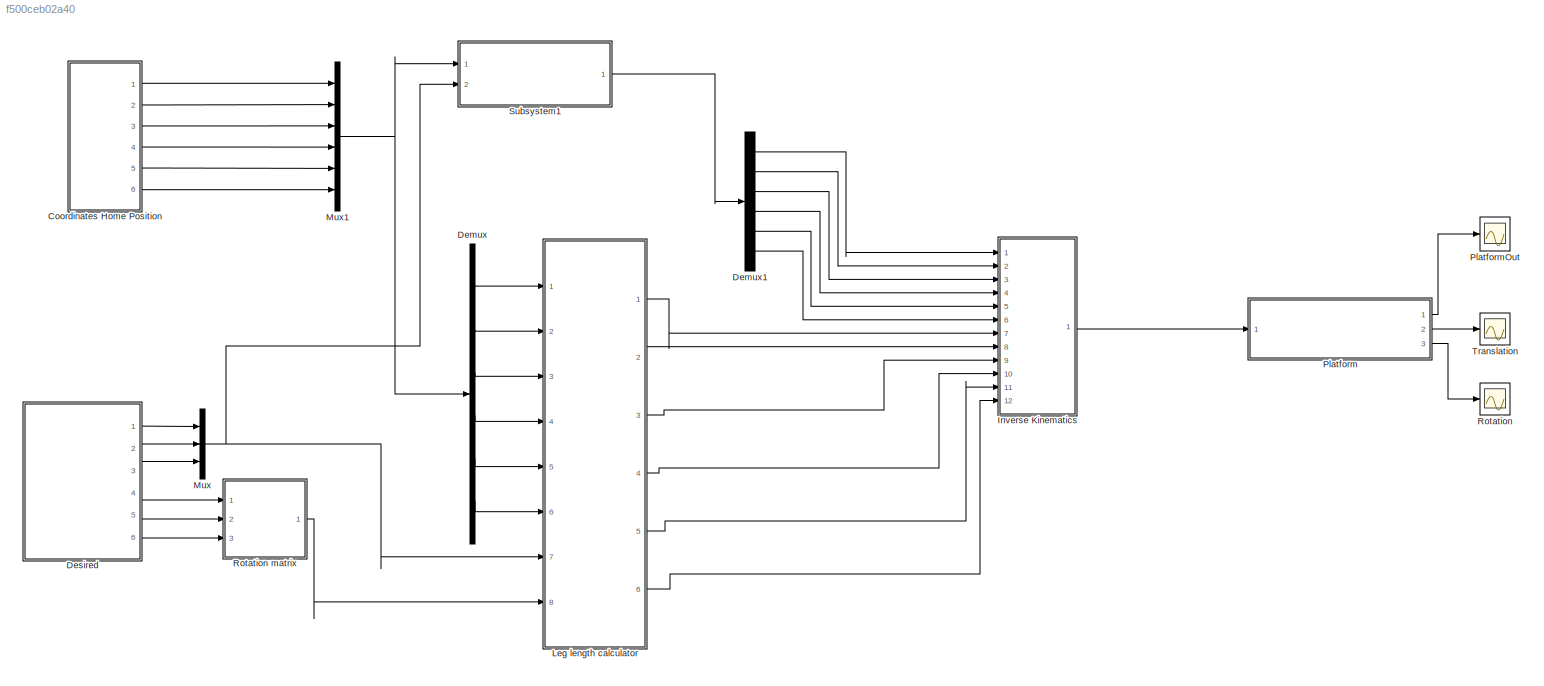
MODEL slx_f500ceb02a40
KIND model
CONFIG AbsTol = auto
CONFIG EnableMultiTasking = off
CONFIG FixedStep = auto
CONFIG MaxStep = auto
CONFIG MinStep = auto
CONFIG RelTol = 1e-3
CONFIG SampleTimeConstraint = Unconstrained
CONFIG Solver = VariableStepAuto
CONFIG SolverName = VariableStepAuto
CONFIG StartTime = 0.0
CONFIG StopTime = 35
WORKSPACE source: external: MATLAB File  (data not in archive)
BLOCK [SubSystem] Coordinates Home Position
  Ports = [0, 6]
  RequestExecContextInheritance = off
  TreatAsAtomicUnit = on
BLOCK [Constant] Coordinates Home Position/Bi x
  Value = [-547.674 -309.863 309.863  547.674  237.810 -237.810]
BLOCK [Constant] Coordinates Home Position/Bi y
  Value = [41.599 453.500  453.500  41.599  -495.099 -495.099]
BLOCK [Constant] Coordinates Home Position/Bi z
  Value = [101 101 101 101 101 101]
BLOCK [Demux] Coordinates Home Position/Demux
  Outputs = 6
  Ports = [1, 6]
BLOCK [Demux] Coordinates Home Position/Demux1
  Outputs = 6
  Ports = [1, 6]
BLOCK [Demux] Coordinates Home Position/Demux2
  Outputs = 6
  Ports = [1, 6]
BLOCK [Demux] Coordinates Home Position/Demux3
  Outputs = 6
  Ports = [1, 6]
BLOCK [Demux] Coordinates Home Position/Demux4
  Outputs = 6
  Ports = [1, 6]
BLOCK [Demux] Coordinates Home Position/Demux5
  Outputs = 6
  Ports = [1, 6]
BLOCK [Mux] Coordinates Home Position/Mux
  DisplayOption = bar
  Inputs = 6
  Ports = [6, 1]
BLOCK [Mux] Coordinates Home Position/Mux1
  DisplayOption = bar
  Inputs = 6
  Ports = [6, 1]
BLOCK [Mux] Coordinates Home Position/Mux2
  DisplayOption = bar
  Inputs = 6
  Ports = [6, 1]
BLOCK [Mux] Coordinates Home Position/Mux3
  DisplayOption = bar
  Inputs = 6
  Ports = [6, 1]
BLOCK [Mux] Coordinates Home Position/Mux4
  DisplayOption = bar
  Inputs = 6
  Ports = [6, 1]
BLOCK [Mux] Coordinates Home Position/Mux5
  DisplayOption = bar
  Inputs = 6
  Ports = [6, 1]
BLOCK [Outport] Coordinates Home Position/Out1
BLOCK [Outport] Coordinates Home Position/Out2
  Port = 2
BLOCK [Outport] Coordinates Home Position/Out3
  Port = 3
BLOCK [Outport] Coordinates Home Position/Out4
  Port = 4
BLOCK [Outport] Coordinates Home Position/Out5
  Port = 5
BLOCK [Outport] Coordinates Home Position/Out6
  Port = 6
BLOCK [Constant] Coordinates Home Position/Pi x
  Value = [-455.79   -75   75   455.79   380.79  -380.79]
BLOCK [Constant] Coordinates Home Position/Pi y
  Value = [-176.54  483  483  -176.54  -306.45  -306.45]
BLOCK [Constant] Coordinates Home Position/Pi z
  Value = [580 580 580 580 580 580]
BLOCK [Demux] Demux
  Outputs = 6
  Ports = [1, 6]
BLOCK [Demux] Demux1
  Outputs = 6
  Ports = [1, 6]
BLOCK [SubSystem] Desired
  Ports = [0, 6]
  RequestExecContextInheritance = off
BLOCK [SubSystem] Desired/MAX_IN
  ClipboardFcn = sigbuilder_block('clipboard');
  CloseFcn = sigbuilder_block('close');
  ContinueFcn = sigbuilder_block('continue');
  CopyFcn = sigbuilder_block('copy');
  DeleteFcn = sigbuilder_block('delete');
  LoadFcn = sigbuilder_block('load');
  MaskHideContents = on
  ModelCloseFcn = sigbuilder_block('modelClose');
  NameChangeFcn = sigbuilder_block('namechange');
  OpenFcn = sigbuilder_block('open',[0.75 30.75 718.5 715.5 ]);
  PauseFcn = sigbuilder_block('pause');
  Ports = [0, 6]
  PreSaveFcn = sigbuilder_block('preSave');
  RequestExecContextInheritance = off
  StartFcn = sigbuilder_block('start');
  StopFcn = sigbuilder_block('stop');
  Tag = STV Subsys
BLOCK [Demux] Desired/MAX_IN/Demux
  DisplayOption = none
  Outputs = 6
  Ports = [1, 6]
  Tag = STV Demux
BLOCK [FromWorkspace] Desired/MAX_IN/FromWs
  Tag = STV FromWs
  VariableName = tuvar
BLOCK [Outport] Desired/MAX_IN/Signal Pitch
  Port = 5
  Tag = STV Outport
BLOCK [Outport] Desired/MAX_IN/Signal Roll
  Port = 6
  Tag = STV Outport
BLOCK [Outport] Desired/MAX_IN/Signal X
  Tag = STV Outport
BLOCK [Outport] Desired/MAX_IN/Signal Y
  Port = 2
  Tag = STV Outport
BLOCK [Outport] Desired/MAX_IN/Signal Yaw
  Port = 4
  Tag = STV Outport
BLOCK [Outport] Desired/MAX_IN/Signal Z
  Port = 3
  Tag = STV Outport
BLOCK [Outport] Desired/Pitch(y axis rotation)
  Port = 5
BLOCK [Outport] Desired/Roll (x axis rotation)
  Port = 6
BLOCK [Outport] Desired/X
BLOCK [Outport] Desired/Y
  Port = 2
BLOCK [Outport] Desired/Yaw(z axis rotation)
  Port = 4
BLOCK [Outport] Desired/Z
  Port = 3
BLOCK [SubSystem] Inverse Kinematics
  Ports = [12, 1]
  RequestExecContextInheritance = off
BLOCK [Constant] Inverse Kinematics/Constant2
  Value = [0 -90 90 0 -180 180]
BLOCK [Inport] Inverse Kinematics/Coordinates1
BLOCK [Inport] Inverse Kinematics/Coordinates2
  Port = 2
BLOCK [Inport] Inverse Kinematics/Coordinates3
  Port = 3
BLOCK [Inport] Inverse Kinematics/Coordinates4
  Port = 4
BLOCK [Inport] Inverse Kinematics/Coordinates5
  Port = 5
BLOCK [Inport] Inverse Kinematics/Coordinates6
  Port = 6
BLOCK [Reference] Inverse Kinematics/Degrees to Radians1  REF=simulink_extras/Transformations/Degrees to
Radians
  NameLocation = right
  Ports = [1, 1]
  SourceBlock = simulink_extras/Transformations/Degrees to\nRadians
  SourceProductBaseCode = SL
  SourceType = DegreesToRadians
BLOCK [Outport] Inverse Kinematics/Delta
BLOCK [SubSystem] Inverse Kinematics/Delta calculus 1
  Ports = [3, 1]
  RequestExecContextInheritance = off
BLOCK [Trigonometry] Inverse Kinematics/Delta calculus 1/Asin5
  Operator = asin
  Ports = [1, 1]
BLOCK [Trigonometry] Inverse Kinematics/Delta calculus 1/Atan6
  Operator = atan
  Ports = [1, 1]
BLOCK [Outport] Inverse Kinematics/Delta calculus 1/Delta
BLOCK [Product] Inverse Kinematics/Delta calculus 1/Divide10
  Inputs = */
  Ports = [2, 1]
BLOCK [Product] Inverse Kinematics/Delta calculus 1/Divide11
  Inputs = */
  Ports = [2, 1]
BLOCK [Math] Inverse Kinematics/Delta calculus 1/Math Function11
  Operator = magnitude^2
  Ports = [1, 1]
BLOCK [Math] Inverse Kinematics/Delta calculus 1/Math Function12
  Operator = magnitude^2
  Ports = [1, 1]
BLOCK [Sqrt] Inverse Kinematics/Delta calculus 1/Square Root5
BLOCK [Sum] Inverse Kinematics/Delta calculus 1/Sum11
  Inputs = ++|
  Ports = [2, 1]
BLOCK [Sum] Inverse Kinematics/Delta calculus 1/Sum12
  Inputs = |+-
  Ports = [2, 1]
BLOCK [Inport] Inverse Kinematics/Delta calculus 1/a
BLOCK [Inport] Inverse Kinematics/Delta calculus 1/b
  Port = 3
BLOCK [Inport] Inverse Kinematics/Delta calculus 1/c
  Port = 2
BLOCK [SubSystem] Inverse Kinematics/Delta calculus 2
  Ports = [3, 1]
  RequestExecContextInheritance = off
BLOCK [Trigonometry] Inverse Kinematics/Delta calculus 2/Asin5
  Operator = asin
  OutputSignalType = real
  Ports = [1, 1]
BLOCK [Trigonometry] Inverse Kinematics/Delta calculus 2/Atan6
  Operator = atan
  Ports = [1, 1]
BLOCK [Outport] Inverse Kinematics/Delta calculus 2/Delta
BLOCK [Display] Inverse Kinematics/Delta calculus 2/Display11
  Decimation = 1
  Ports = [1]
BLOCK [Product] Inverse Kinematics/Delta calculus 2/Divide10
  Inputs = */
  Ports = [2, 1]
BLOCK [Product] Inverse Kinematics/Delta calculus 2/Divide11
  Inputs = */
  Ports = [2, 1]
BLOCK [Math] Inverse Kinematics/Delta calculus 2/Math Function11
  Operator = magnitude^2
  Ports = [1, 1]
BLOCK [Math] Inverse Kinematics/Delta calculus 2/Math Function12
  Operator = magnitude^2
  Ports = [1, 1]
BLOCK [Sqrt] Inverse Kinematics/Delta calculus 2/Square Root5
BLOCK [Sum] Inverse Kinematics/Delta calculus 2/Sum11
  Inputs = ++|
  Ports = [2, 1]
BLOCK [Sum] Inverse Kinematics/Delta calculus 2/Sum12
  Inputs = |+-
  Ports = [2, 1]
BLOCK [Inport] Inverse Kinematics/Delta calculus 2/a
BLOCK [Inport] Inverse Kinematics/Delta calculus 2/b
  Port = 3
BLOCK [Inport] Inverse Kinematics/Delta calculus 2/c
  Port = 2
BLOCK [SubSystem] Inverse Kinematics/Delta calculus 3
  Ports = [3, 1]
  RequestExecContextInheritance = off
BLOCK [Trigonometry] Inverse Kinematics/Delta calculus 3/Asin5
  Operator = asin
  OutputSignalType = real
  Ports = [1, 1]
BLOCK [Trigonometry] Inverse Kinematics/Delta calculus 3/Atan6
  Operator = atan
  Ports = [1, 1]
BLOCK [Outport] Inverse Kinematics/Delta calculus 3/Delta
BLOCK [Product] Inverse Kinematics/Delta calculus 3/Divide10
  Inputs = */
  Ports = [2, 1]
BLOCK [Product] Inverse Kinematics/Delta calculus 3/Divide11
  Inputs = */
  Ports = [2, 1]
BLOCK [Math] Inverse Kinematics/Delta calculus 3/Math Function11
  Operator = magnitude^2
  Ports = [1, 1]
BLOCK [Math] Inverse Kinematics/Delta calculus 3/Math Function12
  Operator = magnitude^2
  Ports = [1, 1]
BLOCK [Sqrt] Inverse Kinematics/Delta calculus 3/Square Root5
BLOCK [Sum] Inverse Kinematics/Delta calculus 3/Sum11
  Inputs = ++|
  Ports = [2, 1]
BLOCK [Sum] Inverse Kinematics/Delta calculus 3/Sum12
  Inputs = |+-
  Ports = [2, 1]
BLOCK [Inport] Inverse Kinematics/Delta calculus 3/a
BLOCK [Inport] Inverse Kinematics/Delta calculus 3/b
  Port = 3
BLOCK [Inport] Inverse Kinematics/Delta calculus 3/c
  Port = 2
BLOCK [SubSystem] Inverse Kinematics/Delta calculus 4
  Ports = [3, 1]
  RequestExecContextInheritance = off
BLOCK [Trigonometry] Inverse Kinematics/Delta calculus 4/Asin5
  Operator = asin
  OutputSignalType = real
  Ports = [1, 1]
BLOCK [Trigonometry] Inverse Kinematics/Delta calculus 4/Atan6
  Operator = atan
  Ports = [1, 1]
BLOCK [Outport] Inverse Kinematics/Delta calculus 4/Delta
BLOCK [Product] Inverse Kinematics/Delta calculus 4/Divide10
  Inputs = */
  Ports = [2, 1]
BLOCK [Product] Inverse Kinematics/Delta calculus 4/Divide11
  Inputs = */
  Ports = [2, 1]
BLOCK [Math] Inverse Kinematics/Delta calculus 4/Math Function11
  Operator = magnitude^2
  Ports = [1, 1]
BLOCK [Math] Inverse Kinematics/Delta calculus 4/Math Function12
  Operator = magnitude^2
  Ports = [1, 1]
BLOCK [Sqrt] Inverse Kinematics/Delta calculus 4/Square Root5
BLOCK [Sum] Inverse Kinematics/Delta calculus 4/Sum11
  Inputs = ++|
  Ports = [2, 1]
BLOCK [Sum] Inverse Kinematics/Delta calculus 4/Sum12
  Inputs = |+-
  Ports = [2, 1]
BLOCK [Inport] Inverse Kinematics/Delta calculus 4/a
BLOCK [Inport] Inverse Kinematics/Delta calculus 4/b
  Port = 3
BLOCK [Inport] Inverse Kinematics/Delta calculus 4/c
  Port = 2
BLOCK [SubSystem] Inverse Kinematics/Delta calculus 5
  Ports = [3, 1]
  RequestExecContextInheritance = off
BLOCK [Trigonometry] Inverse Kinematics/Delta calculus 5/Asin5
  Operator = asin
  OutputSignalType = real
  Ports = [1, 1]
BLOCK [Trigonometry] Inverse Kinematics/Delta calculus 5/Atan6
  Operator = atan
  Ports = [1, 1]
BLOCK [Outport] Inverse Kinematics/Delta calculus 5/Delta
BLOCK [Product] Inverse Kinematics/Delta calculus 5/Divide10
  Inputs = */
  Ports = [2, 1]
BLOCK [Product] Inverse Kinematics/Delta calculus 5/Divide11
  Inputs = */
  Ports = [2, 1]
BLOCK [Math] Inverse Kinematics/Delta calculus 5/Math Function11
  Operator = magnitude^2
  Ports = [1, 1]
BLOCK [Math] Inverse Kinematics/Delta calculus 5/Math Function12
  Operator = magnitude^2
  Ports = [1, 1]
BLOCK [Sqrt] Inverse Kinematics/Delta calculus 5/Square Root5
BLOCK [Sum] Inverse Kinematics/Delta calculus 5/Sum11
  Inputs = ++|
  Ports = [2, 1]
BLOCK [Sum] Inverse Kinematics/Delta calculus 5/Sum12
  Inputs = |+-
  Ports = [2, 1]
BLOCK [Inport] Inverse Kinematics/Delta calculus 5/a
BLOCK [Inport] Inverse Kinematics/Delta calculus 5/b
  Port = 3
BLOCK [Inport] Inverse Kinematics/Delta calculus 5/c
  Port = 2
BLOCK [SubSystem] Inverse Kinematics/Delta calculus 6
  Ports = [3, 1]
  RequestExecContextInheritance = off
BLOCK [Trigonometry] Inverse Kinematics/Delta calculus 6/Asin5
  Operator = asin
  OutputSignalType = real
  Ports = [1, 1]
BLOCK [Trigonometry] Inverse Kinematics/Delta calculus 6/Atan6
  Operator = atan
  Ports = [1, 1]
BLOCK [Outport] Inverse Kinematics/Delta calculus 6/Delta
BLOCK [Product] Inverse Kinematics/Delta calculus 6/Divide10
  Inputs = */
  Ports = [2, 1]
BLOCK [Product] Inverse Kinematics/Delta calculus 6/Divide11
  Inputs = */
  Ports = [2, 1]
BLOCK [Math] Inverse Kinematics/Delta calculus 6/Math Function11
  Operator = magnitude^2
  Ports = [1, 1]
BLOCK [Math] Inverse Kinematics/Delta calculus 6/Math Function12
  Operator = magnitude^2
  Ports = [1, 1]
BLOCK [Sqrt] Inverse Kinematics/Delta calculus 6/Square Root5
BLOCK [Sum] Inverse Kinematics/Delta calculus 6/Sum11
  Inputs = ++|
  Ports = [2, 1]
BLOCK [Sum] Inverse Kinematics/Delta calculus 6/Sum12
  Inputs = |+-
  Ports = [2, 1]
BLOCK [Inport] Inverse Kinematics/Delta calculus 6/a
BLOCK [Inport] Inverse Kinematics/Delta calculus 6/b
  Port = 3
BLOCK [Inport] Inverse Kinematics/Delta calculus 6/c
  Port = 2
BLOCK [Mux] Inverse Kinematics/Mux
  DisplayOption = bar
  Inputs = 6
  Ports = [6, 1]
BLOCK [Sum] Inverse Kinematics/Sum
  Inputs = |++
  Ports = [2, 1]
BLOCK [SubSystem] Inverse Kinematics/a, b, c calculus 1
  Ports = [2, 3]
  RequestExecContextInheritance = off
BLOCK [Inport] Inverse Kinematics/a, b, c calculus 1/Coordinates
BLOCK [Trigonometry] Inverse Kinematics/a, b, c calculus 1/Cos
  Ports = [1, 1]
BLOCK [Constant] Inverse Kinematics/a, b, c calculus 1/D
  Value = 500
BLOCK [Demux] Inverse Kinematics/a, b, c calculus 1/Demux
  Outputs = 6
  Ports = [1, 6]
BLOCK [Gain] Inverse Kinematics/a, b, c calculus 1/Gain
  Gain = -1
BLOCK [Math] Inverse Kinematics/a, b, c calculus 1/Math Function3
  Operator = magnitude^2
  Ports = [1, 1]
BLOCK [Math] Inverse Kinematics/a, b, c calculus 1/Math Function4
  Operator = magnitude^2
  Ports = [1, 1]
BLOCK [Math] Inverse Kinematics/a, b, c calculus 1/Math Function5
  Operator = magnitude^2
  Ports = [1, 1]
BLOCK [Product] Inverse Kinematics/a, b, c calculus 1/Product
  Inputs = 3
  Ports = [3, 1]
BLOCK [Product] Inverse Kinematics/a, b, c calculus 1/Product1
  Ports = [2, 1]
BLOCK [Product] Inverse Kinematics/a, b, c calculus 1/Product2
  Ports = [2, 1]
BLOCK [Product] Inverse Kinematics/a, b, c calculus 1/Product3
  Inputs = 3
  Ports = [3, 1]
BLOCK [Constant] Inverse Kinematics/a, b, c calculus 1/Rm
  Value = 100
BLOCK [Trigonometry] Inverse Kinematics/a, b, c calculus 1/Sin
  Operator = cos
  Ports = [1, 1]
BLOCK [Sum] Inverse Kinematics/a, b, c calculus 1/Sum1
  Inputs = |+-
  Ports = [2, 1]
BLOCK [Sum] Inverse Kinematics/a, b, c calculus 1/Sum2
  Inputs = |+-
  Ports = [2, 1]
BLOCK [Sum] Inverse Kinematics/a, b, c calculus 1/Sum3
  Inputs = |+-
  Ports = [2, 1]
BLOCK [Sum] Inverse Kinematics/a, b, c calculus 1/Sum5
  Inputs = |+-+
  Ports = [3, 1]
BLOCK [Sum] Inverse Kinematics/a, b, c calculus 1/Sum6
  Inputs = |-+
  Ports = [2, 1]
BLOCK [Outport] Inverse Kinematics/a, b, c calculus 1/a
  NameLocation = right
BLOCK [Outport] Inverse Kinematics/a, b, c calculus 1/b
  Port = 3
BLOCK [Outport] Inverse Kinematics/a, b, c calculus 1/c
  NameLocation = right
  Port = 2
BLOCK [Constant] Inverse Kinematics/a, b, c calculus 1/const
  Value = 2
BLOCK [Constant] Inverse Kinematics/a, b, c calculus 1/const6
  Value = 2
BLOCK [Inport] Inverse Kinematics/a, b, c calculus 1/l1
  Port = 2
BLOCK [Constant] Inverse Kinematics/a, b, c calculus 1/unghiGamma1
  Value = 3.0658
BLOCK [SubSystem] Inverse Kinematics/a, b, c calculus 2
  Ports = [2, 3]
  RequestExecContextInheritance = off
BLOCK [Inport] Inverse Kinematics/a, b, c calculus 2/Coordinates
BLOCK [Trigonometry] Inverse Kinematics/a, b, c calculus 2/Cos
  Ports = [1, 1]
BLOCK [Constant] Inverse Kinematics/a, b, c calculus 2/D
  Value = 500
BLOCK [Demux] Inverse Kinematics/a, b, c calculus 2/Demux
  Outputs = 6
  Ports = [1, 6]
BLOCK [Math] Inverse Kinematics/a, b, c calculus 2/Math Function3
  Operator = magnitude^2
  Ports = [1, 1]
BLOCK [Math] Inverse Kinematics/a, b, c calculus 2/Math Function4
  Operator = magnitude^2
  Ports = [1, 1]
BLOCK [Math] Inverse Kinematics/a, b, c calculus 2/Math Function5
  Operator = magnitude^2
  Ports = [1, 1]
BLOCK [Product] Inverse Kinematics/a, b, c calculus 2/Product
  Inputs = 3
  Ports = [3, 1]
BLOCK [Product] Inverse Kinematics/a, b, c calculus 2/Product1
  Ports = [2, 1]
BLOCK [Product] Inverse Kinematics/a, b, c calculus 2/Product2
  Ports = [2, 1]
BLOCK [Product] Inverse Kinematics/a, b, c calculus 2/Product3
  Inputs = 3
  Ports = [3, 1]
BLOCK [Constant] Inverse Kinematics/a, b, c calculus 2/Rm
  Value = 100
BLOCK [Trigonometry] Inverse Kinematics/a, b, c calculus 2/Sin
  Operator = cos
  Ports = [1, 1]
BLOCK [Sum] Inverse Kinematics/a, b, c calculus 2/Sum1
  Inputs = |+-
  Ports = [2, 1]
BLOCK [Sum] Inverse Kinematics/a, b, c calculus 2/Sum2
  Inputs = |+-
  Ports = [2, 1]
BLOCK [Sum] Inverse Kinematics/a, b, c calculus 2/Sum3
  Inputs = |+-
  Ports = [2, 1]
BLOCK [Sum] Inverse Kinematics/a, b, c calculus 2/Sum5
  Inputs = |+-+
  Ports = [3, 1]
BLOCK [Sum] Inverse Kinematics/a, b, c calculus 2/Sum6
  Inputs = |-+
  Ports = [2, 1]
BLOCK [Outport] Inverse Kinematics/a, b, c calculus 2/a
  NameLocation = right
BLOCK [Outport] Inverse Kinematics/a, b, c calculus 2/b
  Port = 3
BLOCK [Outport] Inverse Kinematics/a, b, c calculus 2/c
  NameLocation = right
  Port = 2
BLOCK [Constant] Inverse Kinematics/a, b, c calculus 2/const
  Value = 2
BLOCK [Constant] Inverse Kinematics/a, b, c calculus 2/const6
  Value = 2
BLOCK [Inport] Inverse Kinematics/a, b, c calculus 2/l2
  Port = 2
BLOCK [Constant] Inverse Kinematics/a, b, c calculus 2/unghiGamma1
  Value = 2.1702
BLOCK [SubSystem] Inverse Kinematics/a, b, c calculus 3
  Ports = [2, 3]
  RequestExecContextInheritance = off
BLOCK [Inport] Inverse Kinematics/a, b, c calculus 3/Coordinates
BLOCK [Trigonometry] Inverse Kinematics/a, b, c calculus 3/Cos
  Ports = [1, 1]
BLOCK [Constant] Inverse Kinematics/a, b, c calculus 3/D
  Value = 500
BLOCK [Demux] Inverse Kinematics/a, b, c calculus 3/Demux
  Outputs = 6
  Ports = [1, 6]
BLOCK [Display] Inverse Kinematics/a, b, c calculus 3/Display
  Decimation = 1
  Ports = [1]
BLOCK [Display] Inverse Kinematics/a, b, c calculus 3/Display1
  Decimation = 1
  Ports = [1]
BLOCK [Display] Inverse Kinematics/a, b, c calculus 3/Display2
  Decimation = 1
  Ports = [1]
BLOCK [Gain] Inverse Kinematics/a, b, c calculus 3/Gain
  Gain = -1
BLOCK [Math] Inverse Kinematics/a, b, c calculus 3/Math Function3
  Operator = magnitude^2
  Ports = [1, 1]
BLOCK [Math] Inverse Kinematics/a, b, c calculus 3/Math Function4
  Operator = magnitude^2
  Ports = [1, 1]
BLOCK [Math] Inverse Kinematics/a, b, c calculus 3/Math Function5
  Operator = magnitude^2
  Ports = [1, 1]
BLOCK [Product] Inverse Kinematics/a, b, c calculus 3/Product
  Inputs = 3
  Ports = [3, 1]
BLOCK [Product] Inverse Kinematics/a, b, c calculus 3/Product1
  Ports = [2, 1]
BLOCK [Product] Inverse Kinematics/a, b, c calculus 3/Product2
  Ports = [2, 1]
BLOCK [Product] Inverse Kinematics/a, b, c calculus 3/Product3
  Inputs = 3
  Ports = [3, 1]
BLOCK [Constant] Inverse Kinematics/a, b, c calculus 3/Rm
  Value = 100
BLOCK [Trigonometry] Inverse Kinematics/a, b, c calculus 3/Sin
  Operator = cos
  Ports = [1, 1]
BLOCK [Sum] Inverse Kinematics/a, b, c calculus 3/Sum1
  Inputs = |+-
  Ports = [2, 1]
BLOCK [Sum] Inverse Kinematics/a, b, c calculus 3/Sum2
  Inputs = |+-
  Ports = [2, 1]
BLOCK [Sum] Inverse Kinematics/a, b, c calculus 3/Sum3
  Inputs = |+-
  Ports = [2, 1]
BLOCK [Sum] Inverse Kinematics/a, b, c calculus 3/Sum5
  Inputs = |+-+
  Ports = [3, 1]
BLOCK [Sum] Inverse Kinematics/a, b, c calculus 3/Sum6
  Inputs = |-+
  Ports = [2, 1]
BLOCK [Outport] Inverse Kinematics/a, b, c calculus 3/a
  NameLocation = right
BLOCK [Outport] Inverse Kinematics/a, b, c calculus 3/b
  Port = 3
BLOCK [Outport] Inverse Kinematics/a, b, c calculus 3/c
  NameLocation = right
  Port = 2
BLOCK [Constant] Inverse Kinematics/a, b, c calculus 3/const
  Value = 2
BLOCK [Constant] Inverse Kinematics/a, b, c calculus 3/const6
  Value = 2
BLOCK [Inport] Inverse Kinematics/a, b, c calculus 3/l3
  Port = 2
BLOCK [Constant] Inverse Kinematics/a, b, c calculus 3/unghiGamma1
  Value = 0.9714
BLOCK [SubSystem] Inverse Kinematics/a, b, c calculus 4
  Ports = [2, 3]
  RequestExecContextInheritance = off
BLOCK [Inport] Inverse Kinematics/a, b, c calculus 4/Coordinates
BLOCK [Trigonometry] Inverse Kinematics/a, b, c calculus 4/Cos
  Ports = [1, 1]
BLOCK [Constant] Inverse Kinematics/a, b, c calculus 4/D
  Value = 500
BLOCK [Demux] Inverse Kinematics/a, b, c calculus 4/Demux
  Outputs = 6
  Ports = [1, 6]
BLOCK [Display] Inverse Kinematics/a, b, c calculus 4/Display
  Decimation = 1
  Ports = [1]
BLOCK [Display] Inverse Kinematics/a, b, c calculus 4/Display2
  Decimation = 1
  Ports = [1]
BLOCK [Display] Inverse Kinematics/a, b, c calculus 4/Display3
  Decimation = 1
  Ports = [1]
BLOCK [Display] Inverse Kinematics/a, b, c calculus 4/Display4
  Decimation = 1
  Ports = [1]
BLOCK [Display] Inverse Kinematics/a, b, c calculus 4/Display5
  Decimation = 1
  Ports = [1]
BLOCK [Math] Inverse Kinematics/a, b, c calculus 4/Math Function3
  Operator = magnitude^2
  Ports = [1, 1]
BLOCK [Math] Inverse Kinematics/a, b, c calculus 4/Math Function4
  Operator = magnitude^2
  Ports = [1, 1]
BLOCK [Math] Inverse Kinematics/a, b, c calculus 4/Math Function5
  Operator = magnitude^2
  Ports = [1, 1]
BLOCK [Product] Inverse Kinematics/a, b, c calculus 4/Product
  Inputs = 3
  Ports = [3, 1]
BLOCK [Product] Inverse Kinematics/a, b, c calculus 4/Product1
  Ports = [2, 1]
BLOCK [Product] Inverse Kinematics/a, b, c calculus 4/Product2
  Ports = [2, 1]
BLOCK [Product] Inverse Kinematics/a, b, c calculus 4/Product3
  Inputs = 3
  Ports = [3, 1]
BLOCK [Constant] Inverse Kinematics/a, b, c calculus 4/Rm
  Value = 100
BLOCK [Trigonometry] Inverse Kinematics/a, b, c calculus 4/Sin
  Operator = cos
  Ports = [1, 1]
BLOCK [Sum] Inverse Kinematics/a, b, c calculus 4/Sum1
  Inputs = |+-
  Ports = [2, 1]
BLOCK [Sum] Inverse Kinematics/a, b, c calculus 4/Sum2
  Inputs = |+-
  Ports = [2, 1]
BLOCK [Sum] Inverse Kinematics/a, b, c calculus 4/Sum3
  Inputs = |+-
  Ports = [2, 1]
BLOCK [Sum] Inverse Kinematics/a, b, c calculus 4/Sum5
  Inputs = |+-+
  Ports = [3, 1]
BLOCK [Sum] Inverse Kinematics/a, b, c calculus 4/Sum6
  Inputs = |-+
  Ports = [2, 1]
BLOCK [Outport] Inverse Kinematics/a, b, c calculus 4/a
  NameLocation = right
BLOCK [Outport] Inverse Kinematics/a, b, c calculus 4/b
  Port = 3
BLOCK [Outport] Inverse Kinematics/a, b, c calculus 4/c
  NameLocation = right
  Port = 2
BLOCK [Constant] Inverse Kinematics/a, b, c calculus 4/const
  Value = 2
BLOCK [Constant] Inverse Kinematics/a, b, c calculus 4/const6
  Value = 2
BLOCK [Inport] Inverse Kinematics/a, b, c calculus 4/l4
  Port = 2
BLOCK [Constant] Inverse Kinematics/a, b, c calculus 4/unghiGamma1
  Value = 0.0758
BLOCK [SubSystem] Inverse Kinematics/a, b, c calculus 5
  Ports = [2, 3]
  RequestExecContextInheritance = off
BLOCK [Inport] Inverse Kinematics/a, b, c calculus 5/Coordinates
  Port = 2
BLOCK [Trigonometry] Inverse Kinematics/a, b, c calculus 5/Cos1
  Ports = [1, 1]
BLOCK [Constant] Inverse Kinematics/a, b, c calculus 5/D1
  Value = 500
BLOCK [Demux] Inverse Kinematics/a, b, c calculus 5/Demux1
  Outputs = 6
  Ports = [1, 6]
BLOCK [Display] Inverse Kinematics/a, b, c calculus 5/Display1
  Decimation = 1
  Ports = [1]
BLOCK [Display] Inverse Kinematics/a, b, c calculus 5/Display2
  Decimation = 1
  Ports = [1]
BLOCK [Display] Inverse Kinematics/a, b, c calculus 5/Display3
  Decimation = 1
  Ports = [1]
BLOCK [Gain] Inverse Kinematics/a, b, c calculus 5/Gain
  Gain = -1
BLOCK [Math] Inverse Kinematics/a, b, c calculus 5/Math Function1
  Operator = magnitude^2
  Ports = [1, 1]
BLOCK [Math] Inverse Kinematics/a, b, c calculus 5/Math Function2
  Operator = magnitude^2
  Ports = [1, 1]
BLOCK [Math] Inverse Kinematics/a, b, c calculus 5/Math Function6
  Operator = magnitude^2
  Ports = [1, 1]
BLOCK [Product] Inverse Kinematics/a, b, c calculus 5/Product4
  Inputs = 3
  Ports = [3, 1]
BLOCK [Product] Inverse Kinematics/a, b, c calculus 5/Product5
  Ports = [2, 1]
BLOCK [Product] Inverse Kinematics/a, b, c calculus 5/Product6
  Ports = [2, 1]
BLOCK [Product] Inverse Kinematics/a, b, c calculus 5/Product7
  Inputs = 3
  Ports = [3, 1]
BLOCK [Constant] Inverse Kinematics/a, b, c calculus 5/Rm1
  Value = 100
BLOCK [Trigonometry] Inverse Kinematics/a, b, c calculus 5/Sin1
  Operator = cos
  Ports = [1, 1]
BLOCK [Sum] Inverse Kinematics/a, b, c calculus 5/Sum10
  Inputs = |-+
  Ports = [2, 1]
BLOCK [Sum] Inverse Kinematics/a, b, c calculus 5/Sum4
  Inputs = |+-
  Ports = [2, 1]
BLOCK [Sum] Inverse Kinematics/a, b, c calculus 5/Sum7
  Inputs = |+-
  Ports = [2, 1]
BLOCK [Sum] Inverse Kinematics/a, b, c calculus 5/Sum8
  Inputs = |+-
  Ports = [2, 1]
BLOCK [Sum] Inverse Kinematics/a, b, c calculus 5/Sum9
  Inputs = |+-+
  Ports = [3, 1]
BLOCK [Outport] Inverse Kinematics/a, b, c calculus 5/a
  NameLocation = right
BLOCK [Outport] Inverse Kinematics/a, b, c calculus 5/b
  Port = 3
BLOCK [Outport] Inverse Kinematics/a, b, c calculus 5/c
  NameLocation = right
  Port = 2
BLOCK [Constant] Inverse Kinematics/a, b, c calculus 5/const1
  Value = 2
BLOCK [Constant] Inverse Kinematics/a, b, c calculus 5/const2
  Value = 2
BLOCK [Inport] Inverse Kinematics/a, b, c calculus 5/l5
BLOCK [Constant] Inverse Kinematics/a, b, c calculus 5/unghiGamma1
  Value = 5.1602
BLOCK [SubSystem] Inverse Kinematics/a, b, c calculus 6
  Ports = [2, 3]
  RequestExecContextInheritance = off
BLOCK [Inport] Inverse Kinematics/a, b, c calculus 6/Coordinates
BLOCK [Trigonometry] Inverse Kinematics/a, b, c calculus 6/Cos
  Ports = [1, 1]
BLOCK [Constant] Inverse Kinematics/a, b, c calculus 6/D
  Value = 500
BLOCK [Demux] Inverse Kinematics/a, b, c calculus 6/Demux
  Outputs = 6
  Ports = [1, 6]
BLOCK [Math] Inverse Kinematics/a, b, c calculus 6/Math Function3
  Operator = magnitude^2
  Ports = [1, 1]
BLOCK [Math] Inverse Kinematics/a, b, c calculus 6/Math Function4
  Operator = magnitude^2
  Ports = [1, 1]
BLOCK [Math] Inverse Kinematics/a, b, c calculus 6/Math Function5
  Operator = magnitude^2
  Ports = [1, 1]
BLOCK [Product] Inverse Kinematics/a, b, c calculus 6/Product
  Inputs = 3
  Ports = [3, 1]
BLOCK [Product] Inverse Kinematics/a, b, c calculus 6/Product1
  Ports = [2, 1]
BLOCK [Product] Inverse Kinematics/a, b, c calculus 6/Product2
  Ports = [2, 1]
BLOCK [Product] Inverse Kinematics/a, b, c calculus 6/Product3
  Inputs = 3
  Ports = [3, 1]
BLOCK [Constant] Inverse Kinematics/a, b, c calculus 6/Rm
  Value = 100
BLOCK [Trigonometry] Inverse Kinematics/a, b, c calculus 6/Sin
  Operator = cos
  Ports = [1, 1]
BLOCK [Sum] Inverse Kinematics/a, b, c calculus 6/Sum1
  Inputs = |+-
  Ports = [2, 1]
BLOCK [Sum] Inverse Kinematics/a, b, c calculus 6/Sum2
  Inputs = |+-
  Ports = [2, 1]
BLOCK [Sum] Inverse Kinematics/a, b, c calculus 6/Sum3
  Inputs = |+-
  Ports = [2, 1]
BLOCK [Sum] Inverse Kinematics/a, b, c calculus 6/Sum5
  Inputs = |+-+
  Ports = [3, 1]
BLOCK [Sum] Inverse Kinematics/a, b, c calculus 6/Sum6
  Inputs = |-+
  Ports = [2, 1]
BLOCK [Outport] Inverse Kinematics/a, b, c calculus 6/a
  NameLocation = right
BLOCK [Outport] Inverse Kinematics/a, b, c calculus 6/b
  Port = 3
BLOCK [Outport] Inverse Kinematics/a, b, c calculus 6/c
  NameLocation = right
  Port = 2
BLOCK [Constant] Inverse Kinematics/a, b, c calculus 6/const
  Value = 2
BLOCK [Constant] Inverse Kinematics/a, b, c calculus 6/const6
  Value = 2
BLOCK [Inport] Inverse Kinematics/a, b, c calculus 6/l6
  Port = 2
BLOCK [Constant] Inverse Kinematics/a, b, c calculus 6/unghiGamma1
  Value = 4.2646
BLOCK [Inport] Inverse Kinematics/l1
  Port = 7
BLOCK [Inport] Inverse Kinematics/l2
  Port = 8
BLOCK [Inport] Inverse Kinematics/l3
  Port = 9
BLOCK [Inport] Inverse Kinematics/l4
  Port = 10
BLOCK [Inport] Inverse Kinematics/l5
  Port = 11
BLOCK [Inport] Inverse Kinematics/l6
  Port = 12
BLOCK [SubSystem] Leg length calculator
  Ports = [8, 6]
  RequestExecContextInheritance = off
BLOCK [Inport] Leg length calculator/Coordinates(1)
BLOCK [Inport] Leg length calculator/Coordinates(2)
  Port = 2
BLOCK [Inport] Leg length calculator/Coordinates(3)
  Port = 3
BLOCK [Inport] Leg length calculator/Coordinates(4)
  Port = 4
BLOCK [Inport] Leg length calculator/Coordinates(5)
  Port = 5
BLOCK [Inport] Leg length calculator/Coordinates(6)
  Port = 6
BLOCK [Inport] Leg length calculator/Translatie
  Port = 7
BLOCK [Outport] Leg length calculator/l1
BLOCK [SubSystem] Leg length calculator/l1 calc
  Ports = [3, 1]
  RequestExecContextInheritance = off
BLOCK [Inport] Leg length calculator/l1 calc/Coordinates(1)
  Port = 3
BLOCK [Demux] Leg length calculator/l1 calc/Demux
  Outputs = 6
  Ports = [1, 6]
BLOCK [Demux] Leg length calculator/l1 calc/Demux1
  Outputs = 3
  Ports = [1, 3]
BLOCK [Math] Leg length calculator/l1 calc/Math Function11
  Operator = magnitude^2
  Ports = [1, 1]
BLOCK [Math] Leg length calculator/l1 calc/Math Function2
  Operator = magnitude^2
  Ports = [1, 1]
BLOCK [Math] Leg length calculator/l1 calc/Math Function3
  Operator = magnitude^2
  Ports = [1, 1]
BLOCK [Product] Leg length calculator/l1 calc/MatrixMultiply
  Multiplication = Matrix(*)
  Ports = [2, 1]
BLOCK [Mux] Leg length calculator/l1 calc/Mux
  DisplayOption = bar
  Inputs = 3
  Ports = [3, 1]
BLOCK [Mux] Leg length calculator/l1 calc/Mux1
  DisplayOption = bar
  Inputs = 3
  Ports = [3, 1]
BLOCK [Sqrt] Leg length calculator/l1 calc/Sqrt
BLOCK [Sum] Leg length calculator/l1 calc/Sum1
  Inputs = |++-
  Ports = [3, 1]
BLOCK [Sum] Leg length calculator/l1 calc/Sum2
  Inputs = |+++
  Ports = [3, 1]
BLOCK [Inport] Leg length calculator/l1 calc/Translatie
BLOCK [Outport] Leg length calculator/l1 calc/l
BLOCK [Inport] Leg length calculator/l1 calc/pRb
  Port = 2
BLOCK [Outport] Leg length calculator/l2
  Port = 2
BLOCK [SubSystem] Leg length calculator/l2 calc
  Ports = [3, 1]
  RequestExecContextInheritance = off
BLOCK [Inport] Leg length calculator/l2 calc/Coordinates(2)
  Port = 3
BLOCK [Demux] Leg length calculator/l2 calc/Demux
  Outputs = 6
  Ports = [1, 6]
BLOCK [Demux] Leg length calculator/l2 calc/Demux1
  Outputs = 3
  Ports = [1, 3]
BLOCK [Math] Leg length calculator/l2 calc/Math Function11
  Operator = magnitude^2
  Ports = [1, 1]
BLOCK [Math] Leg length calculator/l2 calc/Math Function2
  Operator = magnitude^2
  Ports = [1, 1]
BLOCK [Math] Leg length calculator/l2 calc/Math Function3
  Operator = magnitude^2
  Ports = [1, 1]
BLOCK [Product] Leg length calculator/l2 calc/MatrixMultiply
  Multiplication = Matrix(*)
  Ports = [2, 1]
BLOCK [Mux] Leg length calculator/l2 calc/Mux
  DisplayOption = bar
  Inputs = 3
  Ports = [3, 1]
BLOCK [Mux] Leg length calculator/l2 calc/Mux1
  DisplayOption = bar
  Inputs = 3
  Ports = [3, 1]
BLOCK [Sqrt] Leg length calculator/l2 calc/Sqrt
BLOCK [Sum] Leg length calculator/l2 calc/Sum1
  Inputs = |++-
  Ports = [3, 1]
BLOCK [Sum] Leg length calculator/l2 calc/Sum2
  Inputs = |+++
  Ports = [3, 1]
BLOCK [Inport] Leg length calculator/l2 calc/Translatie
BLOCK [Outport] Leg length calculator/l2 calc/l
BLOCK [Inport] Leg length calculator/l2 calc/pRb
  Port = 2
BLOCK [Outport] Leg length calculator/l3
  Port = 3
BLOCK [SubSystem] Leg length calculator/l3 calc
  Ports = [3, 1]
  RequestExecContextInheritance = off
BLOCK [Inport] Leg length calculator/l3 calc/Coordinates(3)
  Port = 3
BLOCK [Demux] Leg length calculator/l3 calc/Demux
  Outputs = 6
  Ports = [1, 6]
BLOCK [Demux] Leg length calculator/l3 calc/Demux1
  Outputs = 3
  Ports = [1, 3]
BLOCK [Math] Leg length calculator/l3 calc/Math Function11
  Operator = magnitude^2
  Ports = [1, 1]
BLOCK [Math] Leg length calculator/l3 calc/Math Function2
  Operator = magnitude^2
  Ports = [1, 1]
BLOCK [Math] Leg length calculator/l3 calc/Math Function3
  Operator = magnitude^2
  Ports = [1, 1]
BLOCK [Product] Leg length calculator/l3 calc/MatrixMultiply
  Multiplication = Matrix(*)
  Ports = [2, 1]
BLOCK [Mux] Leg length calculator/l3 calc/Mux
  DisplayOption = bar
  Inputs = 3
  Ports = [3, 1]
BLOCK [Mux] Leg length calculator/l3 calc/Mux1
  DisplayOption = bar
  Inputs = 3
  Ports = [3, 1]
BLOCK [Sqrt] Leg length calculator/l3 calc/Sqrt
BLOCK [Sum] Leg length calculator/l3 calc/Sum1
  Inputs = |++-
  Ports = [3, 1]
BLOCK [Sum] Leg length calculator/l3 calc/Sum2
  Inputs = |+++
  Ports = [3, 1]
BLOCK [Inport] Leg length calculator/l3 calc/Translatie
BLOCK [Outport] Leg length calculator/l3 calc/l1
BLOCK [Inport] Leg length calculator/l3 calc/pRb
  Port = 2
BLOCK [Outport] Leg length calculator/l4
  Port = 4
BLOCK [SubSystem] Leg length calculator/l4 calc
  Ports = [3, 1]
  RequestExecContextInheritance = off
BLOCK [Inport] Leg length calculator/l4 calc/Coordinates(4)
  Port = 3
BLOCK [Demux] Leg length calculator/l4 calc/Demux
  Outputs = 6
  Ports = [1, 6]
BLOCK [Demux] Leg length calculator/l4 calc/Demux1
  Outputs = 3
  Ports = [1, 3]
BLOCK [Math] Leg length calculator/l4 calc/Math Function11
  Operator = magnitude^2
  Ports = [1, 1]
BLOCK [Math] Leg length calculator/l4 calc/Math Function2
  Operator = magnitude^2
  Ports = [1, 1]
BLOCK [Math] Leg length calculator/l4 calc/Math Function3
  Operator = magnitude^2
  Ports = [1, 1]
BLOCK [Product] Leg length calculator/l4 calc/MatrixMultiply
  Multiplication = Matrix(*)
  Ports = [2, 1]
BLOCK [Mux] Leg length calculator/l4 calc/Mux
  DisplayOption = bar
  Inputs = 3
  Ports = [3, 1]
BLOCK [Mux] Leg length calculator/l4 calc/Mux1
  DisplayOption = bar
  Inputs = 3
  Ports = [3, 1]
BLOCK [Sqrt] Leg length calculator/l4 calc/Sqrt
BLOCK [Sum] Leg length calculator/l4 calc/Sum1
  Inputs = |++-
  Ports = [3, 1]
BLOCK [Sum] Leg length calculator/l4 calc/Sum2
  Inputs = |+++
  Ports = [3, 1]
BLOCK [Inport] Leg length calculator/l4 calc/Translatie
BLOCK [Outport] Leg length calculator/l4 calc/l
BLOCK [Inport] Leg length calculator/l4 calc/pRb
  Port = 2
BLOCK [Outport] Leg length calculator/l5
  Port = 5
BLOCK [SubSystem] Leg length calculator/l5 calc
  Ports = [3, 1]
  RequestExecContextInheritance = off
BLOCK [Inport] Leg length calculator/l5 calc/Coordinates(5)
  Port = 3
BLOCK [Demux] Leg length calculator/l5 calc/Demux
  Outputs = 6
  Ports = [1, 6]
BLOCK [Demux] Leg length calculator/l5 calc/Demux1
  Outputs = 3
  Ports = [1, 3]
BLOCK [Math] Leg length calculator/l5 calc/Math Function11
  Operator = magnitude^2
  Ports = [1, 1]
BLOCK [Math] Leg length calculator/l5 calc/Math Function2
  Operator = magnitude^2
  Ports = [1, 1]
BLOCK [Math] Leg length calculator/l5 calc/Math Function3
  Operator = magnitude^2
  Ports = [1, 1]
BLOCK [Product] Leg length calculator/l5 calc/MatrixMultiply
  Multiplication = Matrix(*)
  Ports = [2, 1]
BLOCK [Mux] Leg length calculator/l5 calc/Mux
  DisplayOption = bar
  Inputs = 3
  Ports = [3, 1]
BLOCK [Mux] Leg length calculator/l5 calc/Mux1
  DisplayOption = bar
  Inputs = 3
  Ports = [3, 1]
BLOCK [Sqrt] Leg length calculator/l5 calc/Sqrt
BLOCK [Sum] Leg length calculator/l5 calc/Sum1
  Inputs = |++-
  Ports = [3, 1]
BLOCK [Sum] Leg length calculator/l5 calc/Sum2
  Inputs = |+++
  Ports = [3, 1]
BLOCK [Inport] Leg length calculator/l5 calc/Translatie
BLOCK [Outport] Leg length calculator/l5 calc/l
BLOCK [Inport] Leg length calculator/l5 calc/pRb
  Port = 2
BLOCK [Outport] Leg length calculator/l6
  Port = 6
BLOCK [SubSystem] Leg length calculator/l6 calc
  Ports = [3, 1]
  RequestExecContextInheritance = off
BLOCK [Inport] Leg length calculator/l6 calc/Coordinates(6)
  Port = 3
BLOCK [Demux] Leg length calculator/l6 calc/Demux
  Outputs = 6
  Ports = [1, 6]
BLOCK [Demux] Leg length calculator/l6 calc/Demux1
  Outputs = 3
  Ports = [1, 3]
BLOCK [Math] Leg length calculator/l6 calc/Math Function11
  Operator = magnitude^2
  Ports = [1, 1]
BLOCK [Math] Leg length calculator/l6 calc/Math Function2
  Operator = magnitude^2
  Ports = [1, 1]
BLOCK [Math] Leg length calculator/l6 calc/Math Function3
  Operator = magnitude^2
  Ports = [1, 1]
BLOCK [Product] Leg length calculator/l6 calc/MatrixMultiply
  Multiplication = Matrix(*)
  Ports = [2, 1]
BLOCK [Mux] Leg length calculator/l6 calc/Mux
  DisplayOption = bar
  Inputs = 3
  Ports = [3, 1]
BLOCK [Mux] Leg length calculator/l6 calc/Mux1
  DisplayOption = bar
  Inputs = 3
  Ports = [3, 1]
BLOCK [Sqrt] Leg length calculator/l6 calc/Sqrt
BLOCK [Sum] Leg length calculator/l6 calc/Sum1
  Inputs = |++-
  Ports = [3, 1]
BLOCK [Sum] Leg length calculator/l6 calc/Sum2
  Inputs = |+++
  Ports = [3, 1]
BLOCK [Inport] Leg length calculator/l6 calc/Translatie
BLOCK [Outport] Leg length calculator/l6 calc/l
BLOCK [Inport] Leg length calculator/l6 calc/pRb
  Port = 2
BLOCK [Inport] Leg length calculator/pRb
  Port = 8
BLOCK [Mux] Mux
  DisplayOption = bar
  Inputs = 3
  Ports = [3, 1]
BLOCK [Mux] Mux1
  DisplayOption = bar
  Inputs = 6
  Ports = [6, 1]
BLOCK [SubSystem] Platform
  Ports = [1, 3]
  RequestExecContextInheritance = off
BLOCK [Demux] Platform/Demux
  Outputs = 6
  Ports = [1, 6]
BLOCK [Mux] Platform/Mux1
  DisplayOption = bar
  Inputs = 6
  Ports = [6, 1]
BLOCK [Inport] Platform/PositionIN
BLOCK [Outport] Platform/PositionOUT
BLOCK [Outport] Platform/Rotatie z y x
  Port = 3
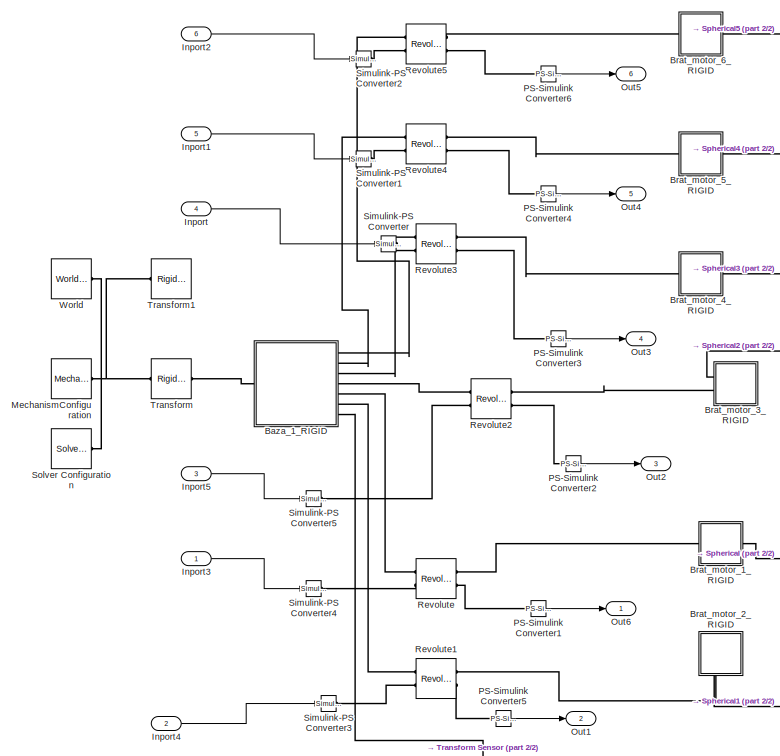
[diagram: Platform/Stewart Platform - part 1/2, middle left region]
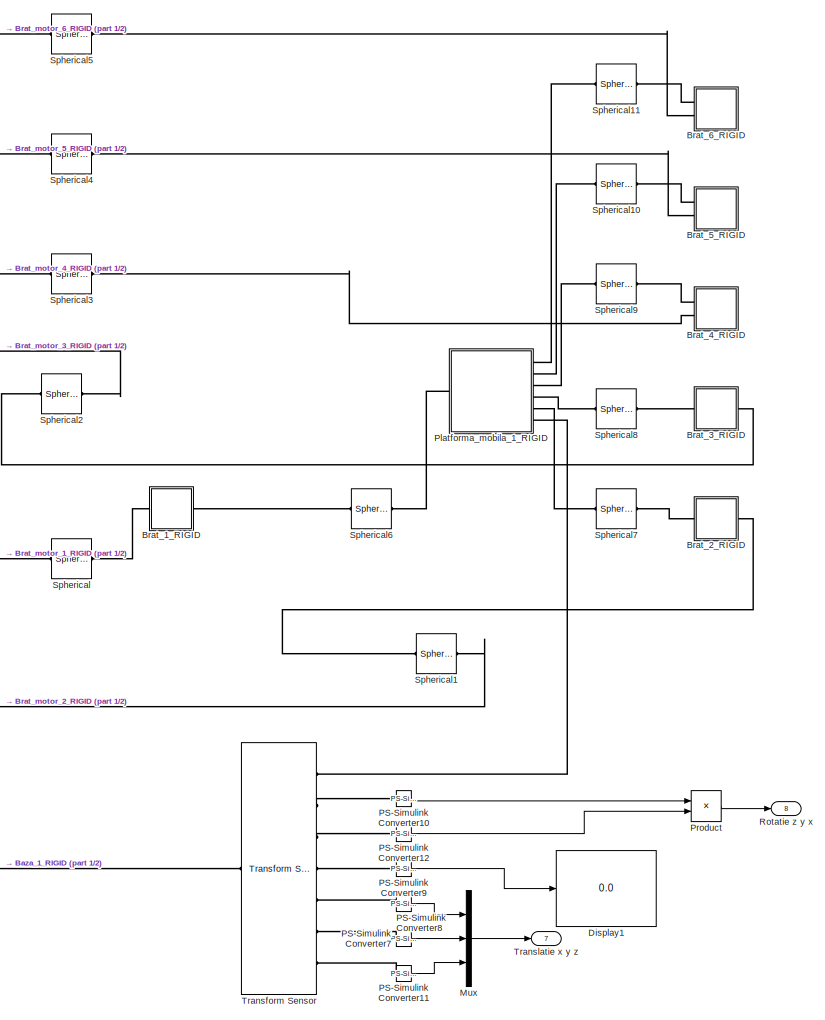
[diagram: Platform/Stewart Platform - part 2/2, right side, full height]
BLOCK [SubSystem] Platform/Stewart Platform
  Ports = [6, 8]
  RequestExecContextInheritance = off
BLOCK [SubSystem] Platform/Stewart Platform/Baza_1_RIGID
  Ports = [0, 0, 0, 0, 0, 1, 7]
  RequestExecContextInheritance = off
BLOCK [PMIOPort] Platform/Stewart Platform/Baza_1_RIGID/F
  Port = 6
  Side = Right
BLOCK [PMIOPort] Platform/Stewart Platform/Baza_1_RIGID/F1
  Port = 7
  Side = Right
BLOCK [PMIOPort] Platform/Stewart Platform/Baza_1_RIGID/F2
  Port = 5
  Side = Right
BLOCK [PMIOPort] Platform/Stewart Platform/Baza_1_RIGID/F3
  Port = 4
  Side = Right
BLOCK [PMIOPort] Platform/Stewart Platform/Baza_1_RIGID/F4
  Port = 3
  Side = Right
BLOCK [PMIOPort] Platform/Stewart Platform/Baza_1_RIGID/F5
  Port = 2
  Side = Right
BLOCK [PMIOPort] Platform/Stewart Platform/Baza_1_RIGID/F6
  Side = Left
BLOCK [Reference] Platform/Stewart Platform/Baza_1_RIGID/ReferenceFrame  REF=sm_lib/Frames and
Transforms/Reference
Frame
  Ports = [0, 0, 0, 0, 0, 0, 1]
  SourceBlock = sm_lib/Frames and\nTransforms/Reference\nFrame
  SourceProductBaseCode = MS
  SourceType = Reference\nFrame
BLOCK [Reference] Platform/Stewart Platform/Baza_1_RIGID/Solid  REF=sm_lib/Body Elements/File Solid
  Ports = [0, 0, 0, 0, 0, 0, 1]
  SourceBlock = sm_lib/Body Elements/File Solid
  SourceProductBaseCode = MS
  SourceType = File Solid
BLOCK [Reference] Platform/Stewart Platform/Baza_1_RIGID/Transform  REF=sm_lib/Frames and
Transforms/Rigid
Transform
  Ports = [0, 0, 0, 0, 0, 1, 1]
  SourceBlock = sm_lib/Frames and\nTransforms/Rigid\nTransform
  SourceProductBaseCode = MS
  SourceType = Rigid\nTransform
BLOCK [Reference] Platform/Stewart Platform/Baza_1_RIGID/Transform1  REF=sm_lib/Frames and
Transforms/Rigid
Transform
  Ports = [0, 0, 0, 0, 0, 1, 1]
  SourceBlock = sm_lib/Frames and\nTransforms/Rigid\nTransform
  SourceProductBaseCode = MS
  SourceType = Rigid\nTransform
BLOCK [Reference] Platform/Stewart Platform/Baza_1_RIGID/Transform2  REF=sm_lib/Frames and
Transforms/Rigid
Transform
  Ports = [0, 0, 0, 0, 0, 1, 1]
  SourceBlock = sm_lib/Frames and\nTransforms/Rigid\nTransform
  SourceProductBaseCode = MS
  SourceType = Rigid\nTransform
BLOCK [Reference] Platform/Stewart Platform/Baza_1_RIGID/Transform3  REF=sm_lib/Frames and
Transforms/Rigid
Transform
  Ports = [0, 0, 0, 0, 0, 1, 1]
  SourceBlock = sm_lib/Frames and\nTransforms/Rigid\nTransform
  SourceProductBaseCode = MS
  SourceType = Rigid\nTransform
BLOCK [Reference] Platform/Stewart Platform/Baza_1_RIGID/Transform4  REF=sm_lib/Frames and
Transforms/Rigid
Transform
  Ports = [0, 0, 0, 0, 0, 1, 1]
  SourceBlock = sm_lib/Frames and\nTransforms/Rigid\nTransform
  SourceProductBaseCode = MS
  SourceType = Rigid\nTransform
BLOCK [Reference] Platform/Stewart Platform/Baza_1_RIGID/Transform5  REF=sm_lib/Frames and
Transforms/Rigid
Transform
  Ports = [0, 0, 0, 0, 0, 1, 1]
  SourceBlock = sm_lib/Frames and\nTransforms/Rigid\nTransform
  SourceProductBaseCode = MS
  SourceType = Rigid\nTransform
BLOCK [Reference] Platform/Stewart Platform/Baza_1_RIGID/Transform6  REF=sm_lib/Frames and
Transforms/Rigid
Transform
  Ports = [0, 0, 0, 0, 0, 1, 1]
  SourceBlock = sm_lib/Frames and\nTransforms/Rigid\nTransform
  SourceProductBaseCode = MS
  SourceType = Rigid\nTransform
BLOCK [PMIOPort] Platform/Stewart Platform/Baza_1_RIGID/TransformSensor
  Port = 8
  Side = Right
BLOCK [SubSystem] Platform/Stewart Platform/Brat_1_RIGID
  Ports = [0, 0, 0, 0, 0, 1, 1]
  RequestExecContextInheritance = off
BLOCK [PMIOPort] Platform/Stewart Platform/Brat_1_RIGID/F
  Side = Left
BLOCK [PMIOPort] Platform/Stewart Platform/Brat_1_RIGID/F1
  Port = 2
  Side = Right
BLOCK [Reference] Platform/Stewart Platform/Brat_1_RIGID/ReferenceFrame  REF=sm_lib/Frames and
Transforms/Reference
Frame
  Ports = [0, 0, 0, 0, 0, 0, 1]
  SourceBlock = sm_lib/Frames and\nTransforms/Reference\nFrame
  SourceProductBaseCode = MS
  SourceType = Reference\nFrame
BLOCK [Reference] Platform/Stewart Platform/Brat_1_RIGID/Solid  REF=sm_lib/Body Elements/File Solid
  Ports = [0, 0, 0, 0, 0, 0, 1]
  SourceBlock = sm_lib/Body Elements/File Solid
  SourceProductBaseCode = MS
  SourceType = File Solid
BLOCK [Reference] Platform/Stewart Platform/Brat_1_RIGID/Transform  REF=sm_lib/Frames and
Transforms/Rigid
Transform
  Ports = [0, 0, 0, 0, 0, 1, 1]
  SourceBlock = sm_lib/Frames and\nTransforms/Rigid\nTransform
  SourceProductBaseCode = MS
  SourceType = Rigid\nTransform
BLOCK [Reference] Platform/Stewart Platform/Brat_1_RIGID/Transform1  REF=sm_lib/Frames and
Transforms/Rigid
Transform
  Ports = [0, 0, 0, 0, 0, 1, 1]
  SourceBlock = sm_lib/Frames and\nTransforms/Rigid\nTransform
  SourceProductBaseCode = MS
  SourceType = Rigid\nTransform
BLOCK [SubSystem] Platform/Stewart Platform/Brat_2_RIGID
  Ports = [0, 0, 0, 0, 0, 1, 1]
  RequestExecContextInheritance = off
BLOCK [PMIOPort] Platform/Stewart Platform/Brat_2_RIGID/F
  Port = 2
  Side = Right
BLOCK [PMIOPort] Platform/Stewart Platform/Brat_2_RIGID/F1
  Side = Left
BLOCK [Reference] Platform/Stewart Platform/Brat_2_RIGID/ReferenceFrame  REF=sm_lib/Frames and
Transforms/Reference
Frame
  Ports = [0, 0, 0, 0, 0, 0, 1]
  SourceBlock = sm_lib/Frames and\nTransforms/Reference\nFrame
  SourceProductBaseCode = MS
  SourceType = Reference\nFrame
BLOCK [Reference] Platform/Stewart Platform/Brat_2_RIGID/Solid  REF=sm_lib/Body Elements/File Solid
  Ports = [0, 0, 0, 0, 0, 0, 1]
  SourceBlock = sm_lib/Body Elements/File Solid
  SourceProductBaseCode = MS
  SourceType = File Solid
BLOCK [Reference] Platform/Stewart Platform/Brat_2_RIGID/Transform  REF=sm_lib/Frames and
Transforms/Rigid
Transform
  Ports = [0, 0, 0, 0, 0, 1, 1]
  SourceBlock = sm_lib/Frames and\nTransforms/Rigid\nTransform
  SourceProductBaseCode = MS
  SourceType = Rigid\nTransform
BLOCK [Reference] Platform/Stewart Platform/Brat_2_RIGID/Transform1  REF=sm_lib/Frames and
Transforms/Rigid
Transform
  Ports = [0, 0, 0, 0, 0, 1, 1]
  SourceBlock = sm_lib/Frames and\nTransforms/Rigid\nTransform
  SourceProductBaseCode = MS
  SourceType = Rigid\nTransform
BLOCK [SubSystem] Platform/Stewart Platform/Brat_3_RIGID
  Ports = [0, 0, 0, 0, 0, 1, 1]
  RequestExecContextInheritance = off
BLOCK [PMIOPort] Platform/Stewart Platform/Brat_3_RIGID/F
  Port = 2
  Side = Right
BLOCK [PMIOPort] Platform/Stewart Platform/Brat_3_RIGID/F1
  Side = Left
BLOCK [Reference] Platform/Stewart Platform/Brat_3_RIGID/ReferenceFrame  REF=sm_lib/Frames and
Transforms/Reference
Frame
  Ports = [0, 0, 0, 0, 0, 0, 1]
  SourceBlock = sm_lib/Frames and\nTransforms/Reference\nFrame
  SourceProductBaseCode = MS
  SourceType = Reference\nFrame
BLOCK [Reference] Platform/Stewart Platform/Brat_3_RIGID/Solid  REF=sm_lib/Body Elements/File Solid
  Ports = [0, 0, 0, 0, 0, 0, 1]
  SourceBlock = sm_lib/Body Elements/File Solid
  SourceProductBaseCode = MS
  SourceType = File Solid
BLOCK [Reference] Platform/Stewart Platform/Brat_3_RIGID/Transform  REF=sm_lib/Frames and
Transforms/Rigid
Transform
  Ports = [0, 0, 0, 0, 0, 1, 1]
  SourceBlock = sm_lib/Frames and\nTransforms/Rigid\nTransform
  SourceProductBaseCode = MS
  SourceType = Rigid\nTransform
BLOCK [Reference] Platform/Stewart Platform/Brat_3_RIGID/Transform1  REF=sm_lib/Frames and
Transforms/Rigid
Transform
  Ports = [0, 0, 0, 0, 0, 1, 1]
  SourceBlock = sm_lib/Frames and\nTransforms/Rigid\nTransform
  SourceProductBaseCode = MS
  SourceType = Rigid\nTransform
BLOCK [SubSystem] Platform/Stewart Platform/Brat_4_RIGID
  Ports = [0, 0, 0, 0, 0, 2]
  RequestExecContextInheritance = off
BLOCK [PMIOPort] Platform/Stewart Platform/Brat_4_RIGID/F
  Port = 2
  Side = Left
BLOCK [PMIOPort] Platform/Stewart Platform/Brat_4_RIGID/F1
  Side = Left
BLOCK [Reference] Platform/Stewart Platform/Brat_4_RIGID/ReferenceFrame  REF=sm_lib/Frames and
Transforms/Reference
Frame
  Ports = [0, 0, 0, 0, 0, 0, 1]
  SourceBlock = sm_lib/Frames and\nTransforms/Reference\nFrame
  SourceProductBaseCode = MS
  SourceType = Reference\nFrame
BLOCK [Reference] Platform/Stewart Platform/Brat_4_RIGID/Solid  REF=sm_lib/Body Elements/File Solid
  Ports = [0, 0, 0, 0, 0, 0, 1]
  SourceBlock = sm_lib/Body Elements/File Solid
  SourceProductBaseCode = MS
  SourceType = File Solid
BLOCK [Reference] Platform/Stewart Platform/Brat_4_RIGID/Transform  REF=sm_lib/Frames and
Transforms/Rigid
Transform
  Ports = [0, 0, 0, 0, 0, 1, 1]
  SourceBlock = sm_lib/Frames and\nTransforms/Rigid\nTransform
  SourceProductBaseCode = MS
  SourceType = Rigid\nTransform
BLOCK [Reference] Platform/Stewart Platform/Brat_4_RIGID/Transform1  REF=sm_lib/Frames and
Transforms/Rigid
Transform
  Ports = [0, 0, 0, 0, 0, 1, 1]
  SourceBlock = sm_lib/Frames and\nTransforms/Rigid\nTransform
  SourceProductBaseCode = MS
  SourceType = Rigid\nTransform
BLOCK [SubSystem] Platform/Stewart Platform/Brat_5_RIGID
  Ports = [0, 0, 0, 0, 0, 2]
  RequestExecContextInheritance = off
BLOCK [PMIOPort] Platform/Stewart Platform/Brat_5_RIGID/F
  Port = 2
  Side = Left
BLOCK [PMIOPort] Platform/Stewart Platform/Brat_5_RIGID/F1
  Side = Left
BLOCK [Reference] Platform/Stewart Platform/Brat_5_RIGID/ReferenceFrame  REF=sm_lib/Frames and
Transforms/Reference
Frame
  Ports = [0, 0, 0, 0, 0, 0, 1]
  SourceBlock = sm_lib/Frames and\nTransforms/Reference\nFrame
  SourceProductBaseCode = MS
  SourceType = Reference\nFrame
BLOCK [Reference] Platform/Stewart Platform/Brat_5_RIGID/Solid  REF=sm_lib/Body Elements/File Solid
  Ports = [0, 0, 0, 0, 0, 0, 1]
  SourceBlock = sm_lib/Body Elements/File Solid
  SourceProductBaseCode = MS
  SourceType = File Solid
BLOCK [Reference] Platform/Stewart Platform/Brat_5_RIGID/Transform  REF=sm_lib/Frames and
Transforms/Rigid
Transform
  Ports = [0, 0, 0, 0, 0, 1, 1]
  SourceBlock = sm_lib/Frames and\nTransforms/Rigid\nTransform
  SourceProductBaseCode = MS
  SourceType = Rigid\nTransform
BLOCK [Reference] Platform/Stewart Platform/Brat_5_RIGID/Transform1  REF=sm_lib/Frames and
Transforms/Rigid
Transform
  Ports = [0, 0, 0, 0, 0, 1, 1]
  SourceBlock = sm_lib/Frames and\nTransforms/Rigid\nTransform
  SourceProductBaseCode = MS
  SourceType = Rigid\nTransform
BLOCK [SubSystem] Platform/Stewart Platform/Brat_6_RIGID
  Ports = [0, 0, 0, 0, 0, 2]
  RequestExecContextInheritance = off
BLOCK [PMIOPort] Platform/Stewart Platform/Brat_6_RIGID/F
  Port = 2
  Side = Left
BLOCK [PMIOPort] Platform/Stewart Platform/Brat_6_RIGID/F1
  Side = Left
BLOCK [Reference] Platform/Stewart Platform/Brat_6_RIGID/ReferenceFrame  REF=sm_lib/Frames and
Transforms/Reference
Frame
  Ports = [0, 0, 0, 0, 0, 0, 1]
  SourceBlock = sm_lib/Frames and\nTransforms/Reference\nFrame
  SourceProductBaseCode = MS
  SourceType = Reference\nFrame
BLOCK [Reference] Platform/Stewart Platform/Brat_6_RIGID/Solid  REF=sm_lib/Body Elements/File Solid
  Ports = [0, 0, 0, 0, 0, 0, 1]
  SourceBlock = sm_lib/Body Elements/File Solid
  SourceProductBaseCode = MS
  SourceType = File Solid
BLOCK [Reference] Platform/Stewart Platform/Brat_6_RIGID/Transform  REF=sm_lib/Frames and
Transforms/Rigid
Transform
  Ports = [0, 0, 0, 0, 0, 1, 1]
  SourceBlock = sm_lib/Frames and\nTransforms/Rigid\nTransform
  SourceProductBaseCode = MS
  SourceType = Rigid\nTransform
BLOCK [Reference] Platform/Stewart Platform/Brat_6_RIGID/Transform1  REF=sm_lib/Frames and
Transforms/Rigid
Transform
  Ports = [0, 0, 0, 0, 0, 1, 1]
  SourceBlock = sm_lib/Frames and\nTransforms/Rigid\nTransform
  SourceProductBaseCode = MS
  SourceType = Rigid\nTransform
BLOCK [SubSystem] Platform/Stewart Platform/Brat_motor_1_RIGID
  Ports = [0, 0, 0, 0, 0, 1, 1]
  RequestExecContextInheritance = off
BLOCK [PMIOPort] Platform/Stewart Platform/Brat_motor_1_RIGID/F
  Side = Left
BLOCK [PMIOPort] Platform/Stewart Platform/Brat_motor_1_RIGID/F1
  Port = 2
  Side = Right
BLOCK [Reference] Platform/Stewart Platform/Brat_motor_1_RIGID/ReferenceFrame  REF=sm_lib/Frames and
Transforms/Reference
Frame
  Ports = [0, 0, 0, 0, 0, 0, 1]
  SourceBlock = sm_lib/Frames and\nTransforms/Reference\nFrame
  SourceProductBaseCode = MS
  SourceType = Reference\nFrame
BLOCK [Reference] Platform/Stewart Platform/Brat_motor_1_RIGID/Solid  REF=sm_lib/Body Elements/File Solid
  Ports = [0, 0, 0, 0, 0, 0, 1]
  SourceBlock = sm_lib/Body Elements/File Solid
  SourceProductBaseCode = MS
  SourceType = File Solid
BLOCK [Reference] Platform/Stewart Platform/Brat_motor_1_RIGID/Transform  REF=sm_lib/Frames and
Transforms/Rigid
Transform
  Ports = [0, 0, 0, 0, 0, 1, 1]
  SourceBlock = sm_lib/Frames and\nTransforms/Rigid\nTransform
  SourceProductBaseCode = MS
  SourceType = Rigid\nTransform
BLOCK [Reference] Platform/Stewart Platform/Brat_motor_1_RIGID/Transform1  REF=sm_lib/Frames and
Transforms/Rigid
Transform
  Ports = [0, 0, 0, 0, 0, 1, 1]
  SourceBlock = sm_lib/Frames and\nTransforms/Rigid\nTransform
  SourceProductBaseCode = MS
  SourceType = Rigid\nTransform
BLOCK [SubSystem] Platform/Stewart Platform/Brat_motor_2_RIGID
  NameLocation = right
  Ports = [0, 0, 0, 0, 0, 2]
  RequestExecContextInheritance = off
BLOCK [PMIOPort] Platform/Stewart Platform/Brat_motor_2_RIGID/F
  Port = 2
  Side = Left
BLOCK [PMIOPort] Platform/Stewart Platform/Brat_motor_2_RIGID/F1
  Side = Left
BLOCK [Reference] Platform/Stewart Platform/Brat_motor_2_RIGID/ReferenceFrame  REF=sm_lib/Frames and
Transforms/Reference
Frame
  Ports = [0, 0, 0, 0, 0, 0, 1]
  SourceBlock = sm_lib/Frames and\nTransforms/Reference\nFrame
  SourceProductBaseCode = MS
  SourceType = Reference\nFrame
BLOCK [Reference] Platform/Stewart Platform/Brat_motor_2_RIGID/Solid  REF=sm_lib/Body Elements/File Solid
  Ports = [0, 0, 0, 0, 0, 0, 1]
  SourceBlock = sm_lib/Body Elements/File Solid
  SourceProductBaseCode = MS
  SourceType = File Solid
BLOCK [Reference] Platform/Stewart Platform/Brat_motor_2_RIGID/Transform  REF=sm_lib/Frames and
Transforms/Rigid
Transform
  Ports = [0, 0, 0, 0, 0, 1, 1]
  SourceBlock = sm_lib/Frames and\nTransforms/Rigid\nTransform
  SourceProductBaseCode = MS
  SourceType = Rigid\nTransform
BLOCK [Reference] Platform/Stewart Platform/Brat_motor_2_RIGID/Transform1  REF=sm_lib/Frames and
Transforms/Rigid
Transform
  Ports = [0, 0, 0, 0, 0, 1, 1]
  SourceBlock = sm_lib/Frames and\nTransforms/Rigid\nTransform
  SourceProductBaseCode = MS
  SourceType = Rigid\nTransform
BLOCK [SubSystem] Platform/Stewart Platform/Brat_motor_3_RIGID
  Ports = [0, 0, 0, 0, 0, 2]
  RequestExecContextInheritance = off
BLOCK [PMIOPort] Platform/Stewart Platform/Brat_motor_3_RIGID/F
  Port = 2
  Side = Left
BLOCK [PMIOPort] Platform/Stewart Platform/Brat_motor_3_RIGID/F1
  Side = Left
BLOCK [Reference] Platform/Stewart Platform/Brat_motor_3_RIGID/ReferenceFrame  REF=sm_lib/Frames and
Transforms/Reference
Frame
  Ports = [0, 0, 0, 0, 0, 0, 1]
  SourceBlock = sm_lib/Frames and\nTransforms/Reference\nFrame
  SourceProductBaseCode = MS
  SourceType = Reference\nFrame
BLOCK [Reference] Platform/Stewart Platform/Brat_motor_3_RIGID/Solid  REF=sm_lib/Body Elements/File Solid
  Ports = [0, 0, 0, 0, 0, 0, 1]
  SourceBlock = sm_lib/Body Elements/File Solid
  SourceProductBaseCode = MS
  SourceType = File Solid
BLOCK [Reference] Platform/Stewart Platform/Brat_motor_3_RIGID/Transform  REF=sm_lib/Frames and
Transforms/Rigid
Transform
  Ports = [0, 0, 0, 0, 0, 1, 1]
  SourceBlock = sm_lib/Frames and\nTransforms/Rigid\nTransform
  SourceProductBaseCode = MS
  SourceType = Rigid\nTransform
BLOCK [Reference] Platform/Stewart Platform/Brat_motor_3_RIGID/Transform1  REF=sm_lib/Frames and
Transforms/Rigid
Transform
  Ports = [0, 0, 0, 0, 0, 1, 1]
  SourceBlock = sm_lib/Frames and\nTransforms/Rigid\nTransform
  SourceProductBaseCode = MS
  SourceType = Rigid\nTransform
BLOCK [SubSystem] Platform/Stewart Platform/Brat_motor_4_RIGID
  Ports = [0, 0, 0, 0, 0, 1, 1]
  RequestExecContextInheritance = off
BLOCK [PMIOPort] Platform/Stewart Platform/Brat_motor_4_RIGID/F
  Side = Left
BLOCK [PMIOPort] Platform/Stewart Platform/Brat_motor_4_RIGID/F1
  Port = 2
  Side = Right
BLOCK [Reference] Platform/Stewart Platform/Brat_motor_4_RIGID/ReferenceFrame  REF=sm_lib/Frames and
Transforms/Reference
Frame
  Ports = [0, 0, 0, 0, 0, 0, 1]
  SourceBlock = sm_lib/Frames and\nTransforms/Reference\nFrame
  SourceProductBaseCode = MS
  SourceType = Reference\nFrame
BLOCK [Reference] Platform/Stewart Platform/Brat_motor_4_RIGID/Solid  REF=sm_lib/Body Elements/File Solid
  Ports = [0, 0, 0, 0, 0, 0, 1]
  SourceBlock = sm_lib/Body Elements/File Solid
  SourceProductBaseCode = MS
  SourceType = File Solid
BLOCK [Reference] Platform/Stewart Platform/Brat_motor_4_RIGID/Transform  REF=sm_lib/Frames and
Transforms/Rigid
Transform
  Ports = [0, 0, 0, 0, 0, 1, 1]
  SourceBlock = sm_lib/Frames and\nTransforms/Rigid\nTransform
  SourceProductBaseCode = MS
  SourceType = Rigid\nTransform
BLOCK [Reference] Platform/Stewart Platform/Brat_motor_4_RIGID/Transform1  REF=sm_lib/Frames and
Transforms/Rigid
Transform
  Ports = [0, 0, 0, 0, 0, 1, 1]
  SourceBlock = sm_lib/Frames and\nTransforms/Rigid\nTransform
  SourceProductBaseCode = MS
  SourceType = Rigid\nTransform
BLOCK [SubSystem] Platform/Stewart Platform/Brat_motor_5_RIGID
  Ports = [0, 0, 0, 0, 0, 1, 1]
  RequestExecContextInheritance = off
BLOCK [PMIOPort] Platform/Stewart Platform/Brat_motor_5_RIGID/F
  Side = Left
BLOCK [PMIOPort] Platform/Stewart Platform/Brat_motor_5_RIGID/F1
  Port = 2
  Side = Right
BLOCK [Reference] Platform/Stewart Platform/Brat_motor_5_RIGID/ReferenceFrame  REF=sm_lib/Frames and
Transforms/Reference
Frame
  Ports = [0, 0, 0, 0, 0, 0, 1]
  SourceBlock = sm_lib/Frames and\nTransforms/Reference\nFrame
  SourceProductBaseCode = MS
  SourceType = Reference\nFrame
BLOCK [Reference] Platform/Stewart Platform/Brat_motor_5_RIGID/Solid  REF=sm_lib/Body Elements/File Solid
  Ports = [0, 0, 0, 0, 0, 0, 1]
  SourceBlock = sm_lib/Body Elements/File Solid
  SourceProductBaseCode = MS
  SourceType = File Solid
BLOCK [Reference] Platform/Stewart Platform/Brat_motor_5_RIGID/Transform  REF=sm_lib/Frames and
Transforms/Rigid
Transform
  Ports = [0, 0, 0, 0, 0, 1, 1]
  SourceBlock = sm_lib/Frames and\nTransforms/Rigid\nTransform
  SourceProductBaseCode = MS
  SourceType = Rigid\nTransform
BLOCK [Reference] Platform/Stewart Platform/Brat_motor_5_RIGID/Transform1  REF=sm_lib/Frames and
Transforms/Rigid
Transform
  Ports = [0, 0, 0, 0, 0, 1, 1]
  SourceBlock = sm_lib/Frames and\nTransforms/Rigid\nTransform
  SourceProductBaseCode = MS
  SourceType = Rigid\nTransform
BLOCK [SubSystem] Platform/Stewart Platform/Brat_motor_6_RIGID
  Ports = [0, 0, 0, 0, 0, 1, 1]
  RequestExecContextInheritance = off
BLOCK [PMIOPort] Platform/Stewart Platform/Brat_motor_6_RIGID/F
  Side = Left
BLOCK [PMIOPort] Platform/Stewart Platform/Brat_motor_6_RIGID/F1
  Port = 2
  Side = Right
BLOCK [Reference] Platform/Stewart Platform/Brat_motor_6_RIGID/ReferenceFrame  REF=sm_lib/Frames and
Transforms/Reference
Frame
  Ports = [0, 0, 0, 0, 0, 0, 1]
  SourceBlock = sm_lib/Frames and\nTransforms/Reference\nFrame
  SourceProductBaseCode = MS
  SourceType = Reference\nFrame
BLOCK [Reference] Platform/Stewart Platform/Brat_motor_6_RIGID/Solid  REF=sm_lib/Body Elements/File Solid
  Ports = [0, 0, 0, 0, 0, 0, 1]
  SourceBlock = sm_lib/Body Elements/File Solid
  SourceProductBaseCode = MS
  SourceType = File Solid
BLOCK [Reference] Platform/Stewart Platform/Brat_motor_6_RIGID/Transform  REF=sm_lib/Frames and
Transforms/Rigid
Transform
  Ports = [0, 0, 0, 0, 0, 1, 1]
  SourceBlock = sm_lib/Frames and\nTransforms/Rigid\nTransform
  SourceProductBaseCode = MS
  SourceType = Rigid\nTransform
BLOCK [Reference] Platform/Stewart Platform/Brat_motor_6_RIGID/Transform1  REF=sm_lib/Frames and
Transforms/Rigid
Transform
  Ports = [0, 0, 0, 0, 0, 1, 1]
  SourceBlock = sm_lib/Frames and\nTransforms/Rigid\nTransform
  SourceProductBaseCode = MS
  SourceType = Rigid\nTransform
BLOCK [Display] Platform/Stewart Platform/Display1
  Decimation = 1
  Ports = [1]
BLOCK [Inport] Platform/Stewart Platform/Inport
  Port = 4
BLOCK [Inport] Platform/Stewart Platform/Inport1
  Port = 5
BLOCK [Inport] Platform/Stewart Platform/Inport2
  Port = 6
BLOCK [Inport] Platform/Stewart Platform/Inport3
BLOCK [Inport] Platform/Stewart Platform/Inport4
  Port = 2
BLOCK [Inport] Platform/Stewart Platform/Inport5
  Port = 3
BLOCK [Reference] Platform/Stewart Platform/MechanismConfiguration  REF=sm_lib/Utilities/Mechanism
Configuration
  Ports = [0, 0, 0, 0, 0, 0, 1]
  SourceBlock = sm_lib/Utilities/Mechanism\nConfiguration
  SourceProductBaseCode = MS
  SourceType = Mechanism\nConfiguration
BLOCK [Mux] Platform/Stewart Platform/Mux
  DisplayOption = bar
  Inputs = 3
  Ports = [3, 1]
BLOCK [Outport] Platform/Stewart Platform/Out1
  Port = 2
BLOCK [Outport] Platform/Stewart Platform/Out2
  Port = 3
BLOCK [Outport] Platform/Stewart Platform/Out3
  Port = 4
BLOCK [Outport] Platform/Stewart Platform/Out4
  Port = 5
BLOCK [Outport] Platform/Stewart Platform/Out5
  Port = 6
BLOCK [Outport] Platform/Stewart Platform/Out6
BLOCK [Reference] Platform/Stewart Platform/PS-Simulink Converter1  REF=nesl_utility/PS-Simulink
Converter
  Ports = [0, 1, 0, 0, 0, 1]
  SourceBlock = nesl_utility/PS-Simulink\nConverter
  SourceProductBaseCode = SS
  SourceType = PS-Simulink\nConverter
BLOCK [Reference] Platform/Stewart Platform/PS-Simulink Converter10  REF=nesl_utility/PS-Simulink
Converter
  Ports = [0, 1, 0, 0, 0, 1]
  SourceBlock = nesl_utility/PS-Simulink\nConverter
  SourceProductBaseCode = SS
  SourceType = PS-Simulink\nConverter
BLOCK [Reference] Platform/Stewart Platform/PS-Simulink Converter11  REF=nesl_utility/PS-Simulink
Converter
  Ports = [0, 1, 0, 0, 0, 1]
  SourceBlock = nesl_utility/PS-Simulink\nConverter
  SourceProductBaseCode = SS
  SourceType = PS-Simulink\nConverter
BLOCK [Reference] Platform/Stewart Platform/PS-Simulink Converter12  REF=nesl_utility/PS-Simulink
Converter
  Ports = [0, 1, 0, 0, 0, 1]
  SourceBlock = nesl_utility/PS-Simulink\nConverter
  SourceProductBaseCode = SS
  SourceType = PS-Simulink\nConverter
BLOCK [Reference] Platform/Stewart Platform/PS-Simulink Converter2  REF=nesl_utility/PS-Simulink
Converter
  Ports = [0, 1, 0, 0, 0, 1]
  SourceBlock = nesl_utility/PS-Simulink\nConverter
  SourceProductBaseCode = SS
  SourceType = PS-Simulink\nConverter
BLOCK [Reference] Platform/Stewart Platform/PS-Simulink Converter3  REF=nesl_utility/PS-Simulink
Converter
  Ports = [0, 1, 0, 0, 0, 1]
  SourceBlock = nesl_utility/PS-Simulink\nConverter
  SourceProductBaseCode = SS
  SourceType = PS-Simulink\nConverter
BLOCK [Reference] Platform/Stewart Platform/PS-Simulink Converter4  REF=nesl_utility/PS-Simulink
Converter
  Ports = [0, 1, 0, 0, 0, 1]
  SourceBlock = nesl_utility/PS-Simulink\nConverter
  SourceProductBaseCode = SS
  SourceType = PS-Simulink\nConverter
BLOCK [Reference] Platform/Stewart Platform/PS-Simulink Converter5  REF=nesl_utility/PS-Simulink
Converter
  Ports = [0, 1, 0, 0, 0, 1]
  SourceBlock = nesl_utility/PS-Simulink\nConverter
  SourceProductBaseCode = SS
  SourceType = PS-Simulink\nConverter
BLOCK [Reference] Platform/Stewart Platform/PS-Simulink Converter6  REF=nesl_utility/PS-Simulink
Converter
  Ports = [0, 1, 0, 0, 0, 1]
  SourceBlock = nesl_utility/PS-Simulink\nConverter
  SourceProductBaseCode = SS
  SourceType = PS-Simulink\nConverter
BLOCK [Reference] Platform/Stewart Platform/PS-Simulink Converter7  REF=nesl_utility/PS-Simulink
Converter
  Ports = [0, 1, 0, 0, 0, 1]
  SourceBlock = nesl_utility/PS-Simulink\nConverter
  SourceProductBaseCode = SS
  SourceType = PS-Simulink\nConverter
BLOCK [Reference] Platform/Stewart Platform/PS-Simulink Converter8  REF=nesl_utility/PS-Simulink
Converter
  Ports = [0, 1, 0, 0, 0, 1]
  SourceBlock = nesl_utility/PS-Simulink\nConverter
  SourceProductBaseCode = SS
  SourceType = PS-Simulink\nConverter
BLOCK [Reference] Platform/Stewart Platform/PS-Simulink Converter9  REF=nesl_utility/PS-Simulink
Converter
  Ports = [0, 1, 0, 0, 0, 1]
  SourceBlock = nesl_utility/PS-Simulink\nConverter
  SourceProductBaseCode = SS
  SourceType = PS-Simulink\nConverter
BLOCK [SubSystem] Platform/Stewart Platform/Platforma_mobila_1_RIGID
  Ports = [0, 0, 0, 0, 0, 1, 6]
  RequestExecContextInheritance = off
BLOCK [PMIOPort] Platform/Stewart Platform/Platforma_mobila_1_RIGID/F
  Side = Left
BLOCK [PMIOPort] Platform/Stewart Platform/Platforma_mobila_1_RIGID/F1
  Port = 6
  Side = Right
BLOCK [PMIOPort] Platform/Stewart Platform/Platforma_mobila_1_RIGID/F2
  Port = 5
  Side = Right
BLOCK [PMIOPort] Platform/Stewart Platform/Platforma_mobila_1_RIGID/F3
  Port = 4
  Side = Right
BLOCK [PMIOPort] Platform/Stewart Platform/Platforma_mobila_1_RIGID/F4
  Port = 3
  Side = Right
BLOCK [PMIOPort] Platform/Stewart Platform/Platforma_mobila_1_RIGID/F5
  Port = 2
  Side = Right
BLOCK [Reference] Platform/Stewart Platform/Platforma_mobila_1_RIGID/ReferenceFrame  REF=sm_lib/Frames and
Transforms/Reference
Frame
  Ports = [0, 0, 0, 0, 0, 0, 1]
  SourceBlock = sm_lib/Frames and\nTransforms/Reference\nFrame
  SourceProductBaseCode = MS
  SourceType = Reference\nFrame
BLOCK [Reference] Platform/Stewart Platform/Platforma_mobila_1_RIGID/Solid  REF=sm_lib/Body Elements/File Solid
  Ports = [0, 0, 0, 0, 0, 0, 1]
  SourceBlock = sm_lib/Body Elements/File Solid
  SourceProductBaseCode = MS
  SourceType = File Solid
BLOCK [Reference] Platform/Stewart Platform/Platforma_mobila_1_RIGID/Transform  REF=sm_lib/Frames and
Transforms/Rigid
Transform
  Ports = [0, 0, 0, 0, 0, 1, 1]
  SourceBlock = sm_lib/Frames and\nTransforms/Rigid\nTransform
  SourceProductBaseCode = MS
  SourceType = Rigid\nTransform
BLOCK [PMIOPort] Platform/Stewart Platform/Platforma_mobila_1_RIGID/Transform Sensor
  Port = 7
  Side = Right
BLOCK [Reference] Platform/Stewart Platform/Platforma_mobila_1_RIGID/Transform1  REF=sm_lib/Frames and
Transforms/Rigid
Transform
  Ports = [0, 0, 0, 0, 0, 1, 1]
  SourceBlock = sm_lib/Frames and\nTransforms/Rigid\nTransform
  SourceProductBaseCode = MS
  SourceType = Rigid\nTransform
BLOCK [Reference] Platform/Stewart Platform/Platforma_mobila_1_RIGID/Transform2  REF=sm_lib/Frames and
Transforms/Rigid
Transform
  Ports = [0, 0, 0, 0, 0, 1, 1]
  SourceBlock = sm_lib/Frames and\nTransforms/Rigid\nTransform
  SourceProductBaseCode = MS
  SourceType = Rigid\nTransform
BLOCK [Reference] Platform/Stewart Platform/Platforma_mobila_1_RIGID/Transform3  REF=sm_lib/Frames and
Transforms/Rigid
Transform
  Ports = [0, 0, 0, 0, 0, 1, 1]
  SourceBlock = sm_lib/Frames and\nTransforms/Rigid\nTransform
  SourceProductBaseCode = MS
  SourceType = Rigid\nTransform
BLOCK [Reference] Platform/Stewart Platform/Platforma_mobila_1_RIGID/Transform4  REF=sm_lib/Frames and
Transforms/Rigid
Transform
  Ports = [0, 0, 0, 0, 0, 1, 1]
  SourceBlock = sm_lib/Frames and\nTransforms/Rigid\nTransform
  SourceProductBaseCode = MS
  SourceType = Rigid\nTransform
BLOCK [Reference] Platform/Stewart Platform/Platforma_mobila_1_RIGID/Transform5  REF=sm_lib/Frames and
Transforms/Rigid
Transform
  Ports = [0, 0, 0, 0, 0, 1, 1]
  SourceBlock = sm_lib/Frames and\nTransforms/Rigid\nTransform
  SourceProductBaseCode = MS
  SourceType = Rigid\nTransform
BLOCK [Product] Platform/Stewart Platform/Product
  Ports = [2, 1]
BLOCK [Reference] Platform/Stewart Platform/Revolute  REF=sm_lib/Joints/Revolute Joint
  Ports = [0, 0, 0, 0, 0, 2, 2]
  SourceBlock = sm_lib/Joints/Revolute Joint
  SourceProductBaseCode = MS
  SourceType = Revolute Joint
BLOCK [Reference] Platform/Stewart Platform/Revolute1  REF=sm_lib/Joints/Revolute Joint
  Ports = [0, 0, 0, 0, 0, 2, 2]
  SourceBlock = sm_lib/Joints/Revolute Joint
  SourceProductBaseCode = MS
  SourceType = Revolute Joint
BLOCK [Reference] Platform/Stewart Platform/Revolute2  REF=sm_lib/Joints/Revolute Joint
  Ports = [0, 0, 0, 0, 0, 2, 2]
  SourceBlock = sm_lib/Joints/Revolute Joint
  SourceProductBaseCode = MS
  SourceType = Revolute Joint
BLOCK [Reference] Platform/Stewart Platform/Revolute3  REF=sm_lib/Joints/Revolute Joint
  Ports = [0, 0, 0, 0, 0, 2, 2]
  SourceBlock = sm_lib/Joints/Revolute Joint
  SourceProductBaseCode = MS
  SourceType = Revolute Joint
BLOCK [Reference] Platform/Stewart Platform/Revolute4  REF=sm_lib/Joints/Revolute Joint
  Ports = [0, 0, 0, 0, 0, 2, 2]
  SourceBlock = sm_lib/Joints/Revolute Joint
  SourceProductBaseCode = MS
  SourceType = Revolute Joint
BLOCK [Reference] Platform/Stewart Platform/Revolute5  REF=sm_lib/Joints/Revolute Joint
  Ports = [0, 0, 0, 0, 0, 2, 2]
  SourceBlock = sm_lib/Joints/Revolute Joint
  SourceProductBaseCode = MS
  SourceType = Revolute Joint
BLOCK [Outport] Platform/Stewart Platform/Rotatie z y x
  Port = 8
  SampleTime = 0.1
  Unit = rad
BLOCK [Reference] Platform/Stewart Platform/Simulink-PS Converter  REF=nesl_utility/Simulink-PS
Converter
  Ports = [1, 0, 0, 0, 0, 0, 1]
  SourceBlock = nesl_utility/Simulink-PS\nConverter
  SourceProductBaseCode = SS
  SourceType = Simulink-PS\nConverter
BLOCK [Reference] Platform/Stewart Platform/Simulink-PS Converter1  REF=nesl_utility/Simulink-PS
Converter
  Ports = [1, 0, 0, 0, 0, 0, 1]
  SourceBlock = nesl_utility/Simulink-PS\nConverter
  SourceProductBaseCode = SS
  SourceType = Simulink-PS\nConverter
BLOCK [Reference] Platform/Stewart Platform/Simulink-PS Converter2  REF=nesl_utility/Simulink-PS
Converter
  Ports = [1, 0, 0, 0, 0, 0, 1]
  SourceBlock = nesl_utility/Simulink-PS\nConverter
  SourceProductBaseCode = SS
  SourceType = Simulink-PS\nConverter
BLOCK [Reference] Platform/Stewart Platform/Simulink-PS Converter3  REF=nesl_utility/Simulink-PS
Converter
  Ports = [1, 0, 0, 0, 0, 0, 1]
  SourceBlock = nesl_utility/Simulink-PS\nConverter
  SourceProductBaseCode = SS
  SourceType = Simulink-PS\nConverter
BLOCK [Reference] Platform/Stewart Platform/Simulink-PS Converter4  REF=nesl_utility/Simulink-PS
Converter
  Ports = [1, 0, 0, 0, 0, 0, 1]
  SourceBlock = nesl_utility/Simulink-PS\nConverter
  SourceProductBaseCode = SS
  SourceType = Simulink-PS\nConverter
BLOCK [Reference] Platform/Stewart Platform/Simulink-PS Converter5  REF=nesl_utility/Simulink-PS
Converter
  Ports = [1, 0, 0, 0, 0, 0, 1]
  SourceBlock = nesl_utility/Simulink-PS\nConverter
  SourceProductBaseCode = SS
  SourceType = Simulink-PS\nConverter
BLOCK [Reference] Platform/Stewart Platform/Solver Configuration  REF=nesl_utility/Solver
Configuration
  Ports = [0, 0, 0, 0, 0, 0, 1]
  SourceBlock = nesl_utility/Solver\nConfiguration
  SourceProductBaseCode = SS
  SourceType = Solver\nConfiguration
BLOCK [Reference] Platform/Stewart Platform/Spherical  REF=sm_lib/Joints/Spherical
Joint
  Ports = [0, 0, 0, 0, 0, 1, 1]
  SourceBlock = sm_lib/Joints/Spherical\nJoint
  SourceProductBaseCode = MS
  SourceType = Spherical\nJoint
BLOCK [Reference] Platform/Stewart Platform/Spherical1  REF=sm_lib/Joints/Spherical
Joint
  Ports = [0, 0, 0, 0, 0, 1, 1]
  SourceBlock = sm_lib/Joints/Spherical\nJoint
  SourceProductBaseCode = MS
  SourceType = Spherical\nJoint
BLOCK [Reference] Platform/Stewart Platform/Spherical10  REF=sm_lib/Joints/Spherical
Joint
  Ports = [0, 0, 0, 0, 0, 1, 1]
  SourceBlock = sm_lib/Joints/Spherical\nJoint
  SourceProductBaseCode = MS
  SourceType = Spherical\nJoint
BLOCK [Reference] Platform/Stewart Platform/Spherical11  REF=sm_lib/Joints/Spherical
Joint
  Ports = [0, 0, 0, 0, 0, 1, 1]
  SourceBlock = sm_lib/Joints/Spherical\nJoint
  SourceProductBaseCode = MS
  SourceType = Spherical\nJoint
BLOCK [Reference] Platform/Stewart Platform/Spherical2  REF=sm_lib/Joints/Spherical
Joint
  Ports = [0, 0, 0, 0, 0, 1, 1]
  SourceBlock = sm_lib/Joints/Spherical\nJoint
  SourceProductBaseCode = MS
  SourceType = Spherical\nJoint
BLOCK [Reference] Platform/Stewart Platform/Spherical3  REF=sm_lib/Joints/Spherical
Joint
  Ports = [0, 0, 0, 0, 0, 1, 1]
  SourceBlock = sm_lib/Joints/Spherical\nJoint
  SourceProductBaseCode = MS
  SourceType = Spherical\nJoint
BLOCK [Reference] Platform/Stewart Platform/Spherical4  REF=sm_lib/Joints/Spherical
Joint
  Ports = [0, 0, 0, 0, 0, 1, 1]
  SourceBlock = sm_lib/Joints/Spherical\nJoint
  SourceProductBaseCode = MS
  SourceType = Spherical\nJoint
BLOCK [Reference] Platform/Stewart Platform/Spherical5  REF=sm_lib/Joints/Spherical
Joint
  Ports = [0, 0, 0, 0, 0, 1, 1]
  SourceBlock = sm_lib/Joints/Spherical\nJoint
  SourceProductBaseCode = MS
  SourceType = Spherical\nJoint
BLOCK [Reference] Platform/Stewart Platform/Spherical6  REF=sm_lib/Joints/Spherical
Joint
  Ports = [0, 0, 0, 0, 0, 1, 1]
  SourceBlock = sm_lib/Joints/Spherical\nJoint
  SourceProductBaseCode = MS
  SourceType = Spherical\nJoint
BLOCK [Reference] Platform/Stewart Platform/Spherical7  REF=sm_lib/Joints/Spherical
Joint
  Ports = [0, 0, 0, 0, 0, 1, 1]
  SourceBlock = sm_lib/Joints/Spherical\nJoint
  SourceProductBaseCode = MS
  SourceType = Spherical\nJoint
BLOCK [Reference] Platform/Stewart Platform/Spherical8  REF=sm_lib/Joints/Spherical
Joint
  Ports = [0, 0, 0, 0, 0, 1, 1]
  SourceBlock = sm_lib/Joints/Spherical\nJoint
  SourceProductBaseCode = MS
  SourceType = Spherical\nJoint
BLOCK [Reference] Platform/Stewart Platform/Spherical9  REF=sm_lib/Joints/Spherical
Joint
  Ports = [0, 0, 0, 0, 0, 1, 1]
  SourceBlock = sm_lib/Joints/Spherical\nJoint
  SourceProductBaseCode = MS
  SourceType = Spherical\nJoint
BLOCK [Reference] Platform/Stewart Platform/Transform  REF=sm_lib/Frames and
Transforms/Rigid
Transform
  Ports = [0, 0, 0, 0, 0, 1, 1]
  SourceBlock = sm_lib/Frames and\nTransforms/Rigid\nTransform
  SourceProductBaseCode = MS
  SourceType = Rigid\nTransform
BLOCK [Reference] Platform/Stewart Platform/Transform Sensor  REF=sm_lib/Frames and
Transforms/Transform
Sensor
  Ports = [0, 0, 0, 0, 0, 1, 7]
  SourceBlock = sm_lib/Frames and\nTransforms/Transform\nSensor
  SourceProductBaseCode = MS
  SourceType = Transform\nSensor
BLOCK [Reference] Platform/Stewart Platform/Transform1  REF=sm_lib/Frames and
Transforms/Rigid
Transform
  Commented = on
  Ports = [0, 0, 0, 0, 0, 1, 1]
  SourceBlock = sm_lib/Frames and\nTransforms/Rigid\nTransform
  SourceProductBaseCode = MS
  SourceType = Rigid\nTransform
BLOCK [Outport] Platform/Stewart Platform/Translatie x y z
  Port = 7
  SampleTime = 0.1
BLOCK [Reference] Platform/Stewart Platform/World  REF=sm_lib/Frames and
Transforms/World Frame
  Ports = [0, 0, 0, 0, 0, 0, 1]
  SourceBlock = sm_lib/Frames and\nTransforms/World Frame
  SourceProductBaseCode = MS
  SourceType = World Frame
BLOCK [Outport] Platform/Translatie x y z
  Port = 2
BLOCK [Scope] PlatformOut
  Floating = off
  NumInputPorts = 1
  Ports = [1]
  ScopeSpecificationString = Simulink.scopes.TimeScopeBlockCfg('CurrentConfiguration', extmgr.ConfigurationSet(extmgr.Configuration('Core','General UI',true),extmgr.Configuration('Core','Source UI',true),extmgr.Configuration('Sources','WiredSimulink',true,'DataLoggingVariableName','ScopeData2'),extmgr.Configuration('Visuals','Time Domain',true,'SerializedDisplays',{struct('MinYLimReal','-5.45394','MaxYLimReal','5.45395','YLab...<+1542ch>
BLOCK [Scope] Rotation
  Floating = off
  NumInputPorts = 1
  Ports = [1]
  ScopeSpecificationString = Simulink.scopes.TimeScopeBlockCfg('CurrentConfiguration', extmgr.ConfigurationSet(extmgr.Configuration('Core','General UI',true),extmgr.Configuration('Core','Source UI',true),extmgr.Configuration('Sources','WiredSimulink',true,'DataLoggingVariableName','ScopeData3'),extmgr.Configuration('Visuals','Time Domain',true,'SerializedDisplays',{struct('MinYLimReal','-3.92692','MaxYLimReal','3.92684','YLab...<+1857ch>
BLOCK [SubSystem] Rotation matrix
  Ports = [3, 1]
  RequestExecContextInheritance = off
BLOCK [SubSystem] Rotation matrix/MATLAB Function
  ErrorFcn = Stateflow.Translate.translate
  PermitHierarchicalResolution = ExplicitOnly
  Ports = [3, 1]
  RequestExecContextInheritance = off
  SFBlockType = MATLAB Function
  TreatAsAtomicUnit = on
BLOCK [Demux] Rotation matrix/MATLAB Function/ Demux 
  Outputs = 1
  Ports = [1, 1]
BLOCK [S-Function] Rotation matrix/MATLAB Function/ SFunction 
  EnableBusSupport = on
  FunctionName = sf_sfun
  PortCounts = [3 2]
  Ports = [3, 2]
  SFcnIsStateOwnerBlock = off
  SFunctionDeploymentMode = off
  Tag = Stateflow S-Function 2
BLOCK [Terminator] Rotation matrix/MATLAB Function/ Terminator 
BLOCK [Inport] Rotation matrix/MATLAB Function/pitch
  Port = 2
BLOCK [Inport] Rotation matrix/MATLAB Function/roll
  Port = 3
BLOCK [Outport] Rotation matrix/MATLAB Function/y
BLOCK [Inport] Rotation matrix/MATLAB Function/yaw
BLOCK [Inport] Rotation matrix/Pitch
  Port = 2
BLOCK [Inport] Rotation matrix/Roll
  Port = 3
BLOCK [Inport] Rotation matrix/Yaw
BLOCK [Outport] Rotation matrix/pRb
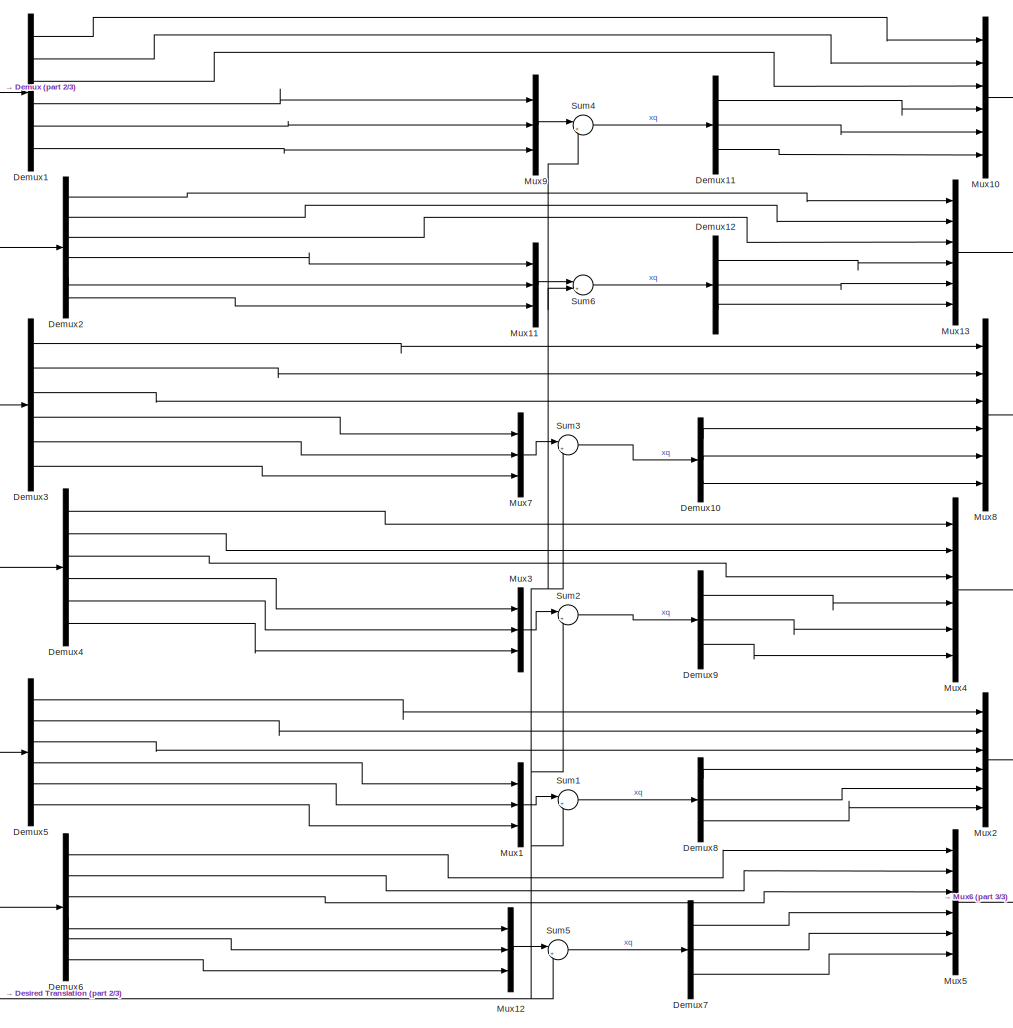
[diagram: Subsystem1 - part 1/3, center side, full height]
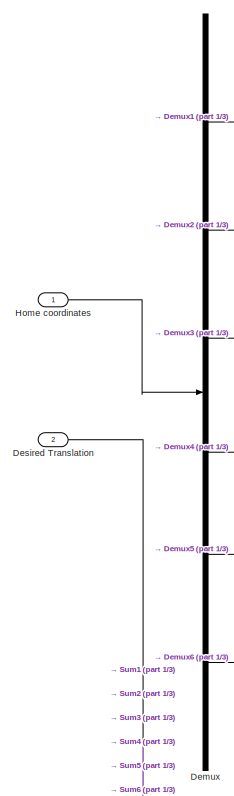
[diagram: Subsystem1 - part 2/3, left side, full height]
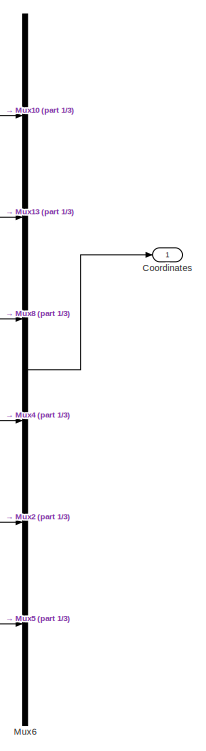
[diagram: Subsystem1 - part 3/3, middle right region]
BLOCK [SubSystem] Subsystem1
  Ports = [2, 1]
  RequestExecContextInheritance = off
BLOCK [Outport] Subsystem1/Coordinates
BLOCK [Demux] Subsystem1/Demux
  Outputs = 6
  Ports = [1, 6]
BLOCK [Demux] Subsystem1/Demux1
  Outputs = 6
  Ports = [1, 6]
BLOCK [Demux] Subsystem1/Demux10
  Outputs = 3
  Ports = [1, 3]
BLOCK [Demux] Subsystem1/Demux11
  Outputs = 3
  Ports = [1, 3]
BLOCK [Demux] Subsystem1/Demux12
  Outputs = 3
  Ports = [1, 3]
BLOCK [Demux] Subsystem1/Demux2
  Outputs = 6
  Ports = [1, 6]
BLOCK [Demux] Subsystem1/Demux3
  Outputs = 6
  Ports = [1, 6]
BLOCK [Demux] Subsystem1/Demux4
  Outputs = 6
  Ports = [1, 6]
BLOCK [Demux] Subsystem1/Demux5
  Outputs = 6
  Ports = [1, 6]
BLOCK [Demux] Subsystem1/Demux6
  Outputs = 6
  Ports = [1, 6]
BLOCK [Demux] Subsystem1/Demux7
  Outputs = 3
  Ports = [1, 3]
BLOCK [Demux] Subsystem1/Demux8
  Outputs = 3
  Ports = [1, 3]
BLOCK [Demux] Subsystem1/Demux9
  Outputs = 3
  Ports = [1, 3]
BLOCK [Inport] Subsystem1/Desired Translation
  Port = 2
BLOCK [Inport] Subsystem1/Home coordinates
BLOCK [Mux] Subsystem1/Mux1
  DisplayOption = bar
  Inputs = 3
  Ports = [3, 1]
BLOCK [Mux] Subsystem1/Mux10
  DisplayOption = bar
  Inputs = 6
  Ports = [6, 1]
BLOCK [Mux] Subsystem1/Mux11
  DisplayOption = bar
  Inputs = 3
  Ports = [3, 1]
BLOCK [Mux] Subsystem1/Mux12
  DisplayOption = bar
  Inputs = 3
  Ports = [3, 1]
BLOCK [Mux] Subsystem1/Mux13
  DisplayOption = bar
  Inputs = 6
  Ports = [6, 1]
BLOCK [Mux] Subsystem1/Mux2
  DisplayOption = bar
  Inputs = 6
  Ports = [6, 1]
BLOCK [Mux] Subsystem1/Mux3
  DisplayOption = bar
  Inputs = 3
  Ports = [3, 1]
BLOCK [Mux] Subsystem1/Mux4
  DisplayOption = bar
  Inputs = 6
  Ports = [6, 1]
BLOCK [Mux] Subsystem1/Mux5
  DisplayOption = bar
  Inputs = 6
  Ports = [6, 1]
BLOCK [Mux] Subsystem1/Mux6
  DisplayOption = bar
  Inputs = 6
  Ports = [6, 1]
BLOCK [Mux] Subsystem1/Mux7
  DisplayOption = bar
  Inputs = 3
  Ports = [3, 1]
BLOCK [Mux] Subsystem1/Mux8
  DisplayOption = bar
  Inputs = 6
  Ports = [6, 1]
BLOCK [Mux] Subsystem1/Mux9
  DisplayOption = bar
  Inputs = 3
  Ports = [3, 1]
BLOCK [Sum] Subsystem1/Sum1
  Inputs = |++
  Ports = [2, 1]
BLOCK [Sum] Subsystem1/Sum2
  Inputs = |++
  Ports = [2, 1]
BLOCK [Sum] Subsystem1/Sum3
  Inputs = |++
  Ports = [2, 1]
BLOCK [Sum] Subsystem1/Sum4
  Inputs = |++
  Ports = [2, 1]
BLOCK [Sum] Subsystem1/Sum5
  Inputs = |++
  Ports = [2, 1]
BLOCK [Sum] Subsystem1/Sum6
  Inputs = |++
  Ports = [2, 1]
BLOCK [Scope] Translation
  Floating = off
  NumInputPorts = 1
  Ports = [1]
  ScopeSpecificationString = Simulink.scopes.TimeScopeBlockCfg('CurrentConfiguration', extmgr.ConfigurationSet(extmgr.Configuration('Core','General UI',true),extmgr.Configuration('Core','Source UI',true),extmgr.Configuration('Sources','WiredSimulink',true),extmgr.Configuration('Visuals','Time Domain',true,'SerializedDisplays',{struct('MinYLimReal','-22.51741','MaxYLimReal','67.76102','YLabelReal','','MinYLimMag','0.00000','Ma...<+1823ch>
ANNOTATION Coordinates Home Position: Bi - Coordonatele punctelor de la baza Pi - Coordonatele punctelor de pe platforma fata de reperul din baza
LINE Coordinates Home Position/Bi x:1 -> Coordinates Home Position/Demux:1
LINE Coordinates Home Position/Bi y:1 -> Coordinates Home Position/Demux1:1
LINE Coordinates Home Position/Bi z:1 -> Coordinates Home Position/Demux2:1
LINE Coordinates Home Position/Demux1:1 -> Coordinates Home Position/Mux:2
LINE Coordinates Home Position/Demux1:2 -> Coordinates Home Position/Mux1:2
LINE Coordinates Home Position/Demux1:3 -> Coordinates Home Position/Mux2:2
LINE Coordinates Home Position/Demux1:4 -> Coordinates Home Position/Mux3:2
LINE Coordinates Home Position/Demux1:5 -> Coordinates Home Position/Mux4:2
LINE Coordinates Home Position/Demux1:6 -> Coordinates Home Position/Mux5:2
LINE Coordinates Home Position/Demux2:1 -> Coordinates Home Position/Mux:3
LINE Coordinates Home Position/Demux2:2 -> Coordinates Home Position/Mux1:3
LINE Coordinates Home Position/Demux2:3 -> Coordinates Home Position/Mux2:3
LINE Coordinates Home Position/Demux2:4 -> Coordinates Home Position/Mux3:3
LINE Coordinates Home Position/Demux2:5 -> Coordinates Home Position/Mux4:3
LINE Coordinates Home Position/Demux2:6 -> Coordinates Home Position/Mux5:3
LINE Coordinates Home Position/Demux3:1 -> Coordinates Home Position/Mux:4
LINE Coordinates Home Position/Demux3:2 -> Coordinates Home Position/Mux1:4
LINE Coordinates Home Position/Demux3:3 -> Coordinates Home Position/Mux2:4
LINE Coordinates Home Position/Demux3:4 -> Coordinates Home Position/Mux3:4
LINE Coordinates Home Position/Demux3:5 -> Coordinates Home Position/Mux4:4
LINE Coordinates Home Position/Demux3:6 -> Coordinates Home Position/Mux5:4
LINE Coordinates Home Position/Demux4:1 -> Coordinates Home Position/Mux:5
LINE Coordinates Home Position/Demux4:2 -> Coordinates Home Position/Mux1:5
LINE Coordinates Home Position/Demux4:3 -> Coordinates Home Position/Mux2:5
LINE Coordinates Home Position/Demux4:4 -> Coordinates Home Position/Mux3:5
LINE Coordinates Home Position/Demux4:5 -> Coordinates Home Position/Mux4:5
LINE Coordinates Home Position/Demux4:6 -> Coordinates Home Position/Mux5:5
LINE Coordinates Home Position/Demux5:1 -> Coordinates Home Position/Mux:6
LINE Coordinates Home Position/Demux5:2 -> Coordinates Home Position/Mux1:6
LINE Coordinates Home Position/Demux5:3 -> Coordinates Home Position/Mux2:6
LINE Coordinates Home Position/Demux5:4 -> Coordinates Home Position/Mux3:6
LINE Coordinates Home Position/Demux5:5 -> Coordinates Home Position/Mux4:6
LINE Coordinates Home Position/Demux5:6 -> Coordinates Home Position/Mux5:6
LINE Coordinates Home Position/Demux:1 -> Coordinates Home Position/Mux:1
LINE Coordinates Home Position/Demux:2 -> Coordinates Home Position/Mux1:1
LINE Coordinates Home Position/Demux:3 -> Coordinates Home Position/Mux2:1
LINE Coordinates Home Position/Demux:4 -> Coordinates Home Position/Mux3:1
LINE Coordinates Home Position/Demux:5 -> Coordinates Home Position/Mux4:1
LINE Coordinates Home Position/Demux:6 -> Coordinates Home Position/Mux5:1
LINE Coordinates Home Position/Mux1:1 -> Coordinates Home Position/Out2:1
LINE Coordinates Home Position/Mux2:1 -> Coordinates Home Position/Out3:1
LINE Coordinates Home Position/Mux3:1 -> Coordinates Home Position/Out4:1
LINE Coordinates Home Position/Mux4:1 -> Coordinates Home Position/Out5:1
LINE Coordinates Home Position/Mux5:1 -> Coordinates Home Position/Out6:1
LINE Coordinates Home Position/Mux:1 -> Coordinates Home Position/Out1:1
LINE Coordinates Home Position/Pi x:1 -> Coordinates Home Position/Demux3:1
LINE Coordinates Home Position/Pi y:1 -> Coordinates Home Position/Demux4:1
LINE Coordinates Home Position/Pi z:1 -> Coordinates Home Position/Demux5:1
LINE Coordinates Home Position:1 -> Mux1:1
LINE Coordinates Home Position:2 -> Mux1:2
LINE Coordinates Home Position:3 -> Mux1:3
LINE Coordinates Home Position:4 -> Mux1:4
LINE Coordinates Home Position:5 -> Mux1:5
LINE Coordinates Home Position:6 -> Mux1:6
LINE Demux1:1 -> Inverse Kinematics:1
LINE Demux1:2 -> Inverse Kinematics:2
LINE Demux1:3 -> Inverse Kinematics:3
LINE Demux1:4 -> Inverse Kinematics:4
LINE Demux1:5 -> Inverse Kinematics:5
LINE Demux1:6 -> Inverse Kinematics:6
LINE Demux:1 -> Leg length calculator:1
LINE Demux:2 -> Leg length calculator:2
LINE Demux:3 -> Leg length calculator:3
LINE Demux:4 -> Leg length calculator:4
LINE Demux:5 -> Leg length calculator:5
LINE Demux:6 -> Leg length calculator:6
LINE Desired/MAX_IN:1 -> Desired/X:1
LINE Desired/MAX_IN:2 -> Desired/Y:1
LINE Desired/MAX_IN:3 -> Desired/Z:1
LINE Desired/MAX_IN:4 -> Desired/Yaw(z axis rotation):1
LINE Desired/MAX_IN:5 -> Desired/Pitch(y axis rotation):1
LINE Desired/MAX_IN:6 -> Desired/Roll (x axis rotation):1
LINE Desired:1 -> Mux:1
LINE Desired:2 -> Mux:2
LINE Desired:3 -> Mux:3
LINE Desired:4 -> Rotation matrix:1
LINE Desired:5 -> Rotation matrix:2
LINE Desired:6 -> Rotation matrix:3
LINE Inverse Kinematics/Constant2:1 -> Inverse Kinematics/Degrees to Radians1:1
LINE Inverse Kinematics/Coordinates1:1 -> Inverse Kinematics/a, b, c calculus 1:1
LINE Inverse Kinematics/Coordinates2:1 -> Inverse Kinematics/a, b, c calculus 2:1
LINE Inverse Kinematics/Coordinates3:1 -> Inverse Kinematics/a, b, c calculus 3:1
LINE Inverse Kinematics/Coordinates4:1 -> Inverse Kinematics/a, b, c calculus 4:1
LINE Inverse Kinematics/Coordinates5:1 -> Inverse Kinematics/a, b, c calculus 5:2
LINE Inverse Kinematics/Coordinates6:1 -> Inverse Kinematics/a, b, c calculus 6:1
LINE Inverse Kinematics/Degrees to Radians1:1 -> Inverse Kinematics/Sum:2
LINE Inverse Kinematics/Delta calculus 1/Asin5:1 -> Inverse Kinematics/Delta calculus 1/Sum12:1
LINE Inverse Kinematics/Delta calculus 1/Atan6:1 -> Inverse Kinematics/Delta calculus 1/Sum12:2
LINE Inverse Kinematics/Delta calculus 1/Divide10:1 -> Inverse Kinematics/Delta calculus 1/Asin5:1
LINE Inverse Kinematics/Delta calculus 1/Divide11:1 -> Inverse Kinematics/Delta calculus 1/Atan6:1
LINE Inverse Kinematics/Delta calculus 1/Math Function11:1 -> Inverse Kinematics/Delta calculus 1/Sum11:1
LINE Inverse Kinematics/Delta calculus 1/Math Function12:1 -> Inverse Kinematics/Delta calculus 1/Sum11:2
LINE Inverse Kinematics/Delta calculus 1/Square Root5:1 -> Inverse Kinematics/Delta calculus 1/Divide10:2
LINE Inverse Kinematics/Delta calculus 1/Sum11:1 -> Inverse Kinematics/Delta calculus 1/Square Root5:1
LINE Inverse Kinematics/Delta calculus 1/Sum12:1 -> Inverse Kinematics/Delta calculus 1/Delta:1
NET Inverse Kinematics/Delta calculus 1/a:1 -> Inverse Kinematics/Delta calculus 1/Divide11:2, Inverse Kinematics/Delta calculus 1/Math Function11:1
NET Inverse Kinematics/Delta calculus 1/b:1 -> Inverse Kinematics/Delta calculus 1/Divide11:1, Inverse Kinematics/Delta calculus 1/Math Function12:1
LINE Inverse Kinematics/Delta calculus 1/c:1 -> Inverse Kinematics/Delta calculus 1/Divide10:1
LINE Inverse Kinematics/Delta calculus 1:1 -> Inverse Kinematics/Mux:1
LINE Inverse Kinematics/Delta calculus 2/Asin5:1 -> Inverse Kinematics/Delta calculus 2/Sum12:1
LINE Inverse Kinematics/Delta calculus 2/Atan6:1 -> Inverse Kinematics/Delta calculus 2/Sum12:2
LINE Inverse Kinematics/Delta calculus 2/Divide10:1 -> Inverse Kinematics/Delta calculus 2/Asin5:1
LINE Inverse Kinematics/Delta calculus 2/Divide11:1 -> Inverse Kinematics/Delta calculus 2/Atan6:1
LINE Inverse Kinematics/Delta calculus 2/Math Function11:1 -> Inverse Kinematics/Delta calculus 2/Sum11:1
LINE Inverse Kinematics/Delta calculus 2/Math Function12:1 -> Inverse Kinematics/Delta calculus 2/Sum11:2
NET Inverse Kinematics/Delta calculus 2/Square Root5:1 -> Inverse Kinematics/Delta calculus 2/Display11:1, Inverse Kinematics/Delta calculus 2/Divide10:2
LINE Inverse Kinematics/Delta calculus 2/Sum11:1 -> Inverse Kinematics/Delta calculus 2/Square Root5:1
LINE Inverse Kinematics/Delta calculus 2/Sum12:1 -> Inverse Kinematics/Delta calculus 2/Delta:1
NET Inverse Kinematics/Delta calculus 2/a:1 -> Inverse Kinematics/Delta calculus 2/Divide11:2, Inverse Kinematics/Delta calculus 2/Math Function11:1
NET Inverse Kinematics/Delta calculus 2/b:1 -> Inverse Kinematics/Delta calculus 2/Divide11:1, Inverse Kinematics/Delta calculus 2/Math Function12:1
LINE Inverse Kinematics/Delta calculus 2/c:1 -> Inverse Kinematics/Delta calculus 2/Divide10:1
LINE Inverse Kinematics/Delta calculus 2:1 -> Inverse Kinematics/Mux:2
LINE Inverse Kinematics/Delta calculus 3/Asin5:1 -> Inverse Kinematics/Delta calculus 3/Sum12:1
LINE Inverse Kinematics/Delta calculus 3/Atan6:1 -> Inverse Kinematics/Delta calculus 3/Sum12:2
LINE Inverse Kinematics/Delta calculus 3/Divide10:1 -> Inverse Kinematics/Delta calculus 3/Asin5:1
LINE Inverse Kinematics/Delta calculus 3/Divide11:1 -> Inverse Kinematics/Delta calculus 3/Atan6:1
LINE Inverse Kinematics/Delta calculus 3/Math Function11:1 -> Inverse Kinematics/Delta calculus 3/Sum11:1
LINE Inverse Kinematics/Delta calculus 3/Math Function12:1 -> Inverse Kinematics/Delta calculus 3/Sum11:2
LINE Inverse Kinematics/Delta calculus 3/Square Root5:1 -> Inverse Kinematics/Delta calculus 3/Divide10:2
LINE Inverse Kinematics/Delta calculus 3/Sum11:1 -> Inverse Kinematics/Delta calculus 3/Square Root5:1
LINE Inverse Kinematics/Delta calculus 3/Sum12:1 -> Inverse Kinematics/Delta calculus 3/Delta:1
NET Inverse Kinematics/Delta calculus 3/a:1 -> Inverse Kinematics/Delta calculus 3/Divide11:2, Inverse Kinematics/Delta calculus 3/Math Function11:1
NET Inverse Kinematics/Delta calculus 3/b:1 -> Inverse Kinematics/Delta calculus 3/Divide11:1, Inverse Kinematics/Delta calculus 3/Math Function12:1
LINE Inverse Kinematics/Delta calculus 3/c:1 -> Inverse Kinematics/Delta calculus 3/Divide10:1
LINE Inverse Kinematics/Delta calculus 3:1 -> Inverse Kinematics/Mux:3
LINE Inverse Kinematics/Delta calculus 4/Asin5:1 -> Inverse Kinematics/Delta calculus 4/Sum12:1
LINE Inverse Kinematics/Delta calculus 4/Atan6:1 -> Inverse Kinematics/Delta calculus 4/Sum12:2
LINE Inverse Kinematics/Delta calculus 4/Divide10:1 -> Inverse Kinematics/Delta calculus 4/Asin5:1
LINE Inverse Kinematics/Delta calculus 4/Divide11:1 -> Inverse Kinematics/Delta calculus 4/Atan6:1
LINE Inverse Kinematics/Delta calculus 4/Math Function11:1 -> Inverse Kinematics/Delta calculus 4/Sum11:1
LINE Inverse Kinematics/Delta calculus 4/Math Function12:1 -> Inverse Kinematics/Delta calculus 4/Sum11:2
LINE Inverse Kinematics/Delta calculus 4/Square Root5:1 -> Inverse Kinematics/Delta calculus 4/Divide10:2
LINE Inverse Kinematics/Delta calculus 4/Sum11:1 -> Inverse Kinematics/Delta calculus 4/Square Root5:1
LINE Inverse Kinematics/Delta calculus 4/Sum12:1 -> Inverse Kinematics/Delta calculus 4/Delta:1
NET Inverse Kinematics/Delta calculus 4/a:1 -> Inverse Kinematics/Delta calculus 4/Divide11:2, Inverse Kinematics/Delta calculus 4/Math Function11:1
NET Inverse Kinematics/Delta calculus 4/b:1 -> Inverse Kinematics/Delta calculus 4/Divide11:1, Inverse Kinematics/Delta calculus 4/Math Function12:1
LINE Inverse Kinematics/Delta calculus 4/c:1 -> Inverse Kinematics/Delta calculus 4/Divide10:1
LINE Inverse Kinematics/Delta calculus 4:1 -> Inverse Kinematics/Mux:4
LINE Inverse Kinematics/Delta calculus 5/Asin5:1 -> Inverse Kinematics/Delta calculus 5/Sum12:1
LINE Inverse Kinematics/Delta calculus 5/Atan6:1 -> Inverse Kinematics/Delta calculus 5/Sum12:2
LINE Inverse Kinematics/Delta calculus 5/Divide10:1 -> Inverse Kinematics/Delta calculus 5/Asin5:1
LINE Inverse Kinematics/Delta calculus 5/Divide11:1 -> Inverse Kinematics/Delta calculus 5/Atan6:1
LINE Inverse Kinematics/Delta calculus 5/Math Function11:1 -> Inverse Kinematics/Delta calculus 5/Sum11:1
LINE Inverse Kinematics/Delta calculus 5/Math Function12:1 -> Inverse Kinematics/Delta calculus 5/Sum11:2
LINE Inverse Kinematics/Delta calculus 5/Square Root5:1 -> Inverse Kinematics/Delta calculus 5/Divide10:2
LINE Inverse Kinematics/Delta calculus 5/Sum11:1 -> Inverse Kinematics/Delta calculus 5/Square Root5:1
LINE Inverse Kinematics/Delta calculus 5/Sum12:1 -> Inverse Kinematics/Delta calculus 5/Delta:1
NET Inverse Kinematics/Delta calculus 5/a:1 -> Inverse Kinematics/Delta calculus 5/Divide11:2, Inverse Kinematics/Delta calculus 5/Math Function11:1
NET Inverse Kinematics/Delta calculus 5/b:1 -> Inverse Kinematics/Delta calculus 5/Divide11:1, Inverse Kinematics/Delta calculus 5/Math Function12:1
LINE Inverse Kinematics/Delta calculus 5/c:1 -> Inverse Kinematics/Delta calculus 5/Divide10:1
LINE Inverse Kinematics/Delta calculus 5:1 -> Inverse Kinematics/Mux:5
LINE Inverse Kinematics/Delta calculus 6/Asin5:1 -> Inverse Kinematics/Delta calculus 6/Sum12:1
LINE Inverse Kinematics/Delta calculus 6/Atan6:1 -> Inverse Kinematics/Delta calculus 6/Sum12:2
LINE Inverse Kinematics/Delta calculus 6/Divide10:1 -> Inverse Kinematics/Delta calculus 6/Asin5:1
LINE Inverse Kinematics/Delta calculus 6/Divide11:1 -> Inverse Kinematics/Delta calculus 6/Atan6:1
LINE Inverse Kinematics/Delta calculus 6/Math Function11:1 -> Inverse Kinematics/Delta calculus 6/Sum11:1
LINE Inverse Kinematics/Delta calculus 6/Math Function12:1 -> Inverse Kinematics/Delta calculus 6/Sum11:2
LINE Inverse Kinematics/Delta calculus 6/Square Root5:1 -> Inverse Kinematics/Delta calculus 6/Divide10:2
LINE Inverse Kinematics/Delta calculus 6/Sum11:1 -> Inverse Kinematics/Delta calculus 6/Square Root5:1
LINE Inverse Kinematics/Delta calculus 6/Sum12:1 -> Inverse Kinematics/Delta calculus 6/Delta:1
NET Inverse Kinematics/Delta calculus 6/a:1 -> Inverse Kinematics/Delta calculus 6/Divide11:2, Inverse Kinematics/Delta calculus 6/Math Function11:1
NET Inverse Kinematics/Delta calculus 6/b:1 -> Inverse Kinematics/Delta calculus 6/Divide11:1, Inverse Kinematics/Delta calculus 6/Math Function12:1
LINE Inverse Kinematics/Delta calculus 6/c:1 -> Inverse Kinematics/Delta calculus 6/Divide10:1
LINE Inverse Kinematics/Delta calculus 6:1 -> Inverse Kinematics/Mux:6
LINE Inverse Kinematics/Mux:1 -> Inverse Kinematics/Sum:1
LINE Inverse Kinematics/Sum:1 -> Inverse Kinematics/Delta:1
LINE Inverse Kinematics/a, b, c calculus 1/Coordinates:1 -> Inverse Kinematics/a, b, c calculus 1/Demux:1
LINE Inverse Kinematics/a, b, c calculus 1/Cos:1 -> Inverse Kinematics/a, b, c calculus 1/Product2:1
LINE Inverse Kinematics/a, b, c calculus 1/D:1 -> Inverse Kinematics/a, b, c calculus 1/Math Function3:1
LINE Inverse Kinematics/a, b, c calculus 1/Demux:1 -> Inverse Kinematics/a, b, c calculus 1/Sum2:2
LINE Inverse Kinematics/a, b, c calculus 1/Demux:2 -> Inverse Kinematics/a, b, c calculus 1/Sum3:2
LINE Inverse Kinematics/a, b, c calculus 1/Demux:3 -> Inverse Kinematics/a, b, c calculus 1/Sum1:2
LINE Inverse Kinematics/a, b, c calculus 1/Demux:4 -> Inverse Kinematics/a, b, c calculus 1/Sum2:1
LINE Inverse Kinematics/a, b, c calculus 1/Demux:5 -> Inverse Kinematics/a, b, c calculus 1/Sum3:1
LINE Inverse Kinematics/a, b, c calculus 1/Demux:6 -> Inverse Kinematics/a, b, c calculus 1/Sum1:1
LINE Inverse Kinematics/a, b, c calculus 1/Gain:1 -> Inverse Kinematics/a, b, c calculus 1/c:1
LINE Inverse Kinematics/a, b, c calculus 1/Math Function3:1 -> Inverse Kinematics/a, b, c calculus 1/Sum5:2
LINE Inverse Kinematics/a, b, c calculus 1/Math Function4:1 -> Inverse Kinematics/a, b, c calculus 1/Sum5:3
LINE Inverse Kinematics/a, b, c calculus 1/Math Function5:1 -> Inverse Kinematics/a, b, c calculus 1/Sum5:1
LINE Inverse Kinematics/a, b, c calculus 1/Product1:1 -> Inverse Kinematics/a, b, c calculus 1/Sum6:1
LINE Inverse Kinematics/a, b, c calculus 1/Product2:1 -> Inverse Kinematics/a, b, c calculus 1/Sum6:2
LINE Inverse Kinematics/a, b, c calculus 1/Product3:1 -> Inverse Kinematics/a, b, c calculus 1/b:1
LINE Inverse Kinematics/a, b, c calculus 1/Product:1 -> Inverse Kinematics/a, b, c calculus 1/a:1
NET Inverse Kinematics/a, b, c calculus 1/Rm:1 -> Inverse Kinematics/a, b, c calculus 1/Math Function4:1, Inverse Kinematics/a, b, c calculus 1/Product3:2, Inverse Kinematics/a, b, c calculus 1/Product:3
LINE Inverse Kinematics/a, b, c calculus 1/Sin:1 -> Inverse Kinematics/a, b, c calculus 1/Product1:1
LINE Inverse Kinematics/a, b, c calculus 1/Sum1:1 -> Inverse Kinematics/a, b, c calculus 1/Product:1
LINE Inverse Kinematics/a, b, c calculus 1/Sum2:1 -> Inverse Kinematics/a, b, c calculus 1/Product2:2
LINE Inverse Kinematics/a, b, c calculus 1/Sum3:1 -> Inverse Kinematics/a, b, c calculus 1/Product1:2
LINE Inverse Kinematics/a, b, c calculus 1/Sum5:1 -> Inverse Kinematics/a, b, c calculus 1/Gain:1
LINE Inverse Kinematics/a, b, c calculus 1/Sum6:1 -> Inverse Kinematics/a, b, c calculus 1/Product3:3
LINE Inverse Kinematics/a, b, c calculus 1/const6:1 -> Inverse Kinematics/a, b, c calculus 1/Product3:1
LINE Inverse Kinematics/a, b, c calculus 1/const:1 -> Inverse Kinematics/a, b, c calculus 1/Product:2
LINE Inverse Kinematics/a, b, c calculus 1/l1:1 -> Inverse Kinematics/a, b, c calculus 1/Math Function5:1
NET Inverse Kinematics/a, b, c calculus 1/unghiGamma1:1 -> Inverse Kinematics/a, b, c calculus 1/Cos:1, Inverse Kinematics/a, b, c calculus 1/Sin:1
LINE Inverse Kinematics/a, b, c calculus 1:1 -> Inverse Kinematics/Delta calculus 1:1
LINE Inverse Kinematics/a, b, c calculus 1:2 -> Inverse Kinematics/Delta calculus 1:2
LINE Inverse Kinematics/a, b, c calculus 1:3 -> Inverse Kinematics/Delta calculus 1:3
LINE Inverse Kinematics/a, b, c calculus 2/Coordinates:1 -> Inverse Kinematics/a, b, c calculus 2/Demux:1
LINE Inverse Kinematics/a, b, c calculus 2/Cos:1 -> Inverse Kinematics/a, b, c calculus 2/Product2:1
LINE Inverse Kinematics/a, b, c calculus 2/D:1 -> Inverse Kinematics/a, b, c calculus 2/Math Function3:1
LINE Inverse Kinematics/a, b, c calculus 2/Demux:1 -> Inverse Kinematics/a, b, c calculus 2/Sum2:2
LINE Inverse Kinematics/a, b, c calculus 2/Demux:2 -> Inverse Kinematics/a, b, c calculus 2/Sum3:2
LINE Inverse Kinematics/a, b, c calculus 2/Demux:3 -> Inverse Kinematics/a, b, c calculus 2/Sum1:2
LINE Inverse Kinematics/a, b, c calculus 2/Demux:4 -> Inverse Kinematics/a, b, c calculus 2/Sum2:1
LINE Inverse Kinematics/a, b, c calculus 2/Demux:5 -> Inverse Kinematics/a, b, c calculus 2/Sum3:1
LINE Inverse Kinematics/a, b, c calculus 2/Demux:6 -> Inverse Kinematics/a, b, c calculus 2/Sum1:1
LINE Inverse Kinematics/a, b, c calculus 2/Math Function3:1 -> Inverse Kinematics/a, b, c calculus 2/Sum5:2
LINE Inverse Kinematics/a, b, c calculus 2/Math Function4:1 -> Inverse Kinematics/a, b, c calculus 2/Sum5:3
LINE Inverse Kinematics/a, b, c calculus 2/Math Function5:1 -> Inverse Kinematics/a, b, c calculus 2/Sum5:1
LINE Inverse Kinematics/a, b, c calculus 2/Product1:1 -> Inverse Kinematics/a, b, c calculus 2/Sum6:1
LINE Inverse Kinematics/a, b, c calculus 2/Product2:1 -> Inverse Kinematics/a, b, c calculus 2/Sum6:2
LINE Inverse Kinematics/a, b, c calculus 2/Product3:1 -> Inverse Kinematics/a, b, c calculus 2/b:1
LINE Inverse Kinematics/a, b, c calculus 2/Product:1 -> Inverse Kinematics/a, b, c calculus 2/a:1
NET Inverse Kinematics/a, b, c calculus 2/Rm:1 -> Inverse Kinematics/a, b, c calculus 2/Math Function4:1, Inverse Kinematics/a, b, c calculus 2/Product3:2, Inverse Kinematics/a, b, c calculus 2/Product:3
LINE Inverse Kinematics/a, b, c calculus 2/Sin:1 -> Inverse Kinematics/a, b, c calculus 2/Product1:1
LINE Inverse Kinematics/a, b, c calculus 2/Sum1:1 -> Inverse Kinematics/a, b, c calculus 2/Product:1
LINE Inverse Kinematics/a, b, c calculus 2/Sum2:1 -> Inverse Kinematics/a, b, c calculus 2/Product2:2
LINE Inverse Kinematics/a, b, c calculus 2/Sum3:1 -> Inverse Kinematics/a, b, c calculus 2/Product1:2
LINE Inverse Kinematics/a, b, c calculus 2/Sum5:1 -> Inverse Kinematics/a, b, c calculus 2/c:1
LINE Inverse Kinematics/a, b, c calculus 2/Sum6:1 -> Inverse Kinematics/a, b, c calculus 2/Product3:3
LINE Inverse Kinematics/a, b, c calculus 2/const6:1 -> Inverse Kinematics/a, b, c calculus 2/Product3:1
LINE Inverse Kinematics/a, b, c calculus 2/const:1 -> Inverse Kinematics/a, b, c calculus 2/Product:2
LINE Inverse Kinematics/a, b, c calculus 2/l2:1 -> Inverse Kinematics/a, b, c calculus 2/Math Function5:1
NET Inverse Kinematics/a, b, c calculus 2/unghiGamma1:1 -> Inverse Kinematics/a, b, c calculus 2/Cos:1, Inverse Kinematics/a, b, c calculus 2/Sin:1
LINE Inverse Kinematics/a, b, c calculus 2:1 -> Inverse Kinematics/Delta calculus 2:1
LINE Inverse Kinematics/a, b, c calculus 2:2 -> Inverse Kinematics/Delta calculus 2:2
LINE Inverse Kinematics/a, b, c calculus 2:3 -> Inverse Kinematics/Delta calculus 2:3
LINE Inverse Kinematics/a, b, c calculus 3/Coordinates:1 -> Inverse Kinematics/a, b, c calculus 3/Demux:1
LINE Inverse Kinematics/a, b, c calculus 3/Cos:1 -> Inverse Kinematics/a, b, c calculus 3/Product2:1
LINE Inverse Kinematics/a, b, c calculus 3/D:1 -> Inverse Kinematics/a, b, c calculus 3/Math Function3:1
LINE Inverse Kinematics/a, b, c calculus 3/Demux:1 -> Inverse Kinematics/a, b, c calculus 3/Sum2:2
LINE Inverse Kinematics/a, b, c calculus 3/Demux:2 -> Inverse Kinematics/a, b, c calculus 3/Sum3:2
LINE Inverse Kinematics/a, b, c calculus 3/Demux:3 -> Inverse Kinematics/a, b, c calculus 3/Sum1:2
LINE Inverse Kinematics/a, b, c calculus 3/Demux:4 -> Inverse Kinematics/a, b, c calculus 3/Sum2:1
LINE Inverse Kinematics/a, b, c calculus 3/Demux:5 -> Inverse Kinematics/a, b, c calculus 3/Sum3:1
LINE Inverse Kinematics/a, b, c calculus 3/Demux:6 -> Inverse Kinematics/a, b, c calculus 3/Sum1:1
NET Inverse Kinematics/a, b, c calculus 3/Gain:1 -> Inverse Kinematics/a, b, c calculus 3/Display2:1, Inverse Kinematics/a, b, c calculus 3/c:1
LINE Inverse Kinematics/a, b, c calculus 3/Math Function3:1 -> Inverse Kinematics/a, b, c calculus 3/Sum5:2
LINE Inverse Kinematics/a, b, c calculus 3/Math Function4:1 -> Inverse Kinematics/a, b, c calculus 3/Sum5:3
LINE Inverse Kinematics/a, b, c calculus 3/Math Function5:1 -> Inverse Kinematics/a, b, c calculus 3/Sum5:1
LINE Inverse Kinematics/a, b, c calculus 3/Product1:1 -> Inverse Kinematics/a, b, c calculus 3/Sum6:1
LINE Inverse Kinematics/a, b, c calculus 3/Product2:1 -> Inverse Kinematics/a, b, c calculus 3/Sum6:2
NET Inverse Kinematics/a, b, c calculus 3/Product3:1 -> Inverse Kinematics/a, b, c calculus 3/Display:1, Inverse Kinematics/a, b, c calculus 3/b:1
NET Inverse Kinematics/a, b, c calculus 3/Product:1 -> Inverse Kinematics/a, b, c calculus 3/Display1:1, Inverse Kinematics/a, b, c calculus 3/a:1
NET Inverse Kinematics/a, b, c calculus 3/Rm:1 -> Inverse Kinematics/a, b, c calculus 3/Math Function4:1, Inverse Kinematics/a, b, c calculus 3/Product3:2, Inverse Kinematics/a, b, c calculus 3/Product:3
LINE Inverse Kinematics/a, b, c calculus 3/Sin:1 -> Inverse Kinematics/a, b, c calculus 3/Product1:1
LINE Inverse Kinematics/a, b, c calculus 3/Sum1:1 -> Inverse Kinematics/a, b, c calculus 3/Product:1
LINE Inverse Kinematics/a, b, c calculus 3/Sum2:1 -> Inverse Kinematics/a, b, c calculus 3/Product2:2
LINE Inverse Kinematics/a, b, c calculus 3/Sum3:1 -> Inverse Kinematics/a, b, c calculus 3/Product1:2
LINE Inverse Kinematics/a, b, c calculus 3/Sum5:1 -> Inverse Kinematics/a, b, c calculus 3/Gain:1
LINE Inverse Kinematics/a, b, c calculus 3/Sum6:1 -> Inverse Kinematics/a, b, c calculus 3/Product3:3
LINE Inverse Kinematics/a, b, c calculus 3/const6:1 -> Inverse Kinematics/a, b, c calculus 3/Product3:1
LINE Inverse Kinematics/a, b, c calculus 3/const:1 -> Inverse Kinematics/a, b, c calculus 3/Product:2
LINE Inverse Kinematics/a, b, c calculus 3/l3:1 -> Inverse Kinematics/a, b, c calculus 3/Math Function5:1
NET Inverse Kinematics/a, b, c calculus 3/unghiGamma1:1 -> Inverse Kinematics/a, b, c calculus 3/Cos:1, Inverse Kinematics/a, b, c calculus 3/Sin:1
LINE Inverse Kinematics/a, b, c calculus 3:1 -> Inverse Kinematics/Delta calculus 3:1
LINE Inverse Kinematics/a, b, c calculus 3:2 -> Inverse Kinematics/Delta calculus 3:2
LINE Inverse Kinematics/a, b, c calculus 3:3 -> Inverse Kinematics/Delta calculus 3:3
LINE Inverse Kinematics/a, b, c calculus 4/Coordinates:1 -> Inverse Kinematics/a, b, c calculus 4/Demux:1
LINE Inverse Kinematics/a, b, c calculus 4/Cos:1 -> Inverse Kinematics/a, b, c calculus 4/Product2:1
LINE Inverse Kinematics/a, b, c calculus 4/D:1 -> Inverse Kinematics/a, b, c calculus 4/Math Function3:1
LINE Inverse Kinematics/a, b, c calculus 4/Demux:1 -> Inverse Kinematics/a, b, c calculus 4/Sum2:2
LINE Inverse Kinematics/a, b, c calculus 4/Demux:2 -> Inverse Kinematics/a, b, c calculus 4/Sum3:2
LINE Inverse Kinematics/a, b, c calculus 4/Demux:3 -> Inverse Kinematics/a, b, c calculus 4/Sum1:2
LINE Inverse Kinematics/a, b, c calculus 4/Demux:4 -> Inverse Kinematics/a, b, c calculus 4/Sum2:1
LINE Inverse Kinematics/a, b, c calculus 4/Demux:5 -> Inverse Kinematics/a, b, c calculus 4/Sum3:1
LINE Inverse Kinematics/a, b, c calculus 4/Demux:6 -> Inverse Kinematics/a, b, c calculus 4/Sum1:1
LINE Inverse Kinematics/a, b, c calculus 4/Math Function3:1 -> Inverse Kinematics/a, b, c calculus 4/Sum5:2
LINE Inverse Kinematics/a, b, c calculus 4/Math Function4:1 -> Inverse Kinematics/a, b, c calculus 4/Sum5:3
LINE Inverse Kinematics/a, b, c calculus 4/Math Function5:1 -> Inverse Kinematics/a, b, c calculus 4/Sum5:1
LINE Inverse Kinematics/a, b, c calculus 4/Product1:1 -> Inverse Kinematics/a, b, c calculus 4/Sum6:1
LINE Inverse Kinematics/a, b, c calculus 4/Product2:1 -> Inverse Kinematics/a, b, c calculus 4/Sum6:2
NET Inverse Kinematics/a, b, c calculus 4/Product3:1 -> Inverse Kinematics/a, b, c calculus 4/Display3:1, Inverse Kinematics/a, b, c calculus 4/b:1
NET Inverse Kinematics/a, b, c calculus 4/Product:1 -> Inverse Kinematics/a, b, c calculus 4/Display4:1, Inverse Kinematics/a, b, c calculus 4/a:1
NET Inverse Kinematics/a, b, c calculus 4/Rm:1 -> Inverse Kinematics/a, b, c calculus 4/Display:1, Inverse Kinematics/a, b, c calculus 4/Math Function4:1, Inverse Kinematics/a, b, c calculus 4/Product3:2, Inverse Kinematics/a, b, c calculus 4/Product:3
LINE Inverse Kinematics/a, b, c calculus 4/Sin:1 -> Inverse Kinematics/a, b, c calculus 4/Product1:1
LINE Inverse Kinematics/a, b, c calculus 4/Sum1:1 -> Inverse Kinematics/a, b, c calculus 4/Product:1
LINE Inverse Kinematics/a, b, c calculus 4/Sum2:1 -> Inverse Kinematics/a, b, c calculus 4/Product2:2
LINE Inverse Kinematics/a, b, c calculus 4/Sum3:1 -> Inverse Kinematics/a, b, c calculus 4/Product1:2
NET Inverse Kinematics/a, b, c calculus 4/Sum5:1 -> Inverse Kinematics/a, b, c calculus 4/Display2:1, Inverse Kinematics/a, b, c calculus 4/Display5:1, Inverse Kinematics/a, b, c calculus 4/c:1
LINE Inverse Kinematics/a, b, c calculus 4/Sum6:1 -> Inverse Kinematics/a, b, c calculus 4/Product3:3
LINE Inverse Kinematics/a, b, c calculus 4/const6:1 -> Inverse Kinematics/a, b, c calculus 4/Product3:1
LINE Inverse Kinematics/a, b, c calculus 4/const:1 -> Inverse Kinematics/a, b, c calculus 4/Product:2
LINE Inverse Kinematics/a, b, c calculus 4/l4:1 -> Inverse Kinematics/a, b, c calculus 4/Math Function5:1
NET Inverse Kinematics/a, b, c calculus 4/unghiGamma1:1 -> Inverse Kinematics/a, b, c calculus 4/Cos:1, Inverse Kinematics/a, b, c calculus 4/Sin:1
LINE Inverse Kinematics/a, b, c calculus 4:1 -> Inverse Kinematics/Delta calculus 4:1
LINE Inverse Kinematics/a, b, c calculus 4:2 -> Inverse Kinematics/Delta calculus 4:2
LINE Inverse Kinematics/a, b, c calculus 4:3 -> Inverse Kinematics/Delta calculus 4:3
LINE Inverse Kinematics/a, b, c calculus 5/Coordinates:1 -> Inverse Kinematics/a, b, c calculus 5/Demux1:1
LINE Inverse Kinematics/a, b, c calculus 5/Cos1:1 -> Inverse Kinematics/a, b, c calculus 5/Product6:1
LINE Inverse Kinematics/a, b, c calculus 5/D1:1 -> Inverse Kinematics/a, b, c calculus 5/Math Function1:1
LINE Inverse Kinematics/a, b, c calculus 5/Demux1:1 -> Inverse Kinematics/a, b, c calculus 5/Sum7:2
LINE Inverse Kinematics/a, b, c calculus 5/Demux1:2 -> Inverse Kinematics/a, b, c calculus 5/Sum8:2
LINE Inverse Kinematics/a, b, c calculus 5/Demux1:3 -> Inverse Kinematics/a, b, c calculus 5/Sum4:2
LINE Inverse Kinematics/a, b, c calculus 5/Demux1:4 -> Inverse Kinematics/a, b, c calculus 5/Sum7:1
LINE Inverse Kinematics/a, b, c calculus 5/Demux1:5 -> Inverse Kinematics/a, b, c calculus 5/Sum8:1
LINE Inverse Kinematics/a, b, c calculus 5/Demux1:6 -> Inverse Kinematics/a, b, c calculus 5/Sum4:1
NET Inverse Kinematics/a, b, c calculus 5/Gain:1 -> Inverse Kinematics/a, b, c calculus 5/Display3:1, Inverse Kinematics/a, b, c calculus 5/c:1
LINE Inverse Kinematics/a, b, c calculus 5/Math Function1:1 -> Inverse Kinematics/a, b, c calculus 5/Sum9:2
LINE Inverse Kinematics/a, b, c calculus 5/Math Function2:1 -> Inverse Kinematics/a, b, c calculus 5/Sum9:3
LINE Inverse Kinematics/a, b, c calculus 5/Math Function6:1 -> Inverse Kinematics/a, b, c calculus 5/Sum9:1
NET Inverse Kinematics/a, b, c calculus 5/Product4:1 -> Inverse Kinematics/a, b, c calculus 5/Display2:1, Inverse Kinematics/a, b, c calculus 5/a:1
LINE Inverse Kinematics/a, b, c calculus 5/Product5:1 -> Inverse Kinematics/a, b, c calculus 5/Sum10:1
LINE Inverse Kinematics/a, b, c calculus 5/Product6:1 -> Inverse Kinematics/a, b, c calculus 5/Sum10:2
NET Inverse Kinematics/a, b, c calculus 5/Product7:1 -> Inverse Kinematics/a, b, c calculus 5/Display1:1, Inverse Kinematics/a, b, c calculus 5/b:1
NET Inverse Kinematics/a, b, c calculus 5/Rm1:1 -> Inverse Kinematics/a, b, c calculus 5/Math Function2:1, Inverse Kinematics/a, b, c calculus 5/Product4:3, Inverse Kinematics/a, b, c calculus 5/Product7:2
LINE Inverse Kinematics/a, b, c calculus 5/Sin1:1 -> Inverse Kinematics/a, b, c calculus 5/Product5:1
LINE Inverse Kinematics/a, b, c calculus 5/Sum10:1 -> Inverse Kinematics/a, b, c calculus 5/Product7:3
LINE Inverse Kinematics/a, b, c calculus 5/Sum4:1 -> Inverse Kinematics/a, b, c calculus 5/Product4:1
LINE Inverse Kinematics/a, b, c calculus 5/Sum7:1 -> Inverse Kinematics/a, b, c calculus 5/Product6:2
LINE Inverse Kinematics/a, b, c calculus 5/Sum8:1 -> Inverse Kinematics/a, b, c calculus 5/Product5:2
LINE Inverse Kinematics/a, b, c calculus 5/Sum9:1 -> Inverse Kinematics/a, b, c calculus 5/Gain:1
LINE Inverse Kinematics/a, b, c calculus 5/const1:1 -> Inverse Kinematics/a, b, c calculus 5/Product4:2
LINE Inverse Kinematics/a, b, c calculus 5/const2:1 -> Inverse Kinematics/a, b, c calculus 5/Product7:1
LINE Inverse Kinematics/a, b, c calculus 5/l5:1 -> Inverse Kinematics/a, b, c calculus 5/Math Function6:1
NET Inverse Kinematics/a, b, c calculus 5/unghiGamma1:1 -> Inverse Kinematics/a, b, c calculus 5/Cos1:1, Inverse Kinematics/a, b, c calculus 5/Sin1:1
LINE Inverse Kinematics/a, b, c calculus 5:1 -> Inverse Kinematics/Delta calculus 5:1
LINE Inverse Kinematics/a, b, c calculus 5:2 -> Inverse Kinematics/Delta calculus 5:2
LINE Inverse Kinematics/a, b, c calculus 5:3 -> Inverse Kinematics/Delta calculus 5:3
LINE Inverse Kinematics/a, b, c calculus 6/Coordinates:1 -> Inverse Kinematics/a, b, c calculus 6/Demux:1
LINE Inverse Kinematics/a, b, c calculus 6/Cos:1 -> Inverse Kinematics/a, b, c calculus 6/Product2:1
LINE Inverse Kinematics/a, b, c calculus 6/D:1 -> Inverse Kinematics/a, b, c calculus 6/Math Function3:1
LINE Inverse Kinematics/a, b, c calculus 6/Demux:1 -> Inverse Kinematics/a, b, c calculus 6/Sum2:2
LINE Inverse Kinematics/a, b, c calculus 6/Demux:2 -> Inverse Kinematics/a, b, c calculus 6/Sum3:2
LINE Inverse Kinematics/a, b, c calculus 6/Demux:3 -> Inverse Kinematics/a, b, c calculus 6/Sum1:2
LINE Inverse Kinematics/a, b, c calculus 6/Demux:4 -> Inverse Kinematics/a, b, c calculus 6/Sum2:1
LINE Inverse Kinematics/a, b, c calculus 6/Demux:5 -> Inverse Kinematics/a, b, c calculus 6/Sum3:1
LINE Inverse Kinematics/a, b, c calculus 6/Demux:6 -> Inverse Kinematics/a, b, c calculus 6/Sum1:1
LINE Inverse Kinematics/a, b, c calculus 6/Math Function3:1 -> Inverse Kinematics/a, b, c calculus 6/Sum5:2
LINE Inverse Kinematics/a, b, c calculus 6/Math Function4:1 -> Inverse Kinematics/a, b, c calculus 6/Sum5:3
LINE Inverse Kinematics/a, b, c calculus 6/Math Function5:1 -> Inverse Kinematics/a, b, c calculus 6/Sum5:1
LINE Inverse Kinematics/a, b, c calculus 6/Product1:1 -> Inverse Kinematics/a, b, c calculus 6/Sum6:1
LINE Inverse Kinematics/a, b, c calculus 6/Product2:1 -> Inverse Kinematics/a, b, c calculus 6/Sum6:2
LINE Inverse Kinematics/a, b, c calculus 6/Product3:1 -> Inverse Kinematics/a, b, c calculus 6/b:1
LINE Inverse Kinematics/a, b, c calculus 6/Product:1 -> Inverse Kinematics/a, b, c calculus 6/a:1
NET Inverse Kinematics/a, b, c calculus 6/Rm:1 -> Inverse Kinematics/a, b, c calculus 6/Math Function4:1, Inverse Kinematics/a, b, c calculus 6/Product3:2, Inverse Kinematics/a, b, c calculus 6/Product:3
LINE Inverse Kinematics/a, b, c calculus 6/Sin:1 -> Inverse Kinematics/a, b, c calculus 6/Product1:1
LINE Inverse Kinematics/a, b, c calculus 6/Sum1:1 -> Inverse Kinematics/a, b, c calculus 6/Product:1
LINE Inverse Kinematics/a, b, c calculus 6/Sum2:1 -> Inverse Kinematics/a, b, c calculus 6/Product2:2
LINE Inverse Kinematics/a, b, c calculus 6/Sum3:1 -> Inverse Kinematics/a, b, c calculus 6/Product1:2
LINE Inverse Kinematics/a, b, c calculus 6/Sum5:1 -> Inverse Kinematics/a, b, c calculus 6/c:1
LINE Inverse Kinematics/a, b, c calculus 6/Sum6:1 -> Inverse Kinematics/a, b, c calculus 6/Product3:3
LINE Inverse Kinematics/a, b, c calculus 6/const6:1 -> Inverse Kinematics/a, b, c calculus 6/Product3:1
LINE Inverse Kinematics/a, b, c calculus 6/const:1 -> Inverse Kinematics/a, b, c calculus 6/Product:2
LINE Inverse Kinematics/a, b, c calculus 6/l6:1 -> Inverse Kinematics/a, b, c calculus 6/Math Function5:1
NET Inverse Kinematics/a, b, c calculus 6/unghiGamma1:1 -> Inverse Kinematics/a, b, c calculus 6/Cos:1, Inverse Kinematics/a, b, c calculus 6/Sin:1
LINE Inverse Kinematics/a, b, c calculus 6:1 -> Inverse Kinematics/Delta calculus 6:1
LINE Inverse Kinematics/a, b, c calculus 6:2 -> Inverse Kinematics/Delta calculus 6:2
LINE Inverse Kinematics/a, b, c calculus 6:3 -> Inverse Kinematics/Delta calculus 6:3
LINE Inverse Kinematics/l1:1 -> Inverse Kinematics/a, b, c calculus 1:2
LINE Inverse Kinematics/l2:1 -> Inverse Kinematics/a, b, c calculus 2:2
LINE Inverse Kinematics/l3:1 -> Inverse Kinematics/a, b, c calculus 3:2
LINE Inverse Kinematics/l4:1 -> Inverse Kinematics/a, b, c calculus 4:2
LINE Inverse Kinematics/l5:1 -> Inverse Kinematics/a, b, c calculus 5:1
LINE Inverse Kinematics/l6:1 -> Inverse Kinematics/a, b, c calculus 6:2
LINE Inverse Kinematics:1 -> Platform:1
LINE Leg length calculator/Coordinates(1):1 -> Leg length calculator/l1 calc:3
LINE Leg length calculator/Coordinates(2):1 -> Leg length calculator/l2 calc:3
LINE Leg length calculator/Coordinates(3):1 -> Leg length calculator/l3 calc:3
LINE Leg length calculator/Coordinates(4):1 -> Leg length calculator/l4 calc:3
LINE Leg length calculator/Coordinates(5):1 -> Leg length calculator/l5 calc:3
LINE Leg length calculator/Coordinates(6):1 -> Leg length calculator/l6 calc:3
NET Leg length calculator/Translatie:1 -> Leg length calculator/l1 calc:1, Leg length calculator/l2 calc:1, Leg length calculator/l3 calc:1, Leg length calculator/l4 calc:1, Leg length calculator/l5 calc:1, Leg length calculator/l6 calc:1
LINE Leg length calculator/l1 calc/Coordinates(1):1 -> Leg length calculator/l1 calc/Demux:1
LINE Leg length calculator/l1 calc/Demux1:1 -> Leg length calculator/l1 calc/Math Function11:1
LINE Leg length calculator/l1 calc/Demux1:2 -> Leg length calculator/l1 calc/Math Function2:1
LINE Leg length calculator/l1 calc/Demux1:3 -> Leg length calculator/l1 calc/Math Function3:1
LINE Leg length calculator/l1 calc/Demux:1 -> Leg length calculator/l1 calc/Mux:1
LINE Leg length calculator/l1 calc/Demux:2 -> Leg length calculator/l1 calc/Mux:2
LINE Leg length calculator/l1 calc/Demux:3 -> Leg length calculator/l1 calc/Mux:3
LINE Leg length calculator/l1 calc/Demux:4 -> Leg length calculator/l1 calc/Mux1:1
LINE Leg length calculator/l1 calc/Demux:5 -> Leg length calculator/l1 calc/Mux1:2
LINE Leg length calculator/l1 calc/Demux:6 -> Leg length calculator/l1 calc/Mux1:3
LINE Leg length calculator/l1 calc/Math Function11:1 -> Leg length calculator/l1 calc/Sum2:1
LINE Leg length calculator/l1 calc/Math Function2:1 -> Leg length calculator/l1 calc/Sum2:2
LINE Leg length calculator/l1 calc/Math Function3:1 -> Leg length calculator/l1 calc/Sum2:3
LINE Leg length calculator/l1 calc/MatrixMultiply:1 -> Leg length calculator/l1 calc/Sum1:2
LINE Leg length calculator/l1 calc/Mux1:1 -> Leg length calculator/l1 calc/MatrixMultiply:2
LINE Leg length calculator/l1 calc/Mux:1 -> Leg length calculator/l1 calc/Sum1:3
LINE Leg length calculator/l1 calc/Sqrt:1 -> Leg length calculator/l1 calc/l:1
LINE Leg length calculator/l1 calc/Sum1:1 -> Leg length calculator/l1 calc/Demux1:1
LINE Leg length calculator/l1 calc/Sum2:1 -> Leg length calculator/l1 calc/Sqrt:1
LINE Leg length calculator/l1 calc/Translatie:1 -> Leg length calculator/l1 calc/Sum1:1
LINE Leg length calculator/l1 calc/pRb:1 -> Leg length calculator/l1 calc/MatrixMultiply:1
LINE Leg length calculator/l1 calc:1 -> Leg length calculator/l1:1
LINE Leg length calculator/l2 calc/Coordinates(2):1 -> Leg length calculator/l2 calc/Demux:1
LINE Leg length calculator/l2 calc/Demux1:1 -> Leg length calculator/l2 calc/Math Function11:1
LINE Leg length calculator/l2 calc/Demux1:2 -> Leg length calculator/l2 calc/Math Function2:1
LINE Leg length calculator/l2 calc/Demux1:3 -> Leg length calculator/l2 calc/Math Function3:1
LINE Leg length calculator/l2 calc/Demux:1 -> Leg length calculator/l2 calc/Mux:1
LINE Leg length calculator/l2 calc/Demux:2 -> Leg length calculator/l2 calc/Mux:2
LINE Leg length calculator/l2 calc/Demux:3 -> Leg length calculator/l2 calc/Mux:3
LINE Leg length calculator/l2 calc/Demux:4 -> Leg length calculator/l2 calc/Mux1:1
LINE Leg length calculator/l2 calc/Demux:5 -> Leg length calculator/l2 calc/Mux1:2
LINE Leg length calculator/l2 calc/Demux:6 -> Leg length calculator/l2 calc/Mux1:3
LINE Leg length calculator/l2 calc/Math Function11:1 -> Leg length calculator/l2 calc/Sum2:1
LINE Leg length calculator/l2 calc/Math Function2:1 -> Leg length calculator/l2 calc/Sum2:2
LINE Leg length calculator/l2 calc/Math Function3:1 -> Leg length calculator/l2 calc/Sum2:3
LINE Leg length calculator/l2 calc/MatrixMultiply:1 -> Leg length calculator/l2 calc/Sum1:2
LINE Leg length calculator/l2 calc/Mux1:1 -> Leg length calculator/l2 calc/MatrixMultiply:2
LINE Leg length calculator/l2 calc/Mux:1 -> Leg length calculator/l2 calc/Sum1:3
LINE Leg length calculator/l2 calc/Sqrt:1 -> Leg length calculator/l2 calc/l:1
LINE Leg length calculator/l2 calc/Sum1:1 -> Leg length calculator/l2 calc/Demux1:1
LINE Leg length calculator/l2 calc/Sum2:1 -> Leg length calculator/l2 calc/Sqrt:1
LINE Leg length calculator/l2 calc/Translatie:1 -> Leg length calculator/l2 calc/Sum1:1
LINE Leg length calculator/l2 calc/pRb:1 -> Leg length calculator/l2 calc/MatrixMultiply:1
LINE Leg length calculator/l2 calc:1 -> Leg length calculator/l2:1
LINE Leg length calculator/l3 calc/Coordinates(3):1 -> Leg length calculator/l3 calc/Demux:1
LINE Leg length calculator/l3 calc/Demux1:1 -> Leg length calculator/l3 calc/Math Function11:1
LINE Leg length calculator/l3 calc/Demux1:2 -> Leg length calculator/l3 calc/Math Function2:1
LINE Leg length calculator/l3 calc/Demux1:3 -> Leg length calculator/l3 calc/Math Function3:1
LINE Leg length calculator/l3 calc/Demux:1 -> Leg length calculator/l3 calc/Mux:1
LINE Leg length calculator/l3 calc/Demux:2 -> Leg length calculator/l3 calc/Mux:2
LINE Leg length calculator/l3 calc/Demux:3 -> Leg length calculator/l3 calc/Mux:3
LINE Leg length calculator/l3 calc/Demux:4 -> Leg length calculator/l3 calc/Mux1:1
LINE Leg length calculator/l3 calc/Demux:5 -> Leg length calculator/l3 calc/Mux1:2
LINE Leg length calculator/l3 calc/Demux:6 -> Leg length calculator/l3 calc/Mux1:3
LINE Leg length calculator/l3 calc/Math Function11:1 -> Leg length calculator/l3 calc/Sum2:1
LINE Leg length calculator/l3 calc/Math Function2:1 -> Leg length calculator/l3 calc/Sum2:2
LINE Leg length calculator/l3 calc/Math Function3:1 -> Leg length calculator/l3 calc/Sum2:3
LINE Leg length calculator/l3 calc/MatrixMultiply:1 -> Leg length calculator/l3 calc/Sum1:2
LINE Leg length calculator/l3 calc/Mux1:1 -> Leg length calculator/l3 calc/MatrixMultiply:2
LINE Leg length calculator/l3 calc/Mux:1 -> Leg length calculator/l3 calc/Sum1:3
LINE Leg length calculator/l3 calc/Sqrt:1 -> Leg length calculator/l3 calc/l1:1
LINE Leg length calculator/l3 calc/Sum1:1 -> Leg length calculator/l3 calc/Demux1:1
LINE Leg length calculator/l3 calc/Sum2:1 -> Leg length calculator/l3 calc/Sqrt:1
LINE Leg length calculator/l3 calc/Translatie:1 -> Leg length calculator/l3 calc/Sum1:1
LINE Leg length calculator/l3 calc/pRb:1 -> Leg length calculator/l3 calc/MatrixMultiply:1
LINE Leg length calculator/l3 calc:1 -> Leg length calculator/l3:1
LINE Leg length calculator/l4 calc/Coordinates(4):1 -> Leg length calculator/l4 calc/Demux:1
LINE Leg length calculator/l4 calc/Demux1:1 -> Leg length calculator/l4 calc/Math Function11:1
LINE Leg length calculator/l4 calc/Demux1:2 -> Leg length calculator/l4 calc/Math Function2:1
LINE Leg length calculator/l4 calc/Demux1:3 -> Leg length calculator/l4 calc/Math Function3:1
LINE Leg length calculator/l4 calc/Demux:1 -> Leg length calculator/l4 calc/Mux:1
LINE Leg length calculator/l4 calc/Demux:2 -> Leg length calculator/l4 calc/Mux:2
LINE Leg length calculator/l4 calc/Demux:3 -> Leg length calculator/l4 calc/Mux:3
LINE Leg length calculator/l4 calc/Demux:4 -> Leg length calculator/l4 calc/Mux1:1
LINE Leg length calculator/l4 calc/Demux:5 -> Leg length calculator/l4 calc/Mux1:2
LINE Leg length calculator/l4 calc/Demux:6 -> Leg length calculator/l4 calc/Mux1:3
LINE Leg length calculator/l4 calc/Math Function11:1 -> Leg length calculator/l4 calc/Sum2:1
LINE Leg length calculator/l4 calc/Math Function2:1 -> Leg length calculator/l4 calc/Sum2:2
LINE Leg length calculator/l4 calc/Math Function3:1 -> Leg length calculator/l4 calc/Sum2:3
LINE Leg length calculator/l4 calc/MatrixMultiply:1 -> Leg length calculator/l4 calc/Sum1:2
LINE Leg length calculator/l4 calc/Mux1:1 -> Leg length calculator/l4 calc/MatrixMultiply:2
LINE Leg length calculator/l4 calc/Mux:1 -> Leg length calculator/l4 calc/Sum1:3
LINE Leg length calculator/l4 calc/Sqrt:1 -> Leg length calculator/l4 calc/l:1
LINE Leg length calculator/l4 calc/Sum1:1 -> Leg length calculator/l4 calc/Demux1:1
LINE Leg length calculator/l4 calc/Sum2:1 -> Leg length calculator/l4 calc/Sqrt:1
LINE Leg length calculator/l4 calc/Translatie:1 -> Leg length calculator/l4 calc/Sum1:1
LINE Leg length calculator/l4 calc/pRb:1 -> Leg length calculator/l4 calc/MatrixMultiply:1
LINE Leg length calculator/l4 calc:1 -> Leg length calculator/l4:1
LINE Leg length calculator/l5 calc/Coordinates(5):1 -> Leg length calculator/l5 calc/Demux:1
LINE Leg length calculator/l5 calc/Demux1:1 -> Leg length calculator/l5 calc/Math Function11:1
LINE Leg length calculator/l5 calc/Demux1:2 -> Leg length calculator/l5 calc/Math Function2:1
LINE Leg length calculator/l5 calc/Demux1:3 -> Leg length calculator/l5 calc/Math Function3:1
LINE Leg length calculator/l5 calc/Demux:1 -> Leg length calculator/l5 calc/Mux:1
LINE Leg length calculator/l5 calc/Demux:2 -> Leg length calculator/l5 calc/Mux:2
LINE Leg length calculator/l5 calc/Demux:3 -> Leg length calculator/l5 calc/Mux:3
LINE Leg length calculator/l5 calc/Demux:4 -> Leg length calculator/l5 calc/Mux1:1
LINE Leg length calculator/l5 calc/Demux:5 -> Leg length calculator/l5 calc/Mux1:2
LINE Leg length calculator/l5 calc/Demux:6 -> Leg length calculator/l5 calc/Mux1:3
LINE Leg length calculator/l5 calc/Math Function11:1 -> Leg length calculator/l5 calc/Sum2:1
LINE Leg length calculator/l5 calc/Math Function2:1 -> Leg length calculator/l5 calc/Sum2:2
LINE Leg length calculator/l5 calc/Math Function3:1 -> Leg length calculator/l5 calc/Sum2:3
LINE Leg length calculator/l5 calc/MatrixMultiply:1 -> Leg length calculator/l5 calc/Sum1:2
LINE Leg length calculator/l5 calc/Mux1:1 -> Leg length calculator/l5 calc/MatrixMultiply:2
LINE Leg length calculator/l5 calc/Mux:1 -> Leg length calculator/l5 calc/Sum1:3
LINE Leg length calculator/l5 calc/Sqrt:1 -> Leg length calculator/l5 calc/l:1
LINE Leg length calculator/l5 calc/Sum1:1 -> Leg length calculator/l5 calc/Demux1:1
LINE Leg length calculator/l5 calc/Sum2:1 -> Leg length calculator/l5 calc/Sqrt:1
LINE Leg length calculator/l5 calc/Translatie:1 -> Leg length calculator/l5 calc/Sum1:1
LINE Leg length calculator/l5 calc/pRb:1 -> Leg length calculator/l5 calc/MatrixMultiply:1
LINE Leg length calculator/l5 calc:1 -> Leg length calculator/l5:1
LINE Leg length calculator/l6 calc/Coordinates(6):1 -> Leg length calculator/l6 calc/Demux:1
LINE Leg length calculator/l6 calc/Demux1:1 -> Leg length calculator/l6 calc/Math Function11:1
LINE Leg length calculator/l6 calc/Demux1:2 -> Leg length calculator/l6 calc/Math Function2:1
LINE Leg length calculator/l6 calc/Demux1:3 -> Leg length calculator/l6 calc/Math Function3:1
LINE Leg length calculator/l6 calc/Demux:1 -> Leg length calculator/l6 calc/Mux:1
LINE Leg length calculator/l6 calc/Demux:2 -> Leg length calculator/l6 calc/Mux:2
LINE Leg length calculator/l6 calc/Demux:3 -> Leg length calculator/l6 calc/Mux:3
LINE Leg length calculator/l6 calc/Demux:4 -> Leg length calculator/l6 calc/Mux1:1
LINE Leg length calculator/l6 calc/Demux:5 -> Leg length calculator/l6 calc/Mux1:2
LINE Leg length calculator/l6 calc/Demux:6 -> Leg length calculator/l6 calc/Mux1:3
LINE Leg length calculator/l6 calc/Math Function11:1 -> Leg length calculator/l6 calc/Sum2:1
LINE Leg length calculator/l6 calc/Math Function2:1 -> Leg length calculator/l6 calc/Sum2:2
LINE Leg length calculator/l6 calc/Math Function3:1 -> Leg length calculator/l6 calc/Sum2:3
LINE Leg length calculator/l6 calc/MatrixMultiply:1 -> Leg length calculator/l6 calc/Sum1:2
LINE Leg length calculator/l6 calc/Mux1:1 -> Leg length calculator/l6 calc/MatrixMultiply:2
LINE Leg length calculator/l6 calc/Mux:1 -> Leg length calculator/l6 calc/Sum1:3
LINE Leg length calculator/l6 calc/Sqrt:1 -> Leg length calculator/l6 calc/l:1
LINE Leg length calculator/l6 calc/Sum1:1 -> Leg length calculator/l6 calc/Demux1:1
LINE Leg length calculator/l6 calc/Sum2:1 -> Leg length calculator/l6 calc/Sqrt:1
LINE Leg length calculator/l6 calc/Translatie:1 -> Leg length calculator/l6 calc/Sum1:1
LINE Leg length calculator/l6 calc/pRb:1 -> Leg length calculator/l6 calc/MatrixMultiply:1
LINE Leg length calculator/l6 calc:1 -> Leg length calculator/l6:1
NET Leg length calculator/pRb:1 -> Leg length calculator/l1 calc:2, Leg length calculator/l2 calc:2, Leg length calculator/l3 calc:2, Leg length calculator/l4 calc:2, Leg length calculator/l5 calc:2, Leg length calculator/l6 calc:2
LINE Leg length calculator:1 -> Inverse Kinematics:7
LINE Leg length calculator:2 -> Inverse Kinematics:8
LINE Leg length calculator:3 -> Inverse Kinematics:9
LINE Leg length calculator:4 -> Inverse Kinematics:10
LINE Leg length calculator:5 -> Inverse Kinematics:11
LINE Leg length calculator:6 -> Inverse Kinematics:12
NET Mux1:1 -> Demux:1, Subsystem1:1
NET Mux:1 -> Leg length calculator:7, Subsystem1:2
LINE Platform/Demux:1 -> Platform/Stewart Platform:1
LINE Platform/Demux:2 -> Platform/Stewart Platform:2
LINE Platform/Demux:3 -> Platform/Stewart Platform:3
LINE Platform/Demux:4 -> Platform/Stewart Platform:4
LINE Platform/Demux:5 -> Platform/Stewart Platform:5
LINE Platform/Demux:6 -> Platform/Stewart Platform:6
LINE Platform/Mux1:1 -> Platform/PositionOUT:1
LINE Platform/PositionIN:1 -> Platform/Demux:1
LINE Platform/Stewart Platform/Inport1:1 -> Platform/Stewart Platform/Simulink-PS Converter1:1
LINE Platform/Stewart Platform/Inport2:1 -> Platform/Stewart Platform/Simulink-PS Converter2:1
LINE Platform/Stewart Platform/Inport3:1 -> Platform/Stewart Platform/Simulink-PS Converter4:1
LINE Platform/Stewart Platform/Inport4:1 -> Platform/Stewart Platform/Simulink-PS Converter3:1
LINE Platform/Stewart Platform/Inport5:1 -> Platform/Stewart Platform/Simulink-PS Converter5:1
LINE Platform/Stewart Platform/Inport:1 -> Platform/Stewart Platform/Simulink-PS Converter:1
LINE Platform/Stewart Platform/Mux:1 -> Platform/Stewart Platform/Translatie x y z:1
LINE Platform/Stewart Platform/PS-Simulink Converter10:1 -> Platform/Stewart Platform/Product:1
LINE Platform/Stewart Platform/PS-Simulink Converter11:1 -> Platform/Stewart Platform/Mux:3
LINE Platform/Stewart Platform/PS-Simulink Converter12:1 -> Platform/Stewart Platform/Product:2
LINE Platform/Stewart Platform/PS-Simulink Converter1:1 -> Platform/Stewart Platform/Out6:1
LINE Platform/Stewart Platform/PS-Simulink Converter2:1 -> Platform/Stewart Platform/Out2:1
LINE Platform/Stewart Platform/PS-Simulink Converter3:1 -> Platform/Stewart Platform/Out3:1
LINE Platform/Stewart Platform/PS-Simulink Converter4:1 -> Platform/Stewart Platform/Out4:1
LINE Platform/Stewart Platform/PS-Simulink Converter5:1 -> Platform/Stewart Platform/Out1:1
LINE Platform/Stewart Platform/PS-Simulink Converter6:1 -> Platform/Stewart Platform/Out5:1
LINE Platform/Stewart Platform/PS-Simulink Converter7:1 -> Platform/Stewart Platform/Mux:2
LINE Platform/Stewart Platform/PS-Simulink Converter8:1 -> Platform/Stewart Platform/Mux:1
LINE Platform/Stewart Platform/PS-Simulink Converter9:1 -> Platform/Stewart Platform/Display1:1
LINE Platform/Stewart Platform/Product:1 -> Platform/Stewart Platform/Rotatie z y x:1
LINE Platform/Stewart Platform:1 -> Platform/Mux1:1
LINE Platform/Stewart Platform:2 -> Platform/Mux1:2
LINE Platform/Stewart Platform:3 -> Platform/Mux1:3
LINE Platform/Stewart Platform:4 -> Platform/Mux1:4
LINE Platform/Stewart Platform:5 -> Platform/Mux1:5
LINE Platform/Stewart Platform:6 -> Platform/Mux1:6
LINE Platform/Stewart Platform:7 -> Platform/Translatie x y z:1
LINE Platform/Stewart Platform:8 -> Platform/Rotatie z y x:1
LINE Platform:1 -> PlatformOut:1
LINE Platform:2 -> Translation:1
LINE Platform:3 -> Rotation:1
LINE Rotation matrix/MATLAB Function:1 -> Rotation matrix/pRb:1
LINE Rotation matrix/Pitch:1 -> Rotation matrix/MATLAB Function:2
LINE Rotation matrix/Roll:1 -> Rotation matrix/MATLAB Function:3
LINE Rotation matrix/Yaw:1 -> Rotation matrix/MATLAB Function:1
LINE Rotation matrix:1 -> Leg length calculator:8
LINE Subsystem1/Demux10:1 -> Subsystem1/Mux8:4
LINE Subsystem1/Demux10:2 -> Subsystem1/Mux8:5
LINE Subsystem1/Demux10:3 -> Subsystem1/Mux8:6
LINE Subsystem1/Demux11:1 -> Subsystem1/Mux10:4
LINE Subsystem1/Demux11:2 -> Subsystem1/Mux10:5
LINE Subsystem1/Demux11:3 -> Subsystem1/Mux10:6
LINE Subsystem1/Demux12:1 -> Subsystem1/Mux13:4
LINE Subsystem1/Demux12:2 -> Subsystem1/Mux13:5
LINE Subsystem1/Demux12:3 -> Subsystem1/Mux13:6
LINE Subsystem1/Demux1:1 -> Subsystem1/Mux10:1
LINE Subsystem1/Demux1:2 -> Subsystem1/Mux10:2
LINE Subsystem1/Demux1:3 -> Subsystem1/Mux10:3
LINE Subsystem1/Demux1:4 -> Subsystem1/Mux9:1
LINE Subsystem1/Demux1:5 -> Subsystem1/Mux9:2
LINE Subsystem1/Demux1:6 -> Subsystem1/Mux9:3
LINE Subsystem1/Demux2:1 -> Subsystem1/Mux13:1
LINE Subsystem1/Demux2:2 -> Subsystem1/Mux13:2
LINE Subsystem1/Demux2:3 -> Subsystem1/Mux13:3
LINE Subsystem1/Demux2:4 -> Subsystem1/Mux11:1
LINE Subsystem1/Demux2:5 -> Subsystem1/Mux11:2
LINE Subsystem1/Demux2:6 -> Subsystem1/Mux11:3
LINE Subsystem1/Demux3:1 -> Subsystem1/Mux8:1
LINE Subsystem1/Demux3:2 -> Subsystem1/Mux8:2
LINE Subsystem1/Demux3:3 -> Subsystem1/Mux8:3
LINE Subsystem1/Demux3:4 -> Subsystem1/Mux7:1
LINE Subsystem1/Demux3:5 -> Subsystem1/Mux7:2
LINE Subsystem1/Demux3:6 -> Subsystem1/Mux7:3
LINE Subsystem1/Demux4:1 -> Subsystem1/Mux4:1
LINE Subsystem1/Demux4:2 -> Subsystem1/Mux4:2
LINE Subsystem1/Demux4:3 -> Subsystem1/Mux4:3
LINE Subsystem1/Demux4:4 -> Subsystem1/Mux3:1
LINE Subsystem1/Demux4:5 -> Subsystem1/Mux3:2
LINE Subsystem1/Demux4:6 -> Subsystem1/Mux3:3
LINE Subsystem1/Demux5:1 -> Subsystem1/Mux2:1
LINE Subsystem1/Demux5:2 -> Subsystem1/Mux2:2
LINE Subsystem1/Demux5:3 -> Subsystem1/Mux2:3
LINE Subsystem1/Demux5:4 -> Subsystem1/Mux1:1
LINE Subsystem1/Demux5:5 -> Subsystem1/Mux1:2
LINE Subsystem1/Demux5:6 -> Subsystem1/Mux1:3
LINE Subsystem1/Demux6:1 -> Subsystem1/Mux5:1
LINE Subsystem1/Demux6:2 -> Subsystem1/Mux5:2
LINE Subsystem1/Demux6:3 -> Subsystem1/Mux5:3
LINE Subsystem1/Demux6:4 -> Subsystem1/Mux12:1
LINE Subsystem1/Demux6:5 -> Subsystem1/Mux12:2
LINE Subsystem1/Demux6:6 -> Subsystem1/Mux12:3
LINE Subsystem1/Demux7:1 -> Subsystem1/Mux5:4
LINE Subsystem1/Demux7:2 -> Subsystem1/Mux5:5
LINE Subsystem1/Demux7:3 -> Subsystem1/Mux5:6
LINE Subsystem1/Demux8:1 -> Subsystem1/Mux2:4
LINE Subsystem1/Demux8:2 -> Subsystem1/Mux2:5
LINE Subsystem1/Demux8:3 -> Subsystem1/Mux2:6
LINE Subsystem1/Demux9:1 -> Subsystem1/Mux4:4
LINE Subsystem1/Demux9:2 -> Subsystem1/Mux4:5
LINE Subsystem1/Demux9:3 -> Subsystem1/Mux4:6
LINE Subsystem1/Demux:1 -> Subsystem1/Demux1:1
LINE Subsystem1/Demux:2 -> Subsystem1/Demux2:1
LINE Subsystem1/Demux:3 -> Subsystem1/Demux3:1
LINE Subsystem1/Demux:4 -> Subsystem1/Demux4:1
LINE Subsystem1/Demux:5 -> Subsystem1/Demux5:1
LINE Subsystem1/Demux:6 -> Subsystem1/Demux6:1
NET Subsystem1/Desired Translation:1 -> Subsystem1/Sum1:2, Subsystem1/Sum2:2, Subsystem1/Sum3:2, Subsystem1/Sum4:2, Subsystem1/Sum5:2, Subsystem1/Sum6:2
LINE Subsystem1/Home coordinates:1 -> Subsystem1/Demux:1
LINE Subsystem1/Mux10:1 -> Subsystem1/Mux6:1
LINE Subsystem1/Mux11:1 -> Subsystem1/Sum6:1
LINE Subsystem1/Mux12:1 -> Subsystem1/Sum5:1
LINE Subsystem1/Mux13:1 -> Subsystem1/Mux6:2
LINE Subsystem1/Mux1:1 -> Subsystem1/Sum1:1
LINE Subsystem1/Mux2:1 -> Subsystem1/Mux6:5
LINE Subsystem1/Mux3:1 -> Subsystem1/Sum2:1
LINE Subsystem1/Mux4:1 -> Subsystem1/Mux6:4
LINE Subsystem1/Mux5:1 -> Subsystem1/Mux6:6
LINE Subsystem1/Mux6:1 -> Subsystem1/Coordinates:1
LINE Subsystem1/Mux7:1 -> Subsystem1/Sum3:1
LINE Subsystem1/Mux8:1 -> Subsystem1/Mux6:3
LINE Subsystem1/Mux9:1 -> Subsystem1/Sum4:1
LINE Subsystem1/Sum1:1 -> Subsystem1/Demux8:1
LINE Subsystem1/Sum2:1 -> Subsystem1/Demux9:1
LINE Subsystem1/Sum3:1 -> Subsystem1/Demux10:1
LINE Subsystem1/Sum4:1 -> Subsystem1/Demux11:1
LINE Subsystem1/Sum5:1 -> Subsystem1/Demux7:1
LINE Subsystem1/Sum6:1 -> Subsystem1/Demux12:1
LINE Subsystem1:1 -> Demux1:1
PLINE Platform/Stewart Platform/Baza_1_RIGID/F1:RConn1 -- Platform/Stewart Platform/Baza_1_RIGID/Transform1:RConn1
PLINE Platform/Stewart Platform/Baza_1_RIGID/F2:RConn1 -- Platform/Stewart Platform/Baza_1_RIGID/Transform2:RConn1
PLINE Platform/Stewart Platform/Baza_1_RIGID/F3:RConn1 -- Platform/Stewart Platform/Baza_1_RIGID/Transform3:RConn1
PLINE Platform/Stewart Platform/Baza_1_RIGID/F4:RConn1 -- Platform/Stewart Platform/Baza_1_RIGID/Transform4:RConn1
PLINE Platform/Stewart Platform/Baza_1_RIGID/F5:RConn1 -- Platform/Stewart Platform/Baza_1_RIGID/Transform5:RConn1
PLINE Platform/Stewart Platform/Baza_1_RIGID/F6:RConn1 -- Platform/Stewart Platform/Baza_1_RIGID/Transform6:RConn1
PLINE Platform/Stewart Platform/Baza_1_RIGID/F:RConn1 -- Platform/Stewart Platform/Baza_1_RIGID/Transform:RConn1
PNET net1: Platform/Stewart Platform/Baza_1_RIGID/ReferenceFrame:RConn1 -- Platform/Stewart Platform/Baza_1_RIGID/Solid:RConn1 -- Platform/Stewart Platform/Baza_1_RIGID/Transform1:LConn1 -- Platform/Stewart Platform/Baza_1_RIGID/Transform2:LConn1 -- Platform/Stewart Platform/Baza_1_RIGID/Transform3:LConn1 -- Platform/Stewart Platform/Baza_1_RIGID/Transform4:LConn1 -- Platform/Stewart Platform/Baza_1_RIGID/Transform5:LConn1 -- Platform/Stewart Platform/Baza_1_RIGID/Transform6:LConn1 -- Platform/Stewart Platform/Baza_1_RIGID/Transform:LConn1 -- Platform/Stewart Platform/Baza_1_RIGID/TransformSensor:RConn1
PLINE Platform/Stewart Platform/Baza_1_RIGID:LConn1 -- Platform/Stewart Platform/Transform:RConn1
PLINE Platform/Stewart Platform/Baza_1_RIGID:RConn1 -- Platform/Stewart Platform/Revolute5:LConn1
PLINE Platform/Stewart Platform/Baza_1_RIGID:RConn2 -- Platform/Stewart Platform/Revolute4:LConn1
PLINE Platform/Stewart Platform/Baza_1_RIGID:RConn3 -- Platform/Stewart Platform/Revolute3:LConn1
PLINE Platform/Stewart Platform/Baza_1_RIGID:RConn4 -- Platform/Stewart Platform/Revolute2:LConn1
PLINE Platform/Stewart Platform/Baza_1_RIGID:RConn5 -- Platform/Stewart Platform/Revolute:LConn1
PLINE Platform/Stewart Platform/Baza_1_RIGID:RConn6 -- Platform/Stewart Platform/Revolute1:LConn1
PLINE Platform/Stewart Platform/Baza_1_RIGID:RConn7 -- Platform/Stewart Platform/Transform Sensor:LConn1
PLINE Platform/Stewart Platform/Brat_1_RIGID/F1:RConn1 -- Platform/Stewart Platform/Brat_1_RIGID/Transform1:RConn1
PLINE Platform/Stewart Platform/Brat_1_RIGID/F:RConn1 -- Platform/Stewart Platform/Brat_1_RIGID/Transform:RConn1
PNET net2: Platform/Stewart Platform/Brat_1_RIGID/ReferenceFrame:RConn1 -- Platform/Stewart Platform/Brat_1_RIGID/Solid:RConn1 -- Platform/Stewart Platform/Brat_1_RIGID/Transform1:LConn1 -- Platform/Stewart Platform/Brat_1_RIGID/Transform:LConn1
PLINE Platform/Stewart Platform/Brat_1_RIGID:LConn1 -- Platform/Stewart Platform/Spherical:RConn1
PLINE Platform/Stewart Platform/Brat_1_RIGID:RConn1 -- Platform/Stewart Platform/Spherical6:LConn1
PLINE Platform/Stewart Platform/Brat_2_RIGID/F1:RConn1 -- Platform/Stewart Platform/Brat_2_RIGID/Transform1:RConn1
PLINE Platform/Stewart Platform/Brat_2_RIGID/F:RConn1 -- Platform/Stewart Platform/Brat_2_RIGID/Transform:RConn1
PNET net3: Platform/Stewart Platform/Brat_2_RIGID/ReferenceFrame:RConn1 -- Platform/Stewart Platform/Brat_2_RIGID/Solid:RConn1 -- Platform/Stewart Platform/Brat_2_RIGID/Transform1:LConn1 -- Platform/Stewart Platform/Brat_2_RIGID/Transform:LConn1
PLINE Platform/Stewart Platform/Brat_2_RIGID:LConn1 -- Platform/Stewart Platform/Spherical7:RConn1
PLINE Platform/Stewart Platform/Brat_2_RIGID:RConn1 -- Platform/Stewart Platform/Spherical1:LConn1
PLINE Platform/Stewart Platform/Brat_3_RIGID/F1:RConn1 -- Platform/Stewart Platform/Brat_3_RIGID/Transform1:RConn1
PLINE Platform/Stewart Platform/Brat_3_RIGID/F:RConn1 -- Platform/Stewart Platform/Brat_3_RIGID/Transform:RConn1
PNET net4: Platform/Stewart Platform/Brat_3_RIGID/ReferenceFrame:RConn1 -- Platform/Stewart Platform/Brat_3_RIGID/Solid:RConn1 -- Platform/Stewart Platform/Brat_3_RIGID/Transform1:LConn1 -- Platform/Stewart Platform/Brat_3_RIGID/Transform:LConn1
PLINE Platform/Stewart Platform/Brat_3_RIGID:LConn1 -- Platform/Stewart Platform/Spherical8:RConn1
PLINE Platform/Stewart Platform/Brat_3_RIGID:RConn1 -- Platform/Stewart Platform/Spherical2:LConn1
PLINE Platform/Stewart Platform/Brat_4_RIGID/F1:RConn1 -- Platform/Stewart Platform/Brat_4_RIGID/Transform1:RConn1
PLINE Platform/Stewart Platform/Brat_4_RIGID/F:RConn1 -- Platform/Stewart Platform/Brat_4_RIGID/Transform:RConn1
PNET net5: Platform/Stewart Platform/Brat_4_RIGID/ReferenceFrame:RConn1 -- Platform/Stewart Platform/Brat_4_RIGID/Solid:RConn1 -- Platform/Stewart Platform/Brat_4_RIGID/Transform1:LConn1 -- Platform/Stewart Platform/Brat_4_RIGID/Transform:LConn1
PLINE Platform/Stewart Platform/Brat_4_RIGID:LConn1 -- Platform/Stewart Platform/Spherical9:RConn1
PLINE Platform/Stewart Platform/Brat_4_RIGID:LConn2 -- Platform/Stewart Platform/Spherical3:RConn1
PLINE Platform/Stewart Platform/Brat_5_RIGID/F1:RConn1 -- Platform/Stewart Platform/Brat_5_RIGID/Transform1:RConn1
PLINE Platform/Stewart Platform/Brat_5_RIGID/F:RConn1 -- Platform/Stewart Platform/Brat_5_RIGID/Transform:RConn1
PNET net6: Platform/Stewart Platform/Brat_5_RIGID/ReferenceFrame:RConn1 -- Platform/Stewart Platform/Brat_5_RIGID/Solid:RConn1 -- Platform/Stewart Platform/Brat_5_RIGID/Transform1:LConn1 -- Platform/Stewart Platform/Brat_5_RIGID/Transform:LConn1
PLINE Platform/Stewart Platform/Brat_5_RIGID:LConn1 -- Platform/Stewart Platform/Spherical10:RConn1
PLINE Platform/Stewart Platform/Brat_5_RIGID:LConn2 -- Platform/Stewart Platform/Spherical4:RConn1
PLINE Platform/Stewart Platform/Brat_6_RIGID/F1:RConn1 -- Platform/Stewart Platform/Brat_6_RIGID/Transform1:RConn1
PLINE Platform/Stewart Platform/Brat_6_RIGID/F:RConn1 -- Platform/Stewart Platform/Brat_6_RIGID/Transform:RConn1
PNET net7: Platform/Stewart Platform/Brat_6_RIGID/ReferenceFrame:RConn1 -- Platform/Stewart Platform/Brat_6_RIGID/Solid:RConn1 -- Platform/Stewart Platform/Brat_6_RIGID/Transform1:LConn1 -- Platform/Stewart Platform/Brat_6_RIGID/Transform:LConn1
PLINE Platform/Stewart Platform/Brat_6_RIGID:LConn1 -- Platform/Stewart Platform/Spherical11:RConn1
PLINE Platform/Stewart Platform/Brat_6_RIGID:LConn2 -- Platform/Stewart Platform/Spherical5:RConn1
PLINE Platform/Stewart Platform/Brat_motor_1_RIGID/F1:RConn1 -- Platform/Stewart Platform/Brat_motor_1_RIGID/Transform1:RConn1
PLINE Platform/Stewart Platform/Brat_motor_1_RIGID/F:RConn1 -- Platform/Stewart Platform/Brat_motor_1_RIGID/Transform:RConn1
PNET net8: Platform/Stewart Platform/Brat_motor_1_RIGID/ReferenceFrame:RConn1 -- Platform/Stewart Platform/Brat_motor_1_RIGID/Solid:RConn1 -- Platform/Stewart Platform/Brat_motor_1_RIGID/Transform1:LConn1 -- Platform/Stewart Platform/Brat_motor_1_RIGID/Transform:LConn1
PLINE Platform/Stewart Platform/Brat_motor_1_RIGID:LConn1 -- Platform/Stewart Platform/Revolute:RConn1
PLINE Platform/Stewart Platform/Brat_motor_1_RIGID:RConn1 -- Platform/Stewart Platform/Spherical:LConn1
PLINE Platform/Stewart Platform/Brat_motor_2_RIGID/F1:RConn1 -- Platform/Stewart Platform/Brat_motor_2_RIGID/Transform1:RConn1
PLINE Platform/Stewart Platform/Brat_motor_2_RIGID/F:RConn1 -- Platform/Stewart Platform/Brat_motor_2_RIGID/Transform:RConn1
PNET net9: Platform/Stewart Platform/Brat_motor_2_RIGID/ReferenceFrame:RConn1 -- Platform/Stewart Platform/Brat_motor_2_RIGID/Solid:RConn1 -- Platform/Stewart Platform/Brat_motor_2_RIGID/Transform1:LConn1 -- Platform/Stewart Platform/Brat_motor_2_RIGID/Transform:LConn1
PLINE Platform/Stewart Platform/Brat_motor_2_RIGID:LConn1 -- Platform/Stewart Platform/Spherical1:RConn1
PLINE Platform/Stewart Platform/Brat_motor_2_RIGID:LConn2 -- Platform/Stewart Platform/Revolute1:RConn1
PLINE Platform/Stewart Platform/Brat_motor_3_RIGID/F1:RConn1 -- Platform/Stewart Platform/Brat_motor_3_RIGID/Transform1:RConn1
PLINE Platform/Stewart Platform/Brat_motor_3_RIGID/F:RConn1 -- Platform/Stewart Platform/Brat_motor_3_RIGID/Transform:RConn1
PNET net10: Platform/Stewart Platform/Brat_motor_3_RIGID/ReferenceFrame:RConn1 -- Platform/Stewart Platform/Brat_motor_3_RIGID/Solid:RConn1 -- Platform/Stewart Platform/Brat_motor_3_RIGID/Transform1:LConn1 -- Platform/Stewart Platform/Brat_motor_3_RIGID/Transform:LConn1
PLINE Platform/Stewart Platform/Brat_motor_3_RIGID:LConn1 -- Platform/Stewart Platform/Spherical2:RConn1
PLINE Platform/Stewart Platform/Brat_motor_3_RIGID:LConn2 -- Platform/Stewart Platform/Revolute2:RConn1
PLINE Platform/Stewart Platform/Brat_motor_4_RIGID/F1:RConn1 -- Platform/Stewart Platform/Brat_motor_4_RIGID/Transform1:RConn1
PLINE Platform/Stewart Platform/Brat_motor_4_RIGID/F:RConn1 -- Platform/Stewart Platform/Brat_motor_4_RIGID/Transform:RConn1
PNET net11: Platform/Stewart Platform/Brat_motor_4_RIGID/ReferenceFrame:RConn1 -- Platform/Stewart Platform/Brat_motor_4_RIGID/Solid:RConn1 -- Platform/Stewart Platform/Brat_motor_4_RIGID/Transform1:LConn1 -- Platform/Stewart Platform/Brat_motor_4_RIGID/Transform:LConn1
PLINE Platform/Stewart Platform/Brat_motor_4_RIGID:LConn1 -- Platform/Stewart Platform/Revolute3:RConn1
PLINE Platform/Stewart Platform/Brat_motor_4_RIGID:RConn1 -- Platform/Stewart Platform/Spherical3:LConn1
PLINE Platform/Stewart Platform/Brat_motor_5_RIGID/F1:RConn1 -- Platform/Stewart Platform/Brat_motor_5_RIGID/Transform1:RConn1
PLINE Platform/Stewart Platform/Brat_motor_5_RIGID/F:RConn1 -- Platform/Stewart Platform/Brat_motor_5_RIGID/Transform:RConn1
PNET net12: Platform/Stewart Platform/Brat_motor_5_RIGID/ReferenceFrame:RConn1 -- Platform/Stewart Platform/Brat_motor_5_RIGID/Solid:RConn1 -- Platform/Stewart Platform/Brat_motor_5_RIGID/Transform1:LConn1 -- Platform/Stewart Platform/Brat_motor_5_RIGID/Transform:LConn1
PLINE Platform/Stewart Platform/Brat_motor_5_RIGID:LConn1 -- Platform/Stewart Platform/Revolute4:RConn1
PLINE Platform/Stewart Platform/Brat_motor_5_RIGID:RConn1 -- Platform/Stewart Platform/Spherical4:LConn1
PLINE Platform/Stewart Platform/Brat_motor_6_RIGID/F1:RConn1 -- Platform/Stewart Platform/Brat_motor_6_RIGID/Transform1:RConn1
PLINE Platform/Stewart Platform/Brat_motor_6_RIGID/F:RConn1 -- Platform/Stewart Platform/Brat_motor_6_RIGID/Transform:RConn1
PNET net13: Platform/Stewart Platform/Brat_motor_6_RIGID/ReferenceFrame:RConn1 -- Platform/Stewart Platform/Brat_motor_6_RIGID/Solid:RConn1 -- Platform/Stewart Platform/Brat_motor_6_RIGID/Transform1:LConn1 -- Platform/Stewart Platform/Brat_motor_6_RIGID/Transform:LConn1
PLINE Platform/Stewart Platform/Brat_motor_6_RIGID:LConn1 -- Platform/Stewart Platform/Revolute5:RConn1
PLINE Platform/Stewart Platform/Brat_motor_6_RIGID:RConn1 -- Platform/Stewart Platform/Spherical5:LConn1
PNET net14: Platform/Stewart Platform/MechanismConfiguration:RConn1 -- Platform/Stewart Platform/Solver Configuration:RConn1 -- Platform/Stewart Platform/Transform1:LConn1 -- Platform/Stewart Platform/Transform:LConn1 -- Platform/Stewart Platform/World:RConn1
PLINE Platform/Stewart Platform/PS-Simulink Converter10:LConn1 -- Platform/Stewart Platform/Transform Sensor:RConn2
PLINE Platform/Stewart Platform/PS-Simulink Converter11:LConn1 -- Platform/Stewart Platform/Transform Sensor:RConn7
PLINE Platform/Stewart Platform/PS-Simulink Converter12:LConn1 -- Platform/Stewart Platform/Transform Sensor:RConn3
PLINE Platform/Stewart Platform/PS-Simulink Converter1:LConn1 -- Platform/Stewart Platform/Revolute:RConn2
PLINE Platform/Stewart Platform/PS-Simulink Converter2:LConn1 -- Platform/Stewart Platform/Revolute2:RConn2
PLINE Platform/Stewart Platform/PS-Simulink Converter3:LConn1 -- Platform/Stewart Platform/Revolute3:RConn2
PLINE Platform/Stewart Platform/PS-Simulink Converter4:LConn1 -- Platform/Stewart Platform/Revolute4:RConn2
PLINE Platform/Stewart Platform/PS-Simulink Converter5:LConn1 -- Platform/Stewart Platform/Revolute1:RConn2
PLINE Platform/Stewart Platform/PS-Simulink Converter6:LConn1 -- Platform/Stewart Platform/Revolute5:RConn2
PLINE Platform/Stewart Platform/PS-Simulink Converter7:LConn1 -- Platform/Stewart Platform/Transform Sensor:RConn6
PLINE Platform/Stewart Platform/PS-Simulink Converter8:LConn1 -- Platform/Stewart Platform/Transform Sensor:RConn5
PLINE Platform/Stewart Platform/PS-Simulink Converter9:LConn1 -- Platform/Stewart Platform/Transform Sensor:RConn4
PLINE Platform/Stewart Platform/Platforma_mobila_1_RIGID/F1:RConn1 -- Platform/Stewart Platform/Platforma_mobila_1_RIGID/Transform1:RConn1
PLINE Platform/Stewart Platform/Platforma_mobila_1_RIGID/F2:RConn1 -- Platform/Stewart Platform/Platforma_mobila_1_RIGID/Transform2:RConn1
PLINE Platform/Stewart Platform/Platforma_mobila_1_RIGID/F3:RConn1 -- Platform/Stewart Platform/Platforma_mobila_1_RIGID/Transform3:RConn1
PLINE Platform/Stewart Platform/Platforma_mobila_1_RIGID/F4:RConn1 -- Platform/Stewart Platform/Platforma_mobila_1_RIGID/Transform4:RConn1
PLINE Platform/Stewart Platform/Platforma_mobila_1_RIGID/F5:RConn1 -- Platform/Stewart Platform/Platforma_mobila_1_RIGID/Transform5:RConn1
PLINE Platform/Stewart Platform/Platforma_mobila_1_RIGID/F:RConn1 -- Platform/Stewart Platform/Platforma_mobila_1_RIGID/Transform:RConn1
PNET net15: Platform/Stewart Platform/Platforma_mobila_1_RIGID/ReferenceFrame:RConn1 -- Platform/Stewart Platform/Platforma_mobila_1_RIGID/Solid:RConn1 -- Platform/Stewart Platform/Platforma_mobila_1_RIGID/Transform Sensor:RConn1 -- Platform/Stewart Platform/Platforma_mobila_1_RIGID/Transform1:LConn1 -- Platform/Stewart Platform/Platforma_mobila_1_RIGID/Transform2:LConn1 -- Platform/Stewart Platform/Platforma_mobila_1_RIGID/Transform3:LConn1 -- Platform/Stewart Platform/Platforma_mobila_1_RIGID/Transform4:LConn1 -- Platform/Stewart Platform/Platforma_mobila_1_RIGID/Transform5:LConn1 -- Platform/Stewart Platform/Platforma_mobila_1_RIGID/Transform:LConn1
PLINE Platform/Stewart Platform/Platforma_mobila_1_RIGID:LConn1 -- Platform/Stewart Platform/Spherical6:RConn1
PLINE Platform/Stewart Platform/Platforma_mobila_1_RIGID:RConn1 -- Platform/Stewart Platform/Spherical11:LConn1
PLINE Platform/Stewart Platform/Platforma_mobila_1_RIGID:RConn2 -- Platform/Stewart Platform/Spherical10:LConn1
PLINE Platform/Stewart Platform/Platforma_mobila_1_RIGID:RConn3 -- Platform/Stewart Platform/Spherical9:LConn1
PLINE Platform/Stewart Platform/Platforma_mobila_1_RIGID:RConn4 -- Platform/Stewart Platform/Spherical8:LConn1
PLINE Platform/Stewart Platform/Platforma_mobila_1_RIGID:RConn5 -- Platform/Stewart Platform/Spherical7:LConn1
PLINE Platform/Stewart Platform/Platforma_mobila_1_RIGID:RConn6 -- Platform/Stewart Platform/Transform Sensor:RConn1
PLINE Platform/Stewart Platform/Revolute1:LConn2 -- Platform/Stewart Platform/Simulink-PS Converter3:RConn1
PLINE Platform/Stewart Platform/Revolute2:LConn2 -- Platform/Stewart Platform/Simulink-PS Converter5:RConn1
PLINE Platform/Stewart Platform/Revolute3:LConn2 -- Platform/Stewart Platform/Simulink-PS Converter:RConn1
PLINE Platform/Stewart Platform/Revolute4:LConn2 -- Platform/Stewart Platform/Simulink-PS Converter1:RConn1
PLINE Platform/Stewart Platform/Revolute5:LConn2 -- Platform/Stewart Platform/Simulink-PS Converter2:RConn1
PLINE Platform/Stewart Platform/Revolute:LConn2 -- Platform/Stewart Platform/Simulink-PS Converter4:RConn1
note: NET lines group one-source signal fan-out (src -> all destinations, sorted); 1:1 wires keep LINE; PNET lines group multi-terminal physical nets as a canonical sorted terminal list (undirected conserving connections); 2-terminal nets keep the pairwise PLINE form
CHART Rotation matrix/MATLAB Function states=1 transitions=1
  STATE_LABEL 'eML_blk_kernel()'
  STATE_LABEL 'SCRIPT:\n%Functia preia ca intrari valorile unghiurilor de rotatie pe axele x, y si\n%z (roll, pitch si yaw) si calculeaza matricea de rotatie corespunzatoare\n%acestor unghiuri.\n\nfunction y = fcn(yaw, pitch, roll)\nrotationMatrix = zeros(3,3);\n\nrotationMatrix(1,1) = cos(yaw)*cos(pitch);\nrotationMatrix(1,2) = -sin(yaw)*cos(roll)+cos(yaw)*sin(pitch)*sin(roll);\nrotationMatrix(1,3) = sin(yaw)*sin(roll)+c...<+364ch>'
CHART  states=0 transitions=0
